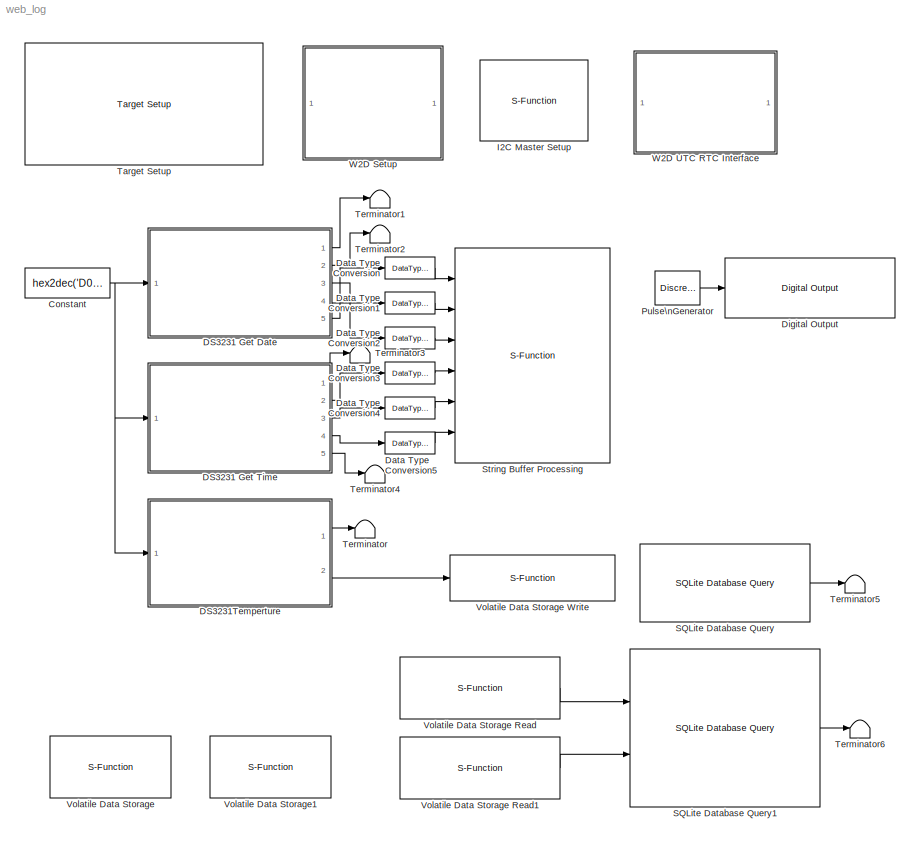
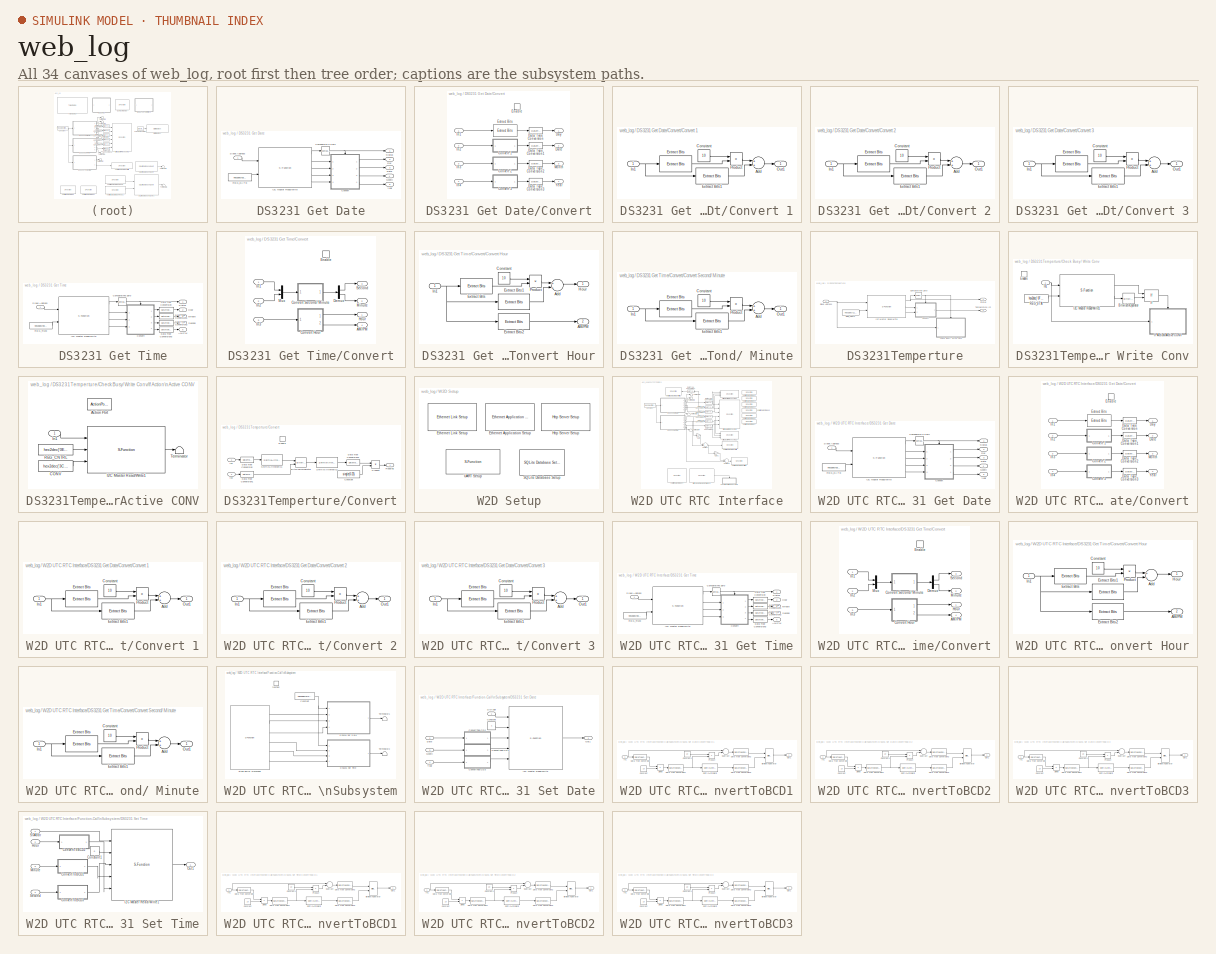
[diagram: thumbnail index - all 34 canvases of the model, root first then tree order]
MODEL web_log
KIND model
CONFIG PreLoadFcn = waijung.modelPreload; % Required for working with Waijung Blockset. Do not remove.
BLOCK [Constant] Constant
  OutDataType = fixdt(1, 16)
  OutDataTypeMode = uint8
  OutDataTypeStr = uint8
  OutScaling = 2^0
  Value = hex2dec('D0')
BLOCK [SubSystem] DS3231 Get Date
  FunctionWithSeparateData = off
  MaskCallbackString = |amg_high_precision_rtc_callback('module');
  MaskDisplay = text(0.5, 0.5, 'Port: I2C1','ver','middle','hor','center');port_label('input', 1,'SlvAddr');port_label('output', 1,'Status');port_label('output', 2,'Day(1-7)');port_label('output', 3,'Date(1-31)');port_label('output', 4,'Month(1-12)');port_label('output', 5,'Year(0-99)');
  MaskEnableString = on,on
  MaskHelp = web(fullfile(waijungdocroot,'DS3231_Get_Date.htm'), '-browser')
  MaskHideContents = off
  MaskIconFrame = on
  MaskIconOpaque = on
  MaskIconRotate = none
  MaskIconUnits = normalized
  MaskInitialization = amg_high_precision_rtc_callback('init');\n
  MaskPortRotate = default
  MaskPromptString = Function|I2C module
  MaskSelfModifiable = on
  MaskStyleString = popup(temp|time|date),popup(1|2|3)
  MaskTabNameString = ,
  MaskToolTipString = on,on
  MaskTunableValueString = on,on
  MaskValueString = date|1
  MaskVarAliasString = ,
  MaskVariables = blockfunction=@1;module=@2;
  MaskVisibilityString = off,on
  MinAlgLoopOccurrences = off
  Opaque = off
  Ports = [1, 5]
  PropExecContextOutsideSubsystem = off
  RTWSystemCode = Auto
  RequestExecContextInheritance = off
  ShowPortLabels = FromPortBlockName
BLOCK [Reference] DS3231 Get Date/Compare\nTo Zero  REF=simulink/Logic and Bit\nOperations/Compare\nTo Zero
  FunctionWithSeparateData = off
  LogicOutDataTypeMode = uint8
  Ports = [1, 1]
  RTWMemSecDataConstants = Inherit from model
  RTWMemSecDataInternal = Inherit from model
  RTWMemSecDataParameters = Inherit from model
  RTWMemSecFuncExecute = Inherit from model
  RTWMemSecFuncInitTerm = Inherit from model
  ShowPortLabels = FromPortIcon
  SourceBlock = simulink/Logic and Bit\nOperations/Compare\nTo Zero
  SourceType = Compare To Zero
  SystemSampleTime = -1
  ZeroCross = off
  relop = ==
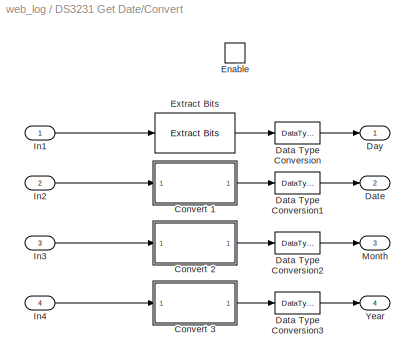
BLOCK [SubSystem] DS3231 Get Date/Convert
  FunctionWithSeparateData = off
  MaskHideContents = off
  MinAlgLoopOccurrences = off
  Opaque = off
  Ports = [4, 4, 1]
  PropExecContextOutsideSubsystem = off
  RTWSystemCode = Auto
  RequestExecContextInheritance = off
  TreatAsAtomicUnit = on
BLOCK [SubSystem] DS3231 Get Date/Convert/Convert 1
  FunctionWithSeparateData = off
  MaskHideContents = off
  MinAlgLoopOccurrences = off
  Opaque = off
  Ports = [1, 1]
  PropExecContextOutsideSubsystem = off
  RTWSystemCode = Auto
  RequestExecContextInheritance = off
BLOCK [Sum] DS3231 Get Date/Convert/Convert 1/Add
  InputSameDT = off
  OutDataType = fixdt(1, 16)
  OutDataTypeMode = Inherit via internal rule
  OutDataTypeStr = Inherit: Inherit via internal rule
  OutScaling = 2^-10
  Ports = [2, 1]
  SaturateOnIntegerOverflow = off
BLOCK [Constant] DS3231 Get Date/Convert/Convert 1/Constant
  OutDataType = fixdt(1, 16)
  OutDataTypeMode = uint8
  OutDataTypeStr = uint8
  OutScaling = 2^0
  Value = 10
BLOCK [Reference] DS3231 Get Date/Convert/Convert 1/Extract Bits  REF=simulink/Logic and Bit\nOperations/Extract Bits
  FunctionWithSeparateData = off
  Ports = [1, 1]
  RTWMemSecDataConstants = Inherit from model
  RTWMemSecDataInternal = Inherit from model
  RTWMemSecDataParameters = Inherit from model
  RTWMemSecFuncExecute = Inherit from model
  RTWMemSecFuncInitTerm = Inherit from model
  ShowPortLabels = FromPortIcon
  SourceBlock = simulink/Logic and Bit\nOperations/Extract Bits
  SourceType = Extract Bits
  SystemSampleTime = -1
  bitIdxRange = [4 5]
  bitsToExtract = Range of bits
  numBits = 8
  outScalingMode = Treat bit field as an integer
BLOCK [Reference] DS3231 Get Date/Convert/Convert 1/Extract Bits1  REF=simulink/Logic and Bit\nOperations/Extract Bits
  FunctionWithSeparateData = off
  Ports = [1, 1]
  RTWMemSecDataConstants = Inherit from model
  RTWMemSecDataInternal = Inherit from model
  RTWMemSecDataParameters = Inherit from model
  RTWMemSecFuncExecute = Inherit from model
  RTWMemSecFuncInitTerm = Inherit from model
  ShowPortLabels = FromPortIcon
  SourceBlock = simulink/Logic and Bit\nOperations/Extract Bits
  SourceType = Extract Bits
  SystemSampleTime = -1
  bitIdxRange = [0 3]
  bitsToExtract = Range of bits
  numBits = 8
  outScalingMode = Treat bit field as an integer
BLOCK [Inport] DS3231 Get Date/Convert/Convert 1/In1
  IconDisplay = Port number
BLOCK [Outport] DS3231 Get Date/Convert/Convert 1/Out1
  IconDisplay = Port number
BLOCK [Product] DS3231 Get Date/Convert/Convert 1/Product
  InputSameDT = off
  OutDataType = fixdt(1, 16)
  OutDataTypeMode = Inherit via internal rule
  OutDataTypeStr = Inherit: Inherit via internal rule
  OutScaling = 2^0
  Ports = [2, 1]
  SaturateOnIntegerOverflow = off
BLOCK [SubSystem] DS3231 Get Date/Convert/Convert 2
  FunctionWithSeparateData = off
  MaskHideContents = off
  MinAlgLoopOccurrences = off
  Opaque = off
  Ports = [1, 1]
  PropExecContextOutsideSubsystem = off
  RTWSystemCode = Auto
  RequestExecContextInheritance = off
BLOCK [Sum] DS3231 Get Date/Convert/Convert 2/Add
  InputSameDT = off
  OutDataType = fixdt(1, 16)
  OutDataTypeMode = Inherit via internal rule
  OutDataTypeStr = Inherit: Inherit via internal rule
  OutScaling = 2^-10
  Ports = [2, 1]
  SaturateOnIntegerOverflow = off
BLOCK [Constant] DS3231 Get Date/Convert/Convert 2/Constant
  OutDataType = fixdt(1, 16)
  OutDataTypeMode = uint8
  OutDataTypeStr = uint8
  OutScaling = 2^0
  Value = 10
BLOCK [Reference] DS3231 Get Date/Convert/Convert 2/Extract Bits  REF=simulink/Logic and Bit\nOperations/Extract Bits
  FunctionWithSeparateData = off
  Ports = [1, 1]
  RTWMemSecDataConstants = Inherit from model
  RTWMemSecDataInternal = Inherit from model
  RTWMemSecDataParameters = Inherit from model
  RTWMemSecFuncExecute = Inherit from model
  RTWMemSecFuncInitTerm = Inherit from model
  ShowPortLabels = FromPortIcon
  SourceBlock = simulink/Logic and Bit\nOperations/Extract Bits
  SourceType = Extract Bits
  SystemSampleTime = -1
  bitIdxRange = [4 4]
  bitsToExtract = Range of bits
  numBits = 8
  outScalingMode = Treat bit field as an integer
BLOCK [Reference] DS3231 Get Date/Convert/Convert 2/Extract Bits1  REF=simulink/Logic and Bit\nOperations/Extract Bits
  FunctionWithSeparateData = off
  Ports = [1, 1]
  RTWMemSecDataConstants = Inherit from model
  RTWMemSecDataInternal = Inherit from model
  RTWMemSecDataParameters = Inherit from model
  RTWMemSecFuncExecute = Inherit from model
  RTWMemSecFuncInitTerm = Inherit from model
  ShowPortLabels = FromPortIcon
  SourceBlock = simulink/Logic and Bit\nOperations/Extract Bits
  SourceType = Extract Bits
  SystemSampleTime = -1
  bitIdxRange = [0 3]
  bitsToExtract = Range of bits
  numBits = 8
  outScalingMode = Treat bit field as an integer
BLOCK [Inport] DS3231 Get Date/Convert/Convert 2/In1
  IconDisplay = Port number
BLOCK [Outport] DS3231 Get Date/Convert/Convert 2/Out1
  IconDisplay = Port number
BLOCK [Product] DS3231 Get Date/Convert/Convert 2/Product
  InputSameDT = off
  OutDataType = fixdt(1, 16)
  OutDataTypeMode = Inherit via internal rule
  OutDataTypeStr = Inherit: Inherit via internal rule
  OutScaling = 2^0
  Ports = [2, 1]
  SaturateOnIntegerOverflow = off
BLOCK [SubSystem] DS3231 Get Date/Convert/Convert 3
  FunctionWithSeparateData = off
  MaskHideContents = off
  MinAlgLoopOccurrences = off
  Opaque = off
  Ports = [1, 1]
  PropExecContextOutsideSubsystem = off
  RTWSystemCode = Auto
  RequestExecContextInheritance = off
BLOCK [Sum] DS3231 Get Date/Convert/Convert 3/Add
  InputSameDT = off
  OutDataType = fixdt(1, 16)
  OutDataTypeMode = Inherit via internal rule
  OutDataTypeStr = Inherit: Inherit via internal rule
  OutScaling = 2^-10
  Ports = [2, 1]
  SaturateOnIntegerOverflow = off
BLOCK [Constant] DS3231 Get Date/Convert/Convert 3/Constant
  OutDataType = fixdt(1, 16)
  OutDataTypeMode = uint8
  OutDataTypeStr = uint8
  OutScaling = 2^0
  Value = 10
BLOCK [Reference] DS3231 Get Date/Convert/Convert 3/Extract Bits  REF=simulink/Logic and Bit\nOperations/Extract Bits
  FunctionWithSeparateData = off
  Ports = [1, 1]
  RTWMemSecDataConstants = Inherit from model
  RTWMemSecDataInternal = Inherit from model
  RTWMemSecDataParameters = Inherit from model
  RTWMemSecFuncExecute = Inherit from model
  RTWMemSecFuncInitTerm = Inherit from model
  ShowPortLabels = FromPortIcon
  SourceBlock = simulink/Logic and Bit\nOperations/Extract Bits
  SourceType = Extract Bits
  SystemSampleTime = -1
  bitIdxRange = [4 7]
  bitsToExtract = Range of bits
  numBits = 8
  outScalingMode = Treat bit field as an integer
BLOCK [Reference] DS3231 Get Date/Convert/Convert 3/Extract Bits1  REF=simulink/Logic and Bit\nOperations/Extract Bits
  FunctionWithSeparateData = off
  Ports = [1, 1]
  RTWMemSecDataConstants = Inherit from model
  RTWMemSecDataInternal = Inherit from model
  RTWMemSecDataParameters = Inherit from model
  RTWMemSecFuncExecute = Inherit from model
  RTWMemSecFuncInitTerm = Inherit from model
  ShowPortLabels = FromPortIcon
  SourceBlock = simulink/Logic and Bit\nOperations/Extract Bits
  SourceType = Extract Bits
  SystemSampleTime = -1
  bitIdxRange = [0 3]
  bitsToExtract = Range of bits
  numBits = 8
  outScalingMode = Treat bit field as an integer
BLOCK [Inport] DS3231 Get Date/Convert/Convert 3/In1
  IconDisplay = Port number
BLOCK [Outport] DS3231 Get Date/Convert/Convert 3/Out1
  IconDisplay = Port number
BLOCK [Product] DS3231 Get Date/Convert/Convert 3/Product
  InputSameDT = off
  OutDataType = fixdt(1, 16)
  OutDataTypeMode = Inherit via internal rule
  OutDataTypeStr = Inherit: Inherit via internal rule
  OutScaling = 2^0
  Ports = [2, 1]
  SaturateOnIntegerOverflow = off
BLOCK [DataTypeConversion] DS3231 Get Date/Convert/Data Type Conversion
  OutDataType = fixdt(1, 16)
  OutDataTypeMode = uint8
  OutDataTypeStr = uint8
  OutScaling = 2^0
  RndMeth = Floor
  SaturateOnIntegerOverflow = off
BLOCK [DataTypeConversion] DS3231 Get Date/Convert/Data Type Conversion1
  OutDataType = fixdt(1, 16)
  OutDataTypeMode = uint8
  OutDataTypeStr = uint8
  OutScaling = 2^0
  RndMeth = Floor
  SaturateOnIntegerOverflow = off
BLOCK [DataTypeConversion] DS3231 Get Date/Convert/Data Type Conversion2
  OutDataType = fixdt(1, 16)
  OutDataTypeMode = uint8
  OutDataTypeStr = uint8
  OutScaling = 2^0
  RndMeth = Floor
  SaturateOnIntegerOverflow = off
BLOCK [DataTypeConversion] DS3231 Get Date/Convert/Data Type Conversion3
  OutDataType = fixdt(1, 16)
  OutDataTypeMode = uint8
  OutDataTypeStr = uint8
  OutScaling = 2^0
  RndMeth = Floor
  SaturateOnIntegerOverflow = off
BLOCK [Outport] DS3231 Get Date/Convert/Date
  IconDisplay = Port number
  OutDataType = fixdt(1, 16)
  OutScaling = 2^0
  Port = 2
BLOCK [Outport] DS3231 Get Date/Convert/Day
  IconDisplay = Port number
  OutDataType = fixdt(1, 16)
  OutScaling = 2^0
BLOCK [EnablePort] DS3231 Get Date/Convert/Enable
  Ports = []
BLOCK [Reference] DS3231 Get Date/Convert/Extract Bits  REF=simulink/Logic and Bit\nOperations/Extract Bits
  FunctionWithSeparateData = off
  Ports = [1, 1]
  RTWMemSecDataConstants = Inherit from model
  RTWMemSecDataInternal = Inherit from model
  RTWMemSecDataParameters = Inherit from model
  RTWMemSecFuncExecute = Inherit from model
  RTWMemSecFuncInitTerm = Inherit from model
  ShowPortLabels = FromPortIcon
  SourceBlock = simulink/Logic and Bit\nOperations/Extract Bits
  SourceType = Extract Bits
  SystemSampleTime = -1
  bitIdxRange = [0 3]
  bitsToExtract = Range of bits
  numBits = 8
  outScalingMode = Treat bit field as an integer
BLOCK [Inport] DS3231 Get Date/Convert/In1
  IconDisplay = Port number
  OutDataType = fixdt(1, 16)
  OutScaling = 2^0
BLOCK [Inport] DS3231 Get Date/Convert/In2
  IconDisplay = Port number
  OutDataType = fixdt(1, 16)
  OutScaling = 2^0
  Port = 2
BLOCK [Inport] DS3231 Get Date/Convert/In3
  IconDisplay = Port number
  OutDataType = fixdt(1, 16)
  OutScaling = 2^0
  Port = 3
BLOCK [Inport] DS3231 Get Date/Convert/In4
  IconDisplay = Port number
  OutDataType = fixdt(1, 16)
  OutScaling = 2^0
  Port = 4
BLOCK [Outport] DS3231 Get Date/Convert/Month
  IconDisplay = Port number
  OutDataType = fixdt(1, 16)
  OutScaling = 2^0
  Port = 3
BLOCK [Outport] DS3231 Get Date/Convert/Year
  IconDisplay = Port number
  OutDataType = fixdt(1, 16)
  OutScaling = 2^0
  Port = 4
BLOCK [Outport] DS3231 Get Date/Date
  IconDisplay = Port number
  Port = 3
BLOCK [Outport] DS3231 Get Date/Day
  IconDisplay = Port number
  Port = 2
BLOCK [S-Function] DS3231 Get Date/I2C Master Read//Write
  EnableBusSupport = off
  FunctionName = stm32f4_i2c
  MaskCallbackString = stm32f4_i2c_callback('configuration');|stm32f4_i2c_callback('module');|||stm32f4_i2c_callback('dutycycle');|||stm32f4_i2c_callback('writecount');|stm32f4_i2c_callback('readcount');|stm32f4_i2c_callback('sdapin');|stm32f4_i2c_callback('sclpin');||||stm32f4_i2c_callback('confstr');|stm32f4_i2c_callback('sampletime');|stm32f4_i2c_callback('sampletimestr');|stm32f4_i2c_callback('blockid');  <repeated x10 — deduplicated; at blocks: I2C Master Read/Write, I2C Master Read/Write1, I2C Master Setup>
  MaskDisplay = text(0.5, 0.5, 'Module: I2C1\\nTransfer: Blocking\\nWrite: 1 bytes\\nRead: 4 bytes\\nTs (sec): 1','ver','middle','hor','center');port_label('input', 1,'SlvAddr');port_label('input', 2,'Wr0 (uint8)');port_label('output', 1,'Status');port_label('output', 2,'Rd0 (uint8)');port_label('output', 3,'Rd1 (uint8)');port_label('output', 4,'Rd2 (uint8)');port_label('output', 5,'Rd3 (uint8)');
  MaskEnableString = off,on,off,off,on,on,on,on,on,on,on,on,off,off,off,on,on,on
  MaskHelp = web(fullfile(waijungdocroot,'stm32f4_i2c_readwrite.htm'), '-browser')
  MaskIconFrame = on
  MaskIconOpaque = on
  MaskIconRotate = none
  MaskIconUnits = normalized
  MaskInitialization = stm32f4_i2c_callback('init');
  MaskPortRotate = default
  MaskPromptString = Configuration|I2C Module|Last module|Transfer mode|Duty cycle in fast mode|Clock speed (kHz)|Timeout (ms)|Bytes write count|Bytes read count|SDA pin|SCL pin|Wait write time (ms), default is 0|Input type array|Output type array|Configuration string|Sample time (sec)|Compiled sample time (sec) in string|BlockID  <repeated x10 — deduplicated; at blocks: I2C Master Read/Write, I2C Master Read/Write1, I2C Master Setup>
  MaskSelfModifiable = on
  MaskStyleString = popup(Setup|Transaction),popup(1|2|3),edit,popup(Blocking|Non-blocking),popup(TLow/THigh = 16/9|TLow/THigh = 2),edit,edit,edit,edit,popup(-|C9),popup(-|A8),edit,edit,edit,edit,edit,edit,edit  <repeated x9 — deduplicated; at blocks: I2C Master Read/Write, I2C Master Read/Write1>
  MaskTabNameString = ,,,,,,,,,,,,,,,,,
  MaskToolTipString = on,on,on,on,on,on,on,on,on,on,on,on,on,on,on,on,on,on
  MaskTunableValueString = off,off,off,off,off,off,off,off,off,off,off,off,off,off,off,off,off,off
  MaskType = stm32f4_i2c
  MaskValueString = Transaction|1|3|Blocking|TLow/THigh = 2|400|25|1|4|C9|A8|0|[2 3 3]|[5 3 3 3 3 3]|[\"C\",\"9\",\"A\",\"8\",\"1\",\"1\",\"6\",\"0\",\"I2C_DutyCycle_2\",\"0\",\"off\"]|-1|1|DS3231GetDateI2CMasterReadWrite
  MaskVarAliasString = ,,,,,,,,,,,,,,,,,
  MaskVariables = configuration=&1;module=&2;lastmodule=&3;transfer=&4;dutycycle=&5;clkspeed=@6;timeout=@7;writecount=@8;readcount=@9;sdapin=&10;sclpin=&11;waitwritetime=@12;inputtypearray=@13;outputtypearray=@14;confstr=&15;sampletime=@16;sampletimestr=&17;blockid=&18;  <repeated x10 — deduplicated; at blocks: I2C Master Read/Write, I2C Master Read/Write1, I2C Master Setup>
  MaskVisibilityString = off,on,off,off,off,off,off,on,on,off,off,on,off,off,off,on,off,off
  Parameters = configuration,module,transfer,clkspeed,timeout,sdapin,sclpin,writecount,readcount,inputtypearray,outputtypearray,confstr,sampletime,sampletimestr,blockid
  Ports = [2, 5]
BLOCK [Outport] DS3231 Get Date/Month
  IconDisplay = Port number
  Port = 4
BLOCK [Constant] DS3231 Get Date/REG_DATE
  OutDataType = fixdt(1, 16)
  OutDataTypeMode = uint8
  OutDataTypeStr = uint8
  OutScaling = 2^0
  Value = hex2dec('03')
BLOCK [Inport] DS3231 Get Date/Slave Address
  IconDisplay = Port number
  OutDataType = fixdt(1, 16)
  OutScaling = 2^0
BLOCK [Outport] DS3231 Get Date/Status
  IconDisplay = Port number
BLOCK [Outport] DS3231 Get Date/Year
  IconDisplay = Port number
  Port = 5
BLOCK [SubSystem] DS3231 Get Time
  FunctionWithSeparateData = off
  MaskCallbackString = |amg_high_precision_rtc_callback('module');
  MaskDisplay = text(0.5, 0.5, 'Port: I2C1','ver','middle','hor','center');port_label('input', 1,'SlvAddr');port_label('output', 1,'Status');port_label('output', 2,'Hour(0-11/23)');port_label('output', 3,'Minute(0-59)');port_label('output', 4,'Second(0-59)');port_label('output', 5,'AM(0)/PM(1)');
  MaskEnableString = on,on
  MaskHelp = web(fullfile(waijungdocroot,'DS3231_Get_Time.htm'), '-browser')
  MaskHideContents = off
  MaskIconFrame = on
  MaskIconOpaque = on
  MaskIconRotate = none
  MaskIconUnits = normalized
  MaskInitialization = amg_high_precision_rtc_callback('init');\n
  MaskPortRotate = default
  MaskPromptString = Function|I2C module
  MaskSelfModifiable = on
  MaskStyleString = popup(temp|time|date),popup(1|2|3)
  MaskTabNameString = ,
  MaskToolTipString = on,on
  MaskTunableValueString = on,on
  MaskValueString = time|1
  MaskVarAliasString = ,
  MaskVariables = blockfunction=@1;module=@2;
  MaskVisibilityString = off,on
  MinAlgLoopOccurrences = off
  Opaque = off
  Ports = [1, 5]
  PropExecContextOutsideSubsystem = off
  RTWSystemCode = Auto
  RequestExecContextInheritance = off
  ShowPortLabels = FromPortBlockName
BLOCK [Outport] DS3231 Get Time/AM//PM
  IconDisplay = Port number
  Port = 5
BLOCK [Reference] DS3231 Get Time/Compare\nTo Zero  REF=simulink/Logic and Bit\nOperations/Compare\nTo Zero
  FunctionWithSeparateData = off
  LogicOutDataTypeMode = uint8
  Ports = [1, 1]
  RTWMemSecDataConstants = Inherit from model
  RTWMemSecDataInternal = Inherit from model
  RTWMemSecDataParameters = Inherit from model
  RTWMemSecFuncExecute = Inherit from model
  RTWMemSecFuncInitTerm = Inherit from model
  ShowPortLabels = FromPortIcon
  SourceBlock = simulink/Logic and Bit\nOperations/Compare\nTo Zero
  SourceType = Compare To Zero
  SystemSampleTime = -1
  ZeroCross = off
  relop = ==
BLOCK [SubSystem] DS3231 Get Time/Convert
  FunctionWithSeparateData = off
  MaskHideContents = off
  MinAlgLoopOccurrences = off
  Opaque = off
  Ports = [3, 4, 1]
  PropExecContextOutsideSubsystem = off
  RTWSystemCode = Auto
  RequestExecContextInheritance = off
  TreatAsAtomicUnit = on
BLOCK [Outport] DS3231 Get Time/Convert/AM//PM
  IconDisplay = Port number
  OutDataType = fixdt(1, 16)
  OutScaling = 2^0
  Port = 4
BLOCK [SubSystem] DS3231 Get Time/Convert/Convert Hour
  FunctionWithSeparateData = off
  MaskHideContents = off
  MinAlgLoopOccurrences = off
  Opaque = off
  Ports = [1, 2]
  PropExecContextOutsideSubsystem = off
  RTWSystemCode = Auto
  RequestExecContextInheritance = off
BLOCK [Outport] DS3231 Get Time/Convert/Convert Hour/AM//PM
  IconDisplay = Port number
  Port = 2
BLOCK [Sum] DS3231 Get Time/Convert/Convert Hour/Add
  InputSameDT = off
  OutDataType = fixdt(1, 16)
  OutDataTypeMode = Inherit via internal rule
  OutDataTypeStr = Inherit: Inherit via internal rule
  OutScaling = 2^-10
  Ports = [2, 1]
  SaturateOnIntegerOverflow = off
BLOCK [Constant] DS3231 Get Time/Convert/Convert Hour/Constant
  OutDataType = fixdt(1, 16)
  OutDataTypeMode = uint8
  OutDataTypeStr = uint8
  OutScaling = 2^0
  Value = 10
BLOCK [Reference] DS3231 Get Time/Convert/Convert Hour/Extract Bits  REF=simulink/Logic and Bit\nOperations/Extract Bits
  FunctionWithSeparateData = off
  Ports = [1, 1]
  RTWMemSecDataConstants = Inherit from model
  RTWMemSecDataInternal = Inherit from model
  RTWMemSecDataParameters = Inherit from model
  RTWMemSecFuncExecute = Inherit from model
  RTWMemSecFuncInitTerm = Inherit from model
  ShowPortLabels = FromPortIcon
  SourceBlock = simulink/Logic and Bit\nOperations/Extract Bits
  SourceType = Extract Bits
  SystemSampleTime = -1
  bitIdxRange = [4 5]
  bitsToExtract = Range of bits
  numBits = 8
  outScalingMode = Treat bit field as an integer
BLOCK [Reference] DS3231 Get Time/Convert/Convert Hour/Extract Bits1  REF=simulink/Logic and Bit\nOperations/Extract Bits
  FunctionWithSeparateData = off
  Ports = [1, 1]
  RTWMemSecDataConstants = Inherit from model
  RTWMemSecDataInternal = Inherit from model
  RTWMemSecDataParameters = Inherit from model
  RTWMemSecFuncExecute = Inherit from model
  RTWMemSecFuncInitTerm = Inherit from model
  ShowPortLabels = FromPortIcon
  SourceBlock = simulink/Logic and Bit\nOperations/Extract Bits
  SourceType = Extract Bits
  SystemSampleTime = -1
  bitIdxRange = [0 3]
  bitsToExtract = Range of bits
  numBits = 8
  outScalingMode = Treat bit field as an integer
BLOCK [Reference] DS3231 Get Time/Convert/Convert Hour/Extract Bits2  REF=simulink/Logic and Bit\nOperations/Extract Bits
  FunctionWithSeparateData = off
  Ports = [1, 1]
  RTWMemSecDataConstants = Inherit from model
  RTWMemSecDataInternal = Inherit from model
  RTWMemSecDataParameters = Inherit from model
  RTWMemSecFuncExecute = Inherit from model
  RTWMemSecFuncInitTerm = Inherit from model
  ShowPortLabels = FromPortIcon
  SourceBlock = simulink/Logic and Bit\nOperations/Extract Bits
  SourceType = Extract Bits
  SystemSampleTime = -1
  bitIdxRange = [5 5]
  bitsToExtract = Range of bits
  numBits = 8
  outScalingMode = Treat bit field as an integer
BLOCK [Outport] DS3231 Get Time/Convert/Convert Hour/Hour
  IconDisplay = Port number
BLOCK [Inport] DS3231 Get Time/Convert/Convert Hour/In1
  IconDisplay = Port number
BLOCK [Product] DS3231 Get Time/Convert/Convert Hour/Product
  InputSameDT = off
  OutDataType = fixdt(1, 16)
  OutDataTypeMode = Inherit via internal rule
  OutDataTypeStr = Inherit: Inherit via internal rule
  OutScaling = 2^0
  Ports = [2, 1]
  SaturateOnIntegerOverflow = off
BLOCK [SubSystem] DS3231 Get Time/Convert/Convert Second// Minute
  FunctionWithSeparateData = off
  MaskHideContents = off
  MinAlgLoopOccurrences = off
  Opaque = off
  Ports = [1, 1]
  PropExecContextOutsideSubsystem = off
  RTWSystemCode = Auto
  RequestExecContextInheritance = off
BLOCK [Sum] DS3231 Get Time/Convert/Convert Second// Minute/Add
  InputSameDT = off
  OutDataType = fixdt(1, 16)
  OutDataTypeMode = Inherit via internal rule
  OutDataTypeStr = Inherit: Inherit via internal rule
  OutScaling = 2^-10
  Ports = [2, 1]
  SaturateOnIntegerOverflow = off
BLOCK [Constant] DS3231 Get Time/Convert/Convert Second// Minute/Constant
  OutDataType = fixdt(1, 16)
  OutDataTypeMode = uint8
  OutDataTypeStr = uint8
  OutScaling = 2^0
  Value = 10
BLOCK [Reference] DS3231 Get Time/Convert/Convert Second// Minute/Extract Bits  REF=simulink/Logic and Bit\nOperations/Extract Bits
  FunctionWithSeparateData = off
  Ports = [1, 1]
  RTWMemSecDataConstants = Inherit from model
  RTWMemSecDataInternal = Inherit from model
  RTWMemSecDataParameters = Inherit from model
  RTWMemSecFuncExecute = Inherit from model
  RTWMemSecFuncInitTerm = Inherit from model
  ShowPortLabels = FromPortIcon
  SourceBlock = simulink/Logic and Bit\nOperations/Extract Bits
  SourceType = Extract Bits
  SystemSampleTime = -1
  bitIdxRange = [4 6]
  bitsToExtract = Range of bits
  numBits = 8
  outScalingMode = Treat bit field as an integer
BLOCK [Reference] DS3231 Get Time/Convert/Convert Second// Minute/Extract Bits1  REF=simulink/Logic and Bit\nOperations/Extract Bits
  FunctionWithSeparateData = off
  Ports = [1, 1]
  RTWMemSecDataConstants = Inherit from model
  RTWMemSecDataInternal = Inherit from model
  RTWMemSecDataParameters = Inherit from model
  RTWMemSecFuncExecute = Inherit from model
  RTWMemSecFuncInitTerm = Inherit from model
  ShowPortLabels = FromPortIcon
  SourceBlock = simulink/Logic and Bit\nOperations/Extract Bits
  SourceType = Extract Bits
  SystemSampleTime = -1
  bitIdxRange = [0 3]
  bitsToExtract = Range of bits
  numBits = 8
  outScalingMode = Treat bit field as an integer
BLOCK [Inport] DS3231 Get Time/Convert/Convert Second// Minute/In1
  IconDisplay = Port number
BLOCK [Outport] DS3231 Get Time/Convert/Convert Second// Minute/Out1
  IconDisplay = Port number
BLOCK [Product] DS3231 Get Time/Convert/Convert Second// Minute/Product
  InputSameDT = off
  OutDataType = fixdt(1, 16)
  OutDataTypeMode = Inherit via internal rule
  OutDataTypeStr = Inherit: Inherit via internal rule
  OutScaling = 2^0
  Ports = [2, 1]
  SaturateOnIntegerOverflow = off
BLOCK [Demux] DS3231 Get Time/Convert/Demux
  DisplayOption = bar
  Outputs = 2
  Ports = [1, 2]
BLOCK [EnablePort] DS3231 Get Time/Convert/Enable
  Ports = []
BLOCK [Outport] DS3231 Get Time/Convert/Hour
  IconDisplay = Port number
  OutDataType = fixdt(1, 16)
  OutScaling = 2^0
BLOCK [Inport] DS3231 Get Time/Convert/In1
  IconDisplay = Port number
  OutDataType = fixdt(1, 16)
  OutScaling = 2^0
BLOCK [Inport] DS3231 Get Time/Convert/In2
  IconDisplay = Port number
  OutDataType = fixdt(1, 16)
  OutScaling = 2^0
  Port = 2
BLOCK [Inport] DS3231 Get Time/Convert/In3
  IconDisplay = Port number
  OutDataType = fixdt(1, 16)
  OutScaling = 2^0
  Port = 3
BLOCK [Outport] DS3231 Get Time/Convert/Minute
  IconDisplay = Port number
  OutDataType = fixdt(1, 16)
  OutScaling = 2^0
  Port = 2
BLOCK [Mux] DS3231 Get Time/Convert/Mux
  DisplayOption = bar
  Inputs = 2
  Ports = [2, 1]
BLOCK [Outport] DS3231 Get Time/Convert/Second
  IconDisplay = Port number
  OutDataType = fixdt(1, 16)
  OutScaling = 2^0
  Port = 3
BLOCK [DataTypeConversion] DS3231 Get Time/Data Type Conversion
  OutDataType = fixdt(1, 16)
  OutDataTypeMode = uint8
  OutDataTypeStr = uint8
  OutScaling = 2^0
  RndMeth = Floor
  SaturateOnIntegerOverflow = off
BLOCK [DataTypeConversion] DS3231 Get Time/Data Type Conversion1
  OutDataType = fixdt(1, 16)
  OutDataTypeMode = uint8
  OutDataTypeStr = uint8
  OutScaling = 2^0
  RndMeth = Floor
  SaturateOnIntegerOverflow = off
BLOCK [DataTypeConversion] DS3231 Get Time/Data Type Conversion2
  OutDataType = fixdt(1, 16)
  OutDataTypeMode = uint8
  OutDataTypeStr = uint8
  OutScaling = 2^0
  RndMeth = Floor
  SaturateOnIntegerOverflow = off
BLOCK [DataTypeConversion] DS3231 Get Time/Data Type Conversion3
  OutDataType = fixdt(1, 16)
  OutDataTypeMode = uint8
  OutDataTypeStr = uint8
  OutScaling = 2^0
  RndMeth = Floor
  SaturateOnIntegerOverflow = off
BLOCK [Outport] DS3231 Get Time/Hour
  IconDisplay = Port number
  Port = 2
BLOCK [S-Function] DS3231 Get Time/I2C Master Read//Write
  EnableBusSupport = off
  FunctionName = stm32f4_i2c
  MaskDisplay = text(0.5, 0.5, 'Module: I2C1\\nTransfer: Blocking\\nWrite: 1 bytes\\nRead: 3 bytes\\nTs (sec): 1','ver','middle','hor','center');port_label('input', 1,'SlvAddr');port_label('input', 2,'Wr0 (uint8)');port_label('output', 1,'Status');port_label('output', 2,'Rd0 (uint8)');port_label('output', 3,'Rd1 (uint8)');port_label('output', 4,'Rd2 (uint8)');
  MaskEnableString = off,on,off,off,on,on,on,on,on,on,on,on,off,off,off,on,on,on
  MaskHelp = web(fullfile(waijungdocroot,'stm32f4_i2c_readwrite.htm'), '-browser')
  MaskIconFrame = on
  MaskIconOpaque = on
  MaskIconRotate = none
  MaskIconUnits = normalized
  MaskInitialization = stm32f4_i2c_callback('init');
  MaskPortRotate = default
  MaskSelfModifiable = on
  MaskTabNameString = ,,,,,,,,,,,,,,,,,
  MaskToolTipString = on,on,on,on,on,on,on,on,on,on,on,on,on,on,on,on,on,on
  MaskTunableValueString = off,off,off,off,off,off,off,off,off,off,off,off,off,off,off,off,off,off
  MaskType = stm32f4_i2c
  MaskValueString = Transaction|1|3|Blocking|TLow/THigh = 2|400|25|1|3|C9|A8|0|[2 3 3]|[4 3 3 3 3]|[\"C\",\"9\",\"A\",\"8\",\"1\",\"1\",\"6\",\"0\",\"I2C_DutyCycle_2\",\"0\",\"off\"]|-1|1|DS3231GetTimeI2CMasterReadWrite
  MaskVarAliasString = ,,,,,,,,,,,,,,,,,
  MaskVisibilityString = off,on,off,off,off,off,off,on,on,off,off,on,off,off,off,on,off,off
  Parameters = configuration,module,transfer,clkspeed,timeout,sdapin,sclpin,writecount,readcount,inputtypearray,outputtypearray,confstr,sampletime,sampletimestr,blockid
  Ports = [2, 4]
BLOCK [Outport] DS3231 Get Time/Minute
  IconDisplay = Port number
  Port = 3
BLOCK [Constant] DS3231 Get Time/REG_TIME
  OutDataType = fixdt(1, 16)
  OutDataTypeMode = uint8
  OutDataTypeStr = uint8
  OutScaling = 2^0
  Value = hex2dec('00')
BLOCK [Outport] DS3231 Get Time/Second
  IconDisplay = Port number
  Port = 4
BLOCK [Inport] DS3231 Get Time/Slave Address
  IconDisplay = Port number
  OutDataType = fixdt(1, 16)
  OutScaling = 2^0
BLOCK [Outport] DS3231 Get Time/Status
  IconDisplay = Port number
BLOCK [SubSystem] DS3231Temperture
  FunctionWithSeparateData = off
  MaskCallbackString = |amg_high_precision_rtc_callback('module');
  MaskDescription = The block implement temperature reading from DS3231 (Extremely Accurate RTC).\nIts override the CONV bit, to force the temperature update, so the recommend sample time for this block is more than 0.5 seconds.\nTo get reading value from DS3231 device, this block generate 3 transaction of I2C as below:\n1. Read 2 bytes data from register 0x11 and 0x12 (Sequential read).\n2. Read 1 byte data from reg...<+119ch>
  MaskDisplay = text(0.5, 0.5, 'Port: I2C1','ver','middle','hor','center');port_label('input', 1,'SlvAddr');port_label('output', 1,'Status');port_label('output', 2,'Temp (C)');
  MaskEnableString = off,on
  MaskHelp = web(fullfile(waijungdocroot,'DS3231Temperture.htm'), '-browser')
  MaskHideContents = off
  MaskIconFrame = on
  MaskIconOpaque = on
  MaskIconRotate = none
  MaskIconUnits = normalized
  MaskInitialization = amg_high_precision_rtc_callback('init');\n
  MaskPortRotate = default
  MaskPromptString = Function|I2C module
  MaskSelfModifiable = on
  MaskStyleString = popup(temp|time|date),popup(1|2|3)
  MaskTabNameString = ,
  MaskToolTipString = on,on
  MaskTunableValueString = on,on
  MaskValueString = temp|1
  MaskVarAliasString = ,
  MaskVariables = blockfunction=@1;module=@2;
  MaskVisibilityString = off,on
  MinAlgLoopOccurrences = off
  Opaque = off
  Ports = [1, 2]
  PropExecContextOutsideSubsystem = off
  RTWSystemCode = Auto
  RequestExecContextInheritance = off
  ShowPortLabels = FromPortBlockName
BLOCK [SubSystem] DS3231Temperture/Check Busy// Write Conv
  FunctionWithSeparateData = off
  MaskHideContents = off
  MinAlgLoopOccurrences = off
  Opaque = off
  Ports = [1, 0, 1]
  PropExecContextOutsideSubsystem = off
  RTWSystemCode = Auto
  RequestExecContextInheritance = off
BLOCK [Reference] DS3231Temperture/Check Busy// Write Conv/Bitwise\nOperator  REF=simulink/Logic and Bit\nOperations/Bitwise\nOperator
  BitMask = hex2dec('04')
  BitMaskRealWorld = Stored Integer
  NumInputPorts = 1
  Ports = [1, 1]
  SourceBlock = simulink/Logic and Bit\nOperations/Bitwise\nOperator
  SourceType = Bitwise Operator
  UseBitMask = on
  logicop = AND
BLOCK [EnablePort] DS3231Temperture/Check Busy// Write Conv/Enable
  Ports = []
BLOCK [S-Function] DS3231Temperture/Check Busy// Write Conv/I2C Master Read//Write1
  EnableBusSupport = off
  FunctionName = stm32f4_i2c
  MaskDisplay = text(0.5, 0.5, 'Module: I2C1\\nTransfer: Blocking\\nWrite: 1 bytes\\nRead: 1 bytes\\nTs (sec): 1','ver','middle','hor','center');port_label('input', 1,'SlvAddr');port_label('input', 2,'Wr0 (uint8)');port_label('output', 1,'Status');port_label('output', 2,'Rd0 (uint8)');
  MaskEnableString = off,on,off,off,on,on,on,on,on,on,on,on,off,off,off,on,on,on
  MaskHelp = web(fullfile(waijungdocroot,'stm32f4_i2c_readwrite.htm'), '-browser')
  MaskIconFrame = on
  MaskIconOpaque = on
  MaskIconRotate = none
  MaskIconUnits = normalized
  MaskInitialization = stm32f4_i2c_callback('init');
  MaskPortRotate = default
  MaskSelfModifiable = on
  MaskTabNameString = ,,,,,,,,,,,,,,,,,
  MaskToolTipString = on,on,on,on,on,on,on,on,on,on,on,on,on,on,on,on,on,on
  MaskTunableValueString = off,off,off,off,off,off,off,off,off,off,off,off,off,off,off,off,off,off
  MaskType = stm32f4_i2c
  MaskValueString = Transaction|1|3|Blocking|TLow/THigh = 2|400|25|1|1|C9|A8|0|[2 3 3]|[2 3 3]|[\"C\",\"9\",\"A\",\"8\",\"1\",\"1\",\"6\",\"0\",\"I2C_DutyCycle_2\",\"0\",\"off\"]|-1|1|DS3231TempertureCheckBusyWriteConvI2CMasterReadWrite1
  MaskVarAliasString = ,,,,,,,,,,,,,,,,,
  MaskVisibilityString = off,on,off,off,off,off,off,on,on,off,off,on,off,off,off,on,off,off
  Parameters = configuration,module,transfer,clkspeed,timeout,sdapin,sclpin,writecount,readcount,inputtypearray,outputtypearray,confstr,sampletime,sampletimestr,blockid
  Ports = [2, 2]
BLOCK [If] DS3231Temperture/Check Busy// Write Conv/If
  IfExpression = (u1 == 0) & (u2 == 0)
  NumInputs = 2
  Ports = [2, 1]
  ShowElse = off
BLOCK [SubSystem] DS3231Temperture/Check Busy// Write Conv/If Action\nActive CONV
  FunctionWithSeparateData = off
  MaskHideContents = off
  MinAlgLoopOccurrences = off
  Opaque = off
  Ports = [1, 0, 0, 0, 0, 0, 0, 1]
  PropExecContextOutsideSubsystem = off
  RTWSystemCode = Auto
  RequestExecContextInheritance = off
  TreatAsAtomicUnit = on
BLOCK [ActionPort] DS3231Temperture/Check Busy// Write Conv/If Action\nActive CONV/Action Port
  ActionType = then
BLOCK [Constant] DS3231Temperture/Check Busy// Write Conv/If Action\nActive CONV/CONV
  OutDataType = fixdt(1, 16)
  OutDataTypeMode = uint8
  OutDataTypeStr = uint8
  OutScaling = 2^0
  Value = hex2dec('3C')
BLOCK [S-Function] DS3231Temperture/Check Busy// Write Conv/If Action\nActive CONV/I2C Master Read//Write1
  EnableBusSupport = off
  FunctionName = stm32f4_i2c
  MaskDisplay = text(0.5, 0.5, 'Module: I2C1\\nTransfer: Blocking\\nWrite: 2 bytes\\nRead: 0 bytes\\nTs (sec): 1','ver','middle','hor','center');port_label('input', 1,'SlvAddr');port_label('input', 2,'Wr0 (uint8)');port_label('input', 3,'Wr1 (uint8)');port_label('output', 1,'Status');
  MaskEnableString = off,on,off,off,on,on,on,on,on,on,on,on,off,off,off,on,on,on
  MaskHelp = web(fullfile(waijungdocroot,'stm32f4_i2c_readwrite.htm'), '-browser')
  MaskIconFrame = on
  MaskIconOpaque = on
  MaskIconRotate = none
  MaskIconUnits = normalized
  MaskInitialization = stm32f4_i2c_callback('init');
  MaskPortRotate = default
  MaskSelfModifiable = on
  MaskTabNameString = ,,,,,,,,,,,,,,,,,
  MaskToolTipString = on,on,on,on,on,on,on,on,on,on,on,on,on,on,on,on,on,on
  MaskTunableValueString = off,off,off,off,off,off,off,off,off,off,off,off,off,off,off,off,off,off
  MaskType = stm32f4_i2c
  MaskValueString = Transaction|1|3|Blocking|TLow/THigh = 2|400|25|2|0|C9|A8|0|[3 3 3 3]|[1 3]|[\"C\",\"9\",\"A\",\"8\",\"1\",\"1\",\"6\",\"0\",\"I2C_DutyCycle_2\",\"0\",\"off\"]|-1|1|DS3231TempertureCheckBusyWriteConvIfActionActiveCONVI2CMasterReadWrite1
  MaskVarAliasString = ,,,,,,,,,,,,,,,,,
  MaskVisibilityString = off,on,off,off,off,off,off,on,on,off,off,on,off,off,off,on,off,off
  Parameters = configuration,module,transfer,clkspeed,timeout,sdapin,sclpin,writecount,readcount,inputtypearray,outputtypearray,confstr,sampletime,sampletimestr,blockid
  Ports = [3, 1]
BLOCK [Inport] DS3231Temperture/Check Busy// Write Conv/If Action\nActive CONV/In1
  IconDisplay = Port number
  OutDataType = fixdt(1, 16)
  OutScaling = 2^0
BLOCK [Constant] DS3231Temperture/Check Busy// Write Conv/If Action\nActive CONV/REG_CNTRL
  OutDataType = fixdt(1, 16)
  OutDataTypeMode = uint8
  OutDataTypeStr = uint8
  OutScaling = 2^0
  Value = hex2dec('0E')
BLOCK [Terminator] DS3231Temperture/Check Busy// Write Conv/If Action\nActive CONV/Terminator
BLOCK [Inport] DS3231Temperture/Check Busy// Write Conv/In1
  IconDisplay = Port number
BLOCK [Constant] DS3231Temperture/Check Busy// Write Conv/REG_STA
  OutDataType = fixdt(1, 16)
  OutDataTypeMode = uint8
  OutDataTypeStr = uint8
  OutScaling = 2^0
  Value = hex2dec('0F')
BLOCK [Reference] DS3231Temperture/Compare\nTo Zero  REF=simulink/Logic and Bit\nOperations/Compare\nTo Zero
  FunctionWithSeparateData = off
  LogicOutDataTypeMode = uint8
  Ports = [1, 1]
  RTWMemSecDataConstants = Inherit from model
  RTWMemSecDataInternal = Inherit from model
  RTWMemSecDataParameters = Inherit from model
  RTWMemSecFuncExecute = Inherit from model
  RTWMemSecFuncInitTerm = Inherit from model
  ShowPortLabels = FromPortIcon
  SourceBlock = simulink/Logic and Bit\nOperations/Compare\nTo Zero
  SourceType = Compare To Zero
  SystemSampleTime = -1
  ZeroCross = off
  relop = ==
BLOCK [SubSystem] DS3231Temperture/Convert
  FunctionWithSeparateData = off
  MaskHideContents = off
  MinAlgLoopOccurrences = off
  Opaque = off
  Ports = [2, 1, 1]
  PropExecContextOutsideSubsystem = off
  RTWSystemCode = Auto
  RequestExecContextInheritance = off
  TreatAsAtomicUnit = on
BLOCK [Reference] DS3231Temperture/Convert/Bitwise\nOperator  REF=simulink/Logic and Bit\nOperations/Bitwise\nOperator
  BitMask = bin2dec('11011001')
  BitMaskRealWorld = Stored Integer
  NumInputPorts = 2
  Ports = [2, 1]
  SourceBlock = simulink/Logic and Bit\nOperations/Bitwise\nOperator
  SourceType = Bitwise Operator
  UseBitMask = off
  logicop = OR
BLOCK [Constant] DS3231Temperture/Convert/Constant
  OutDataType = fixdt(1, 16)
  OutScaling = 2^0
  Value = single(0.25)
BLOCK [DataTypeConversion] DS3231Temperture/Convert/Data Type Conversion
  OutDataType = fixdt(1, 16)
  OutDataTypeMode = uint16
  OutDataTypeStr = uint16
  OutScaling = 2^0
  RndMeth = Floor
  SaturateOnIntegerOverflow = off
BLOCK [DataTypeConversion] DS3231Temperture/Convert/Data Type Conversion1
  OutDataType = fixdt(1, 16)
  OutDataTypeMode = uint16
  OutDataTypeStr = uint16
  OutScaling = 2^0
  RndMeth = Floor
  SaturateOnIntegerOverflow = off
BLOCK [DataTypeConversion] DS3231Temperture/Convert/Data Type Conversion2
  OutDataType = fixdt(1, 16)
  OutDataTypeMode = int16
  OutDataTypeStr = int16
  OutScaling = 2^0
  RndMeth = Floor
  SaturateOnIntegerOverflow = off
BLOCK [EnablePort] DS3231Temperture/Convert/Enable
  Ports = []
BLOCK [Inport] DS3231Temperture/Convert/In1
  IconDisplay = Port number
  OutDataType = fixdt(1, 16)
  OutScaling = 2^0
BLOCK [Inport] DS3231Temperture/Convert/In2
  IconDisplay = Port number
  OutDataType = fixdt(1, 16)
  OutScaling = 2^0
  Port = 2
BLOCK [Product] DS3231Temperture/Convert/Product
  InputSameDT = off
  OutDataType = fixdt(1, 16)
  OutDataTypeMode = single
  OutDataTypeStr = single
  OutScaling = 2^0
  Ports = [2, 1]
  SaturateOnIntegerOverflow = off
BLOCK [Outport] DS3231Temperture/Convert/Reading
  IconDisplay = Port number
  OutDataType = fixdt(1, 16)
  OutScaling = 2^0
BLOCK [Reference] DS3231Temperture/Convert/Shift\nArithmetic1  REF=simulink/Logic and Bit\nOperations/Shift\nArithmetic
  FunctionWithSeparateData = off
  Ports = [1, 1]
  RTWMemSecDataConstants = Inherit from model
  RTWMemSecDataInternal = Inherit from model
  RTWMemSecDataParameters = Inherit from model
  RTWMemSecFuncExecute = Inherit from model
  RTWMemSecFuncInitTerm = Inherit from model
  ShowPortLabels = FromPortIcon
  SourceBlock = simulink/Logic and Bit\nOperations/Shift\nArithmetic
  SourceType = Shift Arithmetic
  SystemSampleTime = -1
  nBinPtShiftRight = 0
  nBitShiftRight = -8
BLOCK [Reference] DS3231Temperture/Convert/Shift\nArithmetic2  REF=simulink/Logic and Bit\nOperations/Shift\nArithmetic
  FunctionWithSeparateData = off
  Ports = [1, 1]
  RTWMemSecDataConstants = Inherit from model
  RTWMemSecDataInternal = Inherit from model
  RTWMemSecDataParameters = Inherit from model
  RTWMemSecFuncExecute = Inherit from model
  RTWMemSecFuncInitTerm = Inherit from model
  ShowPortLabels = FromPortIcon
  SourceBlock = simulink/Logic and Bit\nOperations/Shift\nArithmetic
  SourceType = Shift Arithmetic
  SystemSampleTime = -1
  nBinPtShiftRight = 0
  nBitShiftRight = 6
BLOCK [S-Function] DS3231Temperture/I2C Master Read//Write
  EnableBusSupport = off
  FunctionName = stm32f4_i2c
  MaskDisplay = text(0.5, 0.5, 'Module: I2C1\\nTransfer: Blocking\\nWrite: 1 bytes\\nRead: 2 bytes\\nTs (sec): 1','ver','middle','hor','center');port_label('input', 1,'SlvAddr');port_label('input', 2,'Wr0 (uint8)');port_label('output', 1,'Status');port_label('output', 2,'Rd0 (uint8)');port_label('output', 3,'Rd1 (uint8)');
  MaskEnableString = off,on,off,off,on,on,on,on,on,on,on,on,off,off,off,on,on,on
  MaskHelp = web(fullfile(waijungdocroot,'stm32f4_i2c_readwrite.htm'), '-browser')
  MaskIconFrame = on
  MaskIconOpaque = on
  MaskIconRotate = none
  MaskIconUnits = normalized
  MaskInitialization = stm32f4_i2c_callback('init');
  MaskPortRotate = default
  MaskSelfModifiable = on
  MaskTabNameString = ,,,,,,,,,,,,,,,,,
  MaskToolTipString = on,on,on,on,on,on,on,on,on,on,on,on,on,on,on,on,on,on
  MaskTunableValueString = off,off,off,off,off,off,off,off,off,off,off,off,off,off,off,off,off,off
  MaskType = stm32f4_i2c
  MaskValueString = Transaction|1|3|Blocking|TLow/THigh = 2|400|25|1|2|C9|A8|0|[2 3 3]|[3 3 3 3]|[\"C\",\"9\",\"A\",\"8\",\"1\",\"1\",\"6\",\"0\",\"I2C_DutyCycle_2\",\"0\",\"off\"]|-1|1|DS3231TempertureI2CMasterReadWrite
  MaskVarAliasString = ,,,,,,,,,,,,,,,,,
  MaskVisibilityString = off,on,off,off,off,off,off,on,on,off,off,on,off,off,off,on,off,off
  Parameters = configuration,module,transfer,clkspeed,timeout,sdapin,sclpin,writecount,readcount,inputtypearray,outputtypearray,confstr,sampletime,sampletimestr,blockid
  Ports = [2, 3]
BLOCK [Constant] DS3231Temperture/REG_TEMP
  OutDataType = fixdt(1, 16)
  OutDataTypeMode = uint8
  OutDataTypeStr = uint8
  OutScaling = 2^0
  Value = hex2dec('11')
BLOCK [Inport] DS3231Temperture/Slave Address
  IconDisplay = Port number
  OutDataType = fixdt(1, 16)
  OutScaling = 2^0
BLOCK [Outport] DS3231Temperture/Status
  IconDisplay = Port number
BLOCK [Outport] DS3231Temperture/Temperature (C)
  IconDisplay = Port number
  Port = 2
BLOCK [DataTypeConversion] Data Type Conversion
  OutDataType = fixdt(1, 16)
  OutScaling = 2^0
  RndMeth = Floor
  SaturateOnIntegerOverflow = off
BLOCK [DataTypeConversion] Data Type Conversion1
  OutDataType = fixdt(1, 16)
  OutScaling = 2^0
  RndMeth = Floor
  SaturateOnIntegerOverflow = off
BLOCK [DataTypeConversion] Data Type Conversion2
  OutDataType = fixdt(1, 16)
  OutScaling = 2^0
  RndMeth = Floor
  SaturateOnIntegerOverflow = off
BLOCK [DataTypeConversion] Data Type Conversion3
  OutDataType = fixdt(1, 16)
  OutScaling = 2^0
  RndMeth = Floor
  SaturateOnIntegerOverflow = off
BLOCK [DataTypeConversion] Data Type Conversion4
  OutDataType = fixdt(1, 16)
  OutScaling = 2^0
  RndMeth = Floor
  SaturateOnIntegerOverflow = off
BLOCK [DataTypeConversion] Data Type Conversion5
  OutDataType = fixdt(1, 16)
  OutScaling = 2^0
  RndMeth = Floor
  SaturateOnIntegerOverflow = off
BLOCK [Reference] Digital Output  REF=stm32f4_io_lib/Digital Output
  Ports = [1]
  SourceBlock = stm32f4_io_lib/Digital Output
  SourceType = stm32f4_digital_output
  bitbandingstr = \n#define DigitalOutput_D12 Peripheral_BB(GPIOD->ODR, 12)  /* Output pin */
  blockid = DigitalOutput
  cinputportlabel = In1, In2
  coutputportlabel = 0
  enablecustomportlabel = off
  globalinit = off
  pinstr = GPIO_Pin_12
  port = D
  porttype = Push Pull
  porttypestr = PP
  sampletime = -1
  sampletimestr = 0.25
  speed = 100
  use_bitband = on
  use_pin0 = off
  use_pin1 = off
  use_pin10 = off
  use_pin11 = off
  use_pin12 = on
  use_pin13 = off
  use_pin14 = off
  use_pin15 = off
  use_pin2 = off
  use_pin3 = off
  use_pin4 = off
  use_pin5 = off
  use_pin6 = off
  use_pin7 = off
  use_pin8 = off
  use_pin9 = off
  usedpinarray = [0  0  0  0  0  0  0  0  0  0  0  0  1  0  0  0]
BLOCK [S-Function] I2C Master Setup
  EnableBusSupport = off
  FunctionName = stm32f4_i2c
  MaskDisplay = text(0.5, 0.5, 'Module: I2C1\\nClock: 400kHz\\nSDA/SCL Pin: B7/B6','ver','middle','hor','center');
  MaskEnableString = off,on,off,off,on,on,on,on,on,on,on,on,off,off,off,on,on,on
  MaskHelp = web(fullfile(waijungdocroot,'stm32f4_i2c_setup.htm'), '-browser')
  MaskIconFrame = on
  MaskIconOpaque = on
  MaskIconRotate = none
  MaskIconUnits = normalized
  MaskInitialization = stm32f4_i2c_callback('init');
  MaskPortRotate = default
  MaskSelfModifiable = on
  MaskStyleString = popup(Setup|Transaction),popup(1|2|3),edit,popup(Blocking|Non-blocking),popup(TLow/THigh = 16/9|TLow/THigh = 2),edit,edit,edit,edit,popup(Not used|B7|B9),popup(Not used|B6|B8),edit,edit,edit,edit,edit,edit,edit
  MaskTabNameString = ,,,,,,,,,,,,,,,,,
  MaskToolTipString = on,on,on,on,on,on,on,on,on,on,on,on,on,on,on,on,on,on
  MaskTunableValueString = off,off,off,off,off,off,off,off,off,off,off,off,off,off,off,off,off,off
  MaskType = stm32f4_i2c
  MaskValueString = Setup|1|1|Blocking|TLow/THigh = 2|400|25|0|0|B7|B6|0|[0]|[0]|[\"B\",\"7\",\"B\",\"6\",\"1\",\"1\",\"6\",\"0\",\"I2C_DutyCycle_2\",\"0\",\"off\"]|-1|0.001|I2CMasterSetup
  MaskVarAliasString = ,,,,,,,,,,,,,,,,,
  MaskVisibilityString = off,on,off,on,on,on,on,off,off,on,on,off,off,off,off,off,off,off
  Parameters = configuration,module,transfer,clkspeed,timeout,sdapin,sclpin,writecount,readcount,inputtypearray,outputtypearray,confstr,sampletime,sampletimestr,blockid
  Ports = []
BLOCK [DiscretePulseGenerator] Pulse\nGenerator
  Amplitude = 1
  Period = 0.5
  PhaseDelay = 0
  Ports = [0, 1]
  PulseType = Time based
  PulseWidth = 50
  SampleTime = 1
BLOCK [Reference] SQLite Database Query  REF=amg_sqlite_dataserver/SQLite Database Query
  Ports = [0, 1]
  Priority = 1
  SourceBlock = amg_sqlite_dataserver/SQLite Database Query
  SourceType = waijung_sqlite
  blockid = SQLiteDatabaseQuery
  columncount = 2
  columnnamesarray = [\"time\",\"temp\"]
  columns = 'time text,temp real'
  columntypesarray = [\"string\",\"single\"]
  condition = 'where rowid==1'
  enablestatus = on
  filename = 'database.db'
  filenameoption = Specific
  inputtypearray = []
  outputtypearray = [7]
  preview = CREATE TABLE IF NOT EXISTS %s(time text,temp real);
  sampletime = inf
  sampletimestr = 0.001
  statement = CREATE
  tablename = 'logging'
  tablenameoption = Specific
  transfer = Non-Blocking
BLOCK [Reference] SQLite Database Query1  REF=amg_sqlite_dataserver/SQLite Database Query
  Ports = [2, 1]
  Priority = 5
  SourceBlock = amg_sqlite_dataserver/SQLite Database Query
  SourceType = waijung_sqlite
  blockid = SQLiteDatabaseQuery1
  columncount = 2
  columnnamesarray = [\"time\",\"temp\"]
  columns = 'time text,temp real'
  columntypesarray = [\"string\",\"single\"]
  condition = 'where rowid==1'
  enablestatus = on
  filename = 'database.db'
  filenameoption = Specific
  inputtypearray = [7 1]
  outputtypearray = [7]
  preview = INSERT INTO %s (time,temp)VALUES('%s',%f);
  sampletime = 30
  sampletimestr = 30
  statement = INSERT
  tablename = 'logging'
  tablenameoption = Specific
  transfer = Non-Blocking
BLOCK [S-Function] String Buffer Processing
  EnableBusSupport = off
  FunctionName = waijung_stringbuffer_processing
  MaskCallbackString = waijung_stringbuffer_processing_callback('configuration');||waijung_stringbuffer_processing_callback('sformat');|waijung_stringbuffer_processing_callback('enableoutput');||||||waijung_stringbuffer_processing_callback('sampletime');|waijung_stringbuffer_processing_callback('sampletimestr');|waijung_stringbuffer_processing_callback('blockid');  <repeated x5 — deduplicated; at blocks: String Buffer Processing, String Buffer Processing1, String Buffer Processing2>
  MaskDescription = This block implements string processing, sprintf/ sscanf command.\nSupported format:\n%u, %i, %o, %x: uint32\n%d: int32\n%e, %g, %f: single\n%c: int8\n\nStatus:\n 0: Failed.\n Non-zero: Success.  <repeated x5 — deduplicated; at blocks: String Buffer Processing, String Buffer Processing1, String Buffer Processing2>
  MaskDisplay = text(0.5, 0.5, '[ sprintf ]\\nBuffer: timestring\\nTs (sec): 1','ver','middle','hor','center');port_label('input', 1,'%d');port_label('input', 2,'%d');port_label('input', 3,'%d');port_label('input', 4,'%d');port_label('input', 5,'%d');port_label('input', 6,'%d');
  MaskEnableString = on,on,on,on,off,on,on,on,on,on,off,off
  MaskHelp = web(fullfile(waijungdocroot,'String_Buffer_Processing.htm'))
  MaskIconFrame = on
  MaskIconOpaque = on
  MaskIconRotate = none
  MaskIconUnits = normalized
  MaskInitialization = waijung_stringbuffer_processing_callback('init');
  MaskPortRotate = default
  MaskPromptString = Function|String buffer|Printf format|Enable output status|Variable name|Input type array|Output type array|Port type list|Port type count|Sample time (sec)|Compiled sample time (sec) in string|BlockID  <repeated x5 — deduplicated; at blocks: String Buffer Processing, String Buffer Processing1, String Buffer Processing2>
  MaskSelfModifiable = on
  MaskStyleString = popup(sprintf|sscanf),popup(timestring|date|time|mcutime|browsertime|<output>),edit,checkbox,edit,edit,edit,edit,edit,edit,edit,edit
  MaskTabNameString = ,,,,,,,,,,,
  MaskToolTipString = on,on,on,on,on,on,on,on,on,on,on,on
  MaskTunableValueString = on,off,off,off,off,off,off,off,off,off,off,off
  MaskType = waijung_stringbuffer_processing
  MaskValueString = sprintf|timestring|'%02d%02d%02d%02d%02d%02d'|off|VolatileDataStorage_timestring|[6 -1 -1 -1 -1 -1 -1]|[0]|[\"int32_t\",\"int32_t\",\"int32_t\",\"int32_t\",\"int32_t\",\"int32_t\"]|6|1|1|StringBufferProcessing
  MaskVarAliasString = ,,,,,,,,,,,
  MaskVariables = configuration=&1;storagename=&2;sformat=@3;enableoutput=&4;varname=&5;inputtypearray=@6;outputtypearray=@7;porttypes=&8;portcount=@9;sampletime=@10;sampletimestr=&11;blockid=&12;
  MaskVisibilityString = on,on,on,on,off,off,off,off,off,on,off,off
  Parameters = configuration,varname,sformat,porttypes,portcount,inputtypearray,outputtypearray,sampletime,sampletimestr,blockid
  Ports = [6]
  Priority = 1
BLOCK [Reference] Target Setup  REF=stm32f4_device_config_lib/Target Setup
  Ports = []
  Priority = 100
  SourceBlock = stm32f4_device_config_lib/Target Setup
  SourceType = stm32f4_target_setup
  assemblercontrolstr = $(patsubst %, -I%, .) -mcpu=cortex-m4 -mthumb -mthumb-interwork -mfloat-abi=hard -mfpu=fpv4-sp-d16 -ffast-math -Wall -Wextra -Ofast -Wa,-amhls=$(<:.s=.lst) -D__STACK_SIZE=$(STACK_SIZE) -D__HEAP_SIZE=$(HEAP_SIZE)
  blockid = TargetSetup
  clockconfig = HSEOSC-8MHz
  compiler = GNU ARM
  compilercontrolstr = $(patsubst %, -I%, .) -mcpu=cortex-m4 -mthumb -mthumb-interwork -mfloat-abi=hard -mfpu=fpv4-sp-d16 -ffast-math -Wall -Wextra -Ofast
  editctrlstr = on
  enableautocompiledownload = on
  execprofile = None
  flashlength = 1024k
  flashorigin = 0x8000000
  fullchiperase = off
  hclk = 168000000
  heapsize = 0x4000
  hseval = 8000000
  lastprofileruart = 3
  linkercontrolstr = -T$(LD_SCRIPT) -g -Wl,-Map=$(MAP),--cref,--no-warn-mismatch -mcpu=cortex-m4 -mthumb -mthumb-interwork -mfloat-abi=hard -mfpu=fpv4-sp-d16 -specs=nosys.specs
  manualsetsampletime = off
  mcu = STM32F417IG (LQFP176)
  mcustr = STM32F417IG
  previous_compiler = GNU ARM
  profilerbaud = 500000
  profilerinitstr = 0.001,168000000,168000,500000,0
  profilertxpin = D8
  profileruart = 3
  programmerinterface = ST-Link
  ramlength = 128k
  ramorigin = 0x20000000
  runafterdownload = on
  sampletime = 0.001
  showmemoryconfiguration = on
  stacksize = 0x2000
  system_stm32f4xx_c_path = <path>
  systickreloadvalue = 168000
  useextram = off
BLOCK [Terminator] Terminator
BLOCK [Terminator] Terminator1
BLOCK [Terminator] Terminator2
BLOCK [Terminator] Terminator3
BLOCK [Terminator] Terminator4
BLOCK [Terminator] Terminator5
BLOCK [Terminator] Terminator6
BLOCK [S-Function] Volatile Data Storage
  EnableBusSupport = off
  FunctionName = waijung_vdata_storage
  MaskCallbackString = waijung_vdata_storage_callback('storagetype');|waijung_vdata_storage_callback('storagename');|waijung_vdata_storage_callback('initval');|waijung_vdata_storage_callback('varname');||waijung_vdata_storage_callback('initvalstring');|waijung_vdata_storage_callback('webintegration');|waijung_vdata_storage_callback('weboutputformat');|||waijung_vdata_storage_callback('sampletime');|waijung_vdata_storage...<+71ch>
  MaskDescription = This block implements a volatile Data Storage.\n\nWeb CGI varset/varget integratiopn:\nEnable - In webserver application, allow remote access via http.\nDisable - Variable is use in local only.
  MaskDisplay = text(0.5, 0.5, 'Name: timestring\\nType: string','ver','middle','hor','center')
  MaskEnableString = on,on,on,off,on,on,on,on,off,on,on,off,off,on
  MaskHelp = web(fullfile(waijungdocroot,'Volatile_Data_Storage.htm'))
  MaskIconFrame = on
  MaskIconOpaque = on
  MaskIconRotate = none
  MaskIconUnits = normalized
  MaskInitialization = waijung_vdata_storage_callback('init');
  MaskPortRotate = default
  MaskPromptString = Storage Type|Storage Name (must be a valid variable name)|Initial value (Apply at Power on Reset only)|Variable name|Size (bytes)|Initial value (Apply at Power on Reset only)|Web CGI varget/varset integration|Web CGI varget output format|Web CGI varset callback|Last selected Storage Type|Sample time (sec)|Compiled sample time (sec) in string|BlockID|Type string
  MaskSelfModifiable = on
  MaskStyleString = popup(double|single|uint32|int32|uint16|int16|uint8|int8|string),edit,edit,edit,edit,edit,popup(Disable|ReadOnly|Write/ Read|ReadOnly with KeyValuePair|Write/ Read with KeyValuePair),edit,edit,popup(double|single|uint32|int32|uint16|int16|uint8|int8|string),edit,edit,edit,edit
  MaskTabNameString = ,,,,,,,,,,,,,
  MaskToolTipString = on,on,on,on,on,on,on,on,on,on,on,on,on,on
  MaskTunableValueString = off,off,off,off,off,off,off,off,off,off,off,off,off,off
  MaskType = waijung_vdata_storage
  MaskValueString = string|timestring|0|VolatileDataStorage_timestring|64|'Initial string'|ReadOnly with KeyValuePair|'%s'|(void*)0|string|-1|0.001|VolatileDataStorage|char
  MaskVarAliasString = ,,,,,,,,,,,,,
  MaskVariables = storagetype=&1;storagename=&2;initval=@3;varname=&4;buffersize=@5;initvalstring=@6;webintegration=&7;weboutputformat=&8;webcgicallback=&9;laststoragetype=&10;sampletime=@11;sampletimestr=&12;blockid=&13;storagetypestr=&14;
  MaskVisibilityString = on,on,off,off,on,on,on,on,off,off,on,off,off,off
  Parameters = storagetype,storagename,initval,varname,buffersize,initvalstring,sampletime,sampletimestr,blockid,storagetypestr
  Ports = []
BLOCK [S-Function] Volatile Data Storage Read
  EnableBusSupport = off
  FunctionName = waijung_vdata_read
  MaskCallbackString = waijung_vdata_read_callback('storagename');|waijung_vdata_read_callback('varname');|waijung_vdata_read_callback('sampletime');|waijung_vdata_read_callback('sampletimestr');|waijung_vdata_read_callback('blockid');|waijung_vdata_read_callback('storagetype');|
  MaskDescription = This block implements read data from a buffer.
  MaskDisplay = text(0.05, 0.5, 'Buffer: timestring','ver','middle','hor','left');port_label('output',1,'D1(string)')
  MaskEnableString = on,off,on,off,off,on,on
  MaskHelp = web(fullfile(waijungdocroot,'Volatile_Data_Storage_Read.htm'))
  MaskIconFrame = on
  MaskIconOpaque = on
  MaskIconRotate = none
  MaskIconUnits = normalized
  MaskInitialization = waijung_vdata_read_callback('init');
  MaskPortRotate = default
  MaskPromptString = Storage Name|Variable name|Sample time (sec)|Compiled sample time (sec) in string|BlockID|Data type|Data type string
  MaskSelfModifiable = on
  MaskStyleString = popup(timestring|temperature|date|time|mcutime|browsertime|minth|hourth|secth),edit,edit,edit,edit,edit,edit
  MaskTabNameString = ,,,,,,
  MaskToolTipString = on,on,on,on,on,on,on
  MaskTunableValueString = off,off,off,off,off,off,off
  MaskType = waijung_vdata_read
  MaskValueString = timestring|VolatileDataStorage_timestring|inf|30|VolatileDataStorageRead|string|uint32_t
  MaskVarAliasString = ,,,,,,
  MaskVariables = storagename=&1;varname=&2;sampletime=@3;sampletimestr=&4;blockid=&5;storagetype=&6;storagetypestr=&7;
  MaskVisibilityString = on,off,on,off,off,off,off
  Parameters = storagename,varname,sampletime,sampletimestr,blockid,storagetype,storagetypestr
  Ports = [0, 1]
BLOCK [S-Function] Volatile Data Storage Read1
  EnableBusSupport = off
  FunctionName = waijung_vdata_read
  MaskCallbackString = waijung_vdata_read_callback('storagename');|waijung_vdata_read_callback('varname');|waijung_vdata_read_callback('sampletime');|waijung_vdata_read_callback('sampletimestr');|waijung_vdata_read_callback('blockid');|waijung_vdata_read_callback('storagetype');|
  MaskDescription = This block implements read data from a buffer.
  MaskDisplay = text(0.05, 0.5, 'Buffer: temperature','ver','middle','hor','left');port_label('output',1,'D1(single)')
  MaskEnableString = on,off,on,off,off,on,on
  MaskHelp = web(fullfile(waijungdocroot,'Volatile_Data_Storage_Read.htm'))
  MaskIconFrame = on
  MaskIconOpaque = on
  MaskIconRotate = none
  MaskIconUnits = normalized
  MaskInitialization = waijung_vdata_read_callback('init');
  MaskPortRotate = default
  MaskPromptString = Storage Name|Variable name|Sample time (sec)|Compiled sample time (sec) in string|BlockID|Data type|Data type string
  MaskSelfModifiable = on
  MaskStyleString = popup(timestring|temperature|date|time|mcutime|browsertime|minth|hourth|secth),edit,edit,edit,edit,edit,edit
  MaskTabNameString = ,,,,,,
  MaskToolTipString = on,on,on,on,on,on,on
  MaskTunableValueString = off,off,off,off,off,off,off
  MaskType = waijung_vdata_read
  MaskValueString = temperature|VolatileDataStorage1_temperature|inf|30|VolatileDataStorageRead1|single|float
  MaskVarAliasString = ,,,,,,
  MaskVariables = storagename=&1;varname=&2;sampletime=@3;sampletimestr=&4;blockid=&5;storagetype=&6;storagetypestr=&7;
  MaskVisibilityString = on,off,on,off,off,off,off
  Parameters = storagename,varname,sampletime,sampletimestr,blockid,storagetype,storagetypestr
  Ports = [0, 1]
BLOCK [S-Function] Volatile Data Storage Write
  EnableBusSupport = off
  FunctionName = waijung_vdata_write
  MaskCallbackString = waijung_vdata_write_callback('storagename');|waijung_vdata_write_callback('varname');|waijung_vdata_write_callback('sampletime');|waijung_vdata_write_callback('sampletimestr');|waijung_vdata_write_callback('blockid');|waijung_vdata_write_callback('storagetype');|  <repeated x4 — deduplicated; at blocks: Volatile Data Storage Write, Volatile Data Storage Write1, Volatile Data Storage Write2>
  MaskDescription = This block implements write data to a buffer.
  MaskDisplay = text(0.95, 0.5, 'Buffer: temperature','ver','middle','hor','right');port_label('input',1,'D1(single)')
  MaskEnableString = on,off,off,off,off,on,on
  MaskHelp = web(fullfile(waijungdocroot,'Volatile_Data_Storage_Write.htm'))
  MaskIconFrame = on
  MaskIconOpaque = on
  MaskIconRotate = none
  MaskIconUnits = normalized
  MaskInitialization = waijung_vdata_write_callback('init');
  MaskPortRotate = default
  MaskPromptString = Storage Name|Variable name|Sample time (sec)|Compiled sample time (sec) in string|BlockID|Data type|Data type string
  MaskSelfModifiable = on
  MaskStyleString = popup(timestring|temperature|date|time|mcutime|browsertime|minth|hourth|secth),edit,edit,edit,edit,edit,edit
  MaskTabNameString = ,,,,,,
  MaskToolTipString = on,on,on,on,on,on,on
  MaskTunableValueString = off,off,off,off,off,off,off
  MaskType = waijung_vdata_write
  MaskValueString = temperature|VolatileDataStorage1_temperature|-1|1|VolatileDataStorageWrite|single|float
  MaskVarAliasString = ,,,,,,
  MaskVariables = storagename=&1;varname=&2;sampletime=@3;sampletimestr=&4;blockid=&5;storagetype=&6;storagetypestr=&7;
  MaskVisibilityString = on,off,on,off,off,off,off
  Parameters = storagename,varname,sampletime,sampletimestr,blockid,storagetype,storagetypestr
  Ports = [1]
BLOCK [S-Function] Volatile Data Storage1
  EnableBusSupport = off
  FunctionName = waijung_vdata_storage
  MaskCallbackString = waijung_vdata_storage_callback('storagetype');|waijung_vdata_storage_callback('storagename');|waijung_vdata_storage_callback('initval');|waijung_vdata_storage_callback('varname');||waijung_vdata_storage_callback('initvalstring');|waijung_vdata_storage_callback('webintegration');|waijung_vdata_storage_callback('weboutputformat');|||waijung_vdata_storage_callback('sampletime');|waijung_vdata_storage...<+71ch>
  MaskDescription = This block implements a volatile Data Storage.\n\nWeb CGI varset/varget integratiopn:\nEnable - In webserver application, allow remote access via http.\nDisable - Variable is use in local only.
  MaskDisplay = text(0.5, 0.5, 'Name: temperature\\nType: single','ver','middle','hor','center')
  MaskEnableString = on,on,on,off,on,on,on,on,off,on,on,off,off,on
  MaskHelp = web(fullfile(waijungdocroot,'Volatile_Data_Storage.htm'))
  MaskIconFrame = on
  MaskIconOpaque = on
  MaskIconRotate = none
  MaskIconUnits = normalized
  MaskInitialization = waijung_vdata_storage_callback('init');
  MaskPortRotate = default
  MaskPromptString = Storage Type|Storage Name (must be a valid variable name)|Initial value (Apply at Power on Reset only)|Variable name|Size (bytes)|Initial value (Apply at Power on Reset only)|Web CGI varget/varset integration|Web CGI varget output format|Web CGI varset callback|Last selected Storage Type|Sample time (sec)|Compiled sample time (sec) in string|BlockID|Type string
  MaskSelfModifiable = on
  MaskStyleString = popup(double|single|uint32|int32|uint16|int16|uint8|int8|string),edit,edit,edit,edit,edit,popup(Disable|ReadOnly|Write/ Read|ReadOnly with KeyValuePair|Write/ Read with KeyValuePair),edit,edit,popup(double|single|uint32|int32|uint16|int16|uint8|int8|string),edit,edit,edit,edit
  MaskTabNameString = ,,,,,,,,,,,,,
  MaskToolTipString = on,on,on,on,on,on,on,on,on,on,on,on,on,on
  MaskTunableValueString = off,off,off,off,off,off,off,off,off,off,off,off,off,off
  MaskType = waijung_vdata_storage
  MaskValueString = single|temperature|0|VolatileDataStorage1_temperature|64|'Initial string'|ReadOnly with KeyValuePair|'%f'|(void*)0|single|-1|0.001|VolatileDataStorage1|float
  MaskVarAliasString = ,,,,,,,,,,,,,
  MaskVariables = storagetype=&1;storagename=&2;initval=@3;varname=&4;buffersize=@5;initvalstring=@6;webintegration=&7;weboutputformat=&8;webcgicallback=&9;laststoragetype=&10;sampletime=@11;sampletimestr=&12;blockid=&13;storagetypestr=&14;
  MaskVisibilityString = on,on,on,off,off,off,on,on,off,off,on,off,off,off
  Parameters = storagetype,storagename,initval,varname,buffersize,initvalstring,sampletime,sampletimestr,blockid,storagetypestr
  Ports = []
BLOCK [SubSystem] W2D Setup
  FunctionWithSeparateData = off
  MaskHideContents = off
  MinAlgLoopOccurrences = off
  Opaque = off
  Ports = []
  PropExecContextOutsideSubsystem = off
  RTWSystemCode = Auto
  RequestExecContextInheritance = off
BLOCK [Reference] W2D Setup/Ethernet Application Setup  REF=waijung_webserver/Ethernet Application Setup
  Ports = []
  SourceBlock = waijung_webserver/Ethernet Application Setup
  SourceType = waijung_ethernet_app
  blockid = W2DSetupEthernetApplicationSetup
  compat = 0
  conf = Setup
  dhcp = off
  gateway = 192.168.1.1
  inputportlabel = {}
  inputporttype = []
  inputportwidth = []
  ipaddress = 192.168.1.30
  macaddress = 02-00-00-00-00-00
  netmask = 255.255.255.0
  optionstring = [\"Dummy\",\"192\",\"168\",\"1\",\"30\",\"255\",\"255\",\"255\",\"0\",\"192\",\"168\",\"1\",\"1\",\"02\",\"00\",\"00\",\"00\",\"00\",\"00\",\"off\",\"10\"]
  outputportlabel = {}
  outputporttype = []
  outputportwidth = []
  portpinstr = 0
  sampletime = 0.001
  timerscaler = 10
BLOCK [Reference] W2D Setup/Ethernet Link Setup  REF=waijung_webserver/Ethernet Link Setup
  Ports = []
  SourceBlock = waijung_webserver/Ethernet Link Setup
  SourceType = waijung_ethernet_inf
  blockid = W2DSetupEthernetLinkSetup
  compat = 0
  conf = Setup
  inputportlabel = {}
  inputporttype = []
  inputportwidth = []
  interfacepin = Profile #1
  optionstring = [\"xxx\",\"on\",\"on\",\"on\",\"off\",\"on\",\"off\",\"off\",\"off\",\"off\",\"on\",\"on\",\"on\",\"on\",\"on\",\"on\",\"on\",\"off\",\"on\",\"on\",\"on\",\"on\",\"on\",\"on\",\"on\",\"on\",\"on\",\"on\",\"A\",\"0\",\"A\",\"1\",\"A\",\"2\",\"A\",\"3\",\"A\",\"7\",\"B\",\"0\",\"B\",\"1\",\"N\",\"ot used\",\"E\",\"2\",\"B\",\"10\",\"B\",\"11\",\"B\",\"12\",\"B\",\"13\",\"C\",\"1\",\"C\",\"2\",\"C\",...<+38ch>
  outputportlabel = {}
  outputporttype = []
  outputportwidth = []
  pin_col = A3
  pin_crs = A0
  pin_dv = A7
  pin_mdc = C1
  pin_mdio = A2
  pin_pps = Not used
  pin_rxclk = A1
  pin_rxd0 = C4
  pin_rxd1 = C5
  pin_rxd2 = B0
  pin_rxd3 = B1
  pin_rxer = B10
  pin_txclk = C3
  pin_txd0 = B12
  pin_txd1 = B13
  pin_txd2 = C2
  pin_txd3 = E2
  pin_txen = B11
  portpinstr = A0,A1,A2,A3,A7,B0,B1,E2,B10,B11,B12,B13,C1,C2,C3,C4,C5
  sampletime = inf
  wj_interfacetype = MII
BLOCK [Reference] W2D Setup/Http Server Setup  REF=waijung_webserver/Http Server Setup
  Ports = []
  SourceBlock = waijung_webserver/Http Server Setup
  SourceType = waijung_httpserver_setup
  blockid = W2DSetupHttpServerSetup
  compat = 0
  conf = Setup
  debugport = Disable
  iap = Disable
  inputportlabel = {}
  inputporttype = []
  inputportwidth = []
  mempool = 8
  optionstring = [\"80\",\"0\",\"0\",\"Enable\",\"Disable\",\"8\",\"17.02a\",\"\",\"\",\"\",\"timestring\",\"string\",\"VolatileDataStorage_timestring\",\"64\",\"0\",\"1\",\"(void*)0\",\"%s\",\"\",\"\",\"temperature\",\"single\",\"VolatileDataStorage1_temperature\",\"1\",\"0\",\"1\",\"(void*)0\",\"%f\",\"\",\"\",\"date\",\"string\",\"W2DUTCRTCInterfaceVolatileDataStorage1_date\",\"64\",\"0\",\"1\",\"(void*)0\",\"%...<+786ch>
  outputportlabel = {}
  outputporttype = []
  outputportwidth = []
  port = 80
  portpinstr = 0
  sampletime = inf
  sqlite = Enable
  ssl = Disable
BLOCK [Reference] W2D Setup/SQLite Database Setup  REF=amg_sqlite_dataserver/SQLite Database Setup
  Ports = []
  Priority = 1
  SourceBlock = amg_sqlite_dataserver/SQLite Database Setup
  SourceType = waijung_sqlite_setup
  blockid = W2DSetupSQLiteDatabaseSetup
  buffersize = 8192
  inputtypearray = [0]
  outputtypearray = [0]
  port = UART6
  reset = Software
  resetpin = 0
  resetport = A
  sampletime = inf
  sampletimestr = 0.001
  timeout = 5
BLOCK [S-Function] W2D Setup/UART Setup
  EnableBusSupport = off
  FunctionName = stm32f4_usart
  MaskCallbackString = stm32f4_usart_callback('configuration');|stm32f4_usart_callback('uartmodule');|stm32f4_usart_callback('baudrate');||||||stm32f4_usart_callback('flowcontrol');|||stm32f4_usart_callback('advanceoptions');|||stm32f4_usart_callback('transfer');|stm32f4_usart_callback('packetmode');|stm32f4_usart_callback('binheader');|stm32f4_usart_callback('binterminator');|stm32f4_usart_callback('porttype');|stm32f4...<+572ch>
  MaskDisplay = text(0.5, 0.5, 'Module: USART6_Setup\\nBaud (Bps): 1e6\\nDMA Buffer: 1024/2048\\nTx/Rx Pin: C6/C7','ver','middle','hor','center');
  MaskEnableString = on,on,on,on,on,on,on,on,on,off,off,on,on,on,on,on,on,on,on,on,on,on,on,on,on,on,on,on,on,on,on,on,on,on,on,on,on,on,on,off,off,on,on
  MaskHelp = web(fullfile(waijungdocroot,'stm32f4_usart_setup.htm'), '-browser')
  MaskIconFrame = on
  MaskIconOpaque = on
  MaskIconRotate = none
  MaskIconUnits = normalized
  MaskInitialization = stm32f4_usart_callback('init');
  MaskPortRotate = default
  MaskPromptString = Configuration|UART Module|Baud rate (bps)|Data bits|Parity|Stop bit|Tx Pin|Rx Pin|Hardware flow control|HW Flow control, CTS Pin|HW Flow control, RTS Pin|Advance options|Rx buffer size (bytes)|Tx buffer size (bytes)|Transfer|Packet mode|Binary header (example: '7E 7E')|Binary terminator (example: '03 03')|Number of data port, type DOUBLE|Number of data port, type SINGLE|Number of data port, type I...<+457ch>
  MaskSelfModifiable = on
  MaskStyleString = popup(Setup|Tx|Rx),popup(1|2|3|4|5|6),edit,popup(8),popup(No|Odd|Even),popup(0.5|1|1.5|2),popup(Not used|C6|G14),popup(Not used|C7|G9),popup(None|RTS|CTS|RTS/CTS),popup(Not used|G13|G15),popup(Not used|G8|G12),checkbox,popup(16|32|64|128|256|512|1024|2048),popup(16|32|64|128|256|512|1024|2048),popup(Blocking|Non-Blocking),popup(Ascii|Binary|String Buffer),edit,edit,edit,edit,edit,edit,edit,edit,ed...<+251ch>
  MaskTabNameString = ,,,,,,,,,,,,,,,,,,,,,,,,,,,,,,,,,,,,,,,,,,
  MaskToolTipString = on,on,on,on,on,on,on,on,on,on,on,on,on,on,on,on,on,on,on,on,on,on,on,on,on,on,on,on,on,on,on,on,on,on,on,on,on,on,on,on,on,on,on
  MaskTunableValueString = off,off,off,off,off,off,off,off,off,off,off,off,off,off,off,off,off,off,off,off,off,off,off,off,off,off,off,off,off,off,off,off,off,off,off,off,off,off,off,off,off,off,off
  MaskType = stm32f4_usart
  MaskValueString = Setup|6|1e6|8|No|1|C6|C7|None|Not used|Not used|on|2048|1024|Blocking|Ascii|'7E 7E'|'03 03'|1|0|1|0|0|0|0|0|'%d,%f'|CRLF (0x0D 0x0A - \"<path>")|CR (0x0D - \"\\r\")|<empty>||[0]|[0]|[0]|[0]|0|''|[0]|-1|0.001|W2DSetupUARTSetup|[ \"dummy\", \"1\", \"C\", \"6\", \"1\", \"C\", \"7\", \"0\", \"*\", \"*\", \"0\", \"*\", \"*\", \"2\", \"5\", \"6\", \"2\", \"5\", \"1\", \"1024\", \"2048\", \"2\", \"6\", ...<+54ch>
  MaskVarAliasString = ,,,,,,,,,,,,,,,,,,,,,,,,,,,,,,,,,,,,,,,,,,
  MaskVariables = configuration=&1;uartmodule=&2;baudrate=@3;databits=@4;parity=&5;stopbit=&6;remaptxpin=&7;remaprxpin=&8;flowcontrol=&9;remapctspin=&10;remaprtspin=&11;advanceoptions=@12;rxbuffersize=@13;txbuffersize=@14;transfer=&15;packetmode=&16;binheader=&17;binterminator=&18;porttype_double=@19;porttype_single=@20;porttype_int8=@21;porttype_uint8=@22;porttype_int16=@23;porttype_uint16=@24;porttype_int32=@25;p...<+306ch>
  MaskVisibilityString = off,on,on,on,on,on,on,on,on,on,on,on,on,on,off,off,off,off,off,off,off,off,off,off,off,off,off,off,off,off,off,off,off,off,off,off,off,off,off,off,off,off,off
  Parameters = configuration,uartmodule,transfer,baudrate,inputtype,outputtype,confstr,binheaderarray,binterminatorarray,asciiheader,asciiterminator,bindatalength,packetmode,varname,sampletime,sampletimestr,blockid
  Ports = []
  Priority = 1
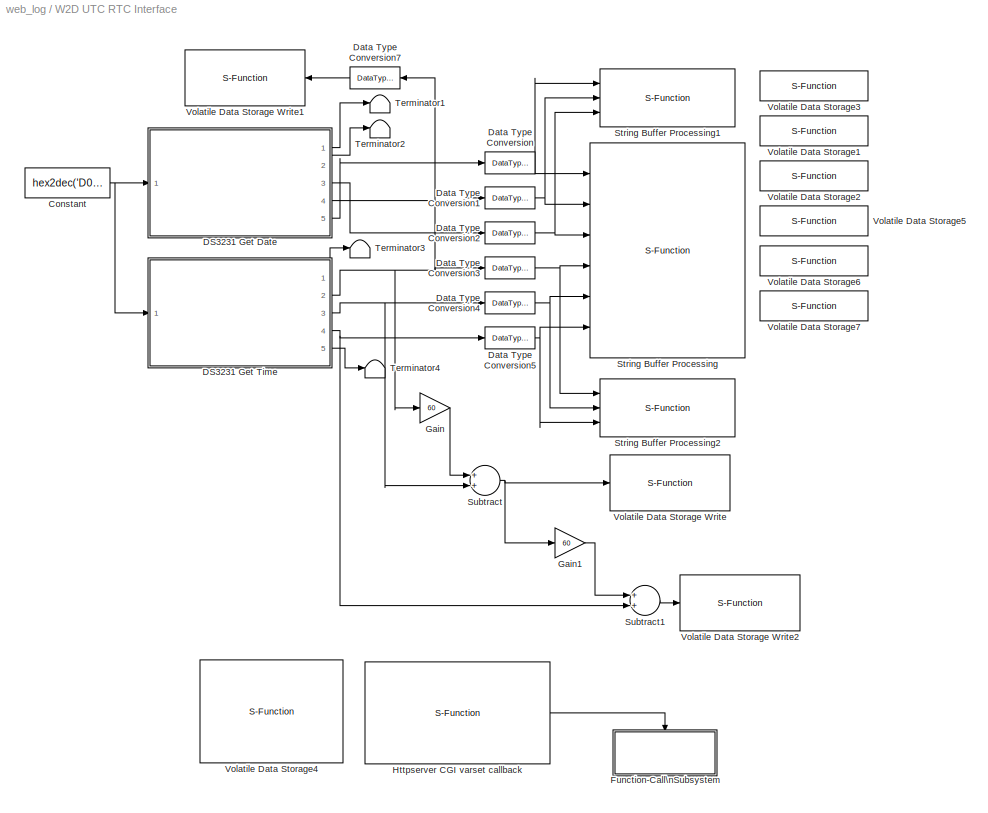
BLOCK [SubSystem] W2D UTC RTC Interface
  FunctionWithSeparateData = off
  MaskHideContents = off
  MinAlgLoopOccurrences = off
  Opaque = off
  Ports = []
  Priority = 1
  PropExecContextOutsideSubsystem = off
  RTWSystemCode = Auto
  RequestExecContextInheritance = off
BLOCK [Constant] W2D UTC RTC Interface/Constant
  OutDataType = fixdt(1, 16)
  OutDataTypeMode = uint8
  OutDataTypeStr = uint8
  OutScaling = 2^0
  Value = hex2dec('D0')
BLOCK [SubSystem] W2D UTC RTC Interface/DS3231 Get Date
  FunctionWithSeparateData = off
  MaskCallbackString = |amg_high_precision_rtc_callback('module');
  MaskDisplay = text(0.5, 0.5, 'Port: I2C1','ver','middle','hor','center');port_label('input', 1,'SlvAddr');port_label('output', 1,'Status');port_label('output', 2,'Day(1-7)');port_label('output', 3,'Date(1-31)');port_label('output', 4,'Month(1-12)');port_label('output', 5,'Year(0-99)');
  MaskEnableString = on,on
  MaskHelp = web(fullfile(waijungdocroot,'DS3231_Get_Date.htm'), '-browser')
  MaskHideContents = off
  MaskIconFrame = on
  MaskIconOpaque = on
  MaskIconRotate = none
  MaskIconUnits = normalized
  MaskInitialization = amg_high_precision_rtc_callback('init');\n
  MaskPortRotate = default
  MaskPromptString = Function|I2C module
  MaskSelfModifiable = on
  MaskStyleString = popup(temp|time|date),popup(1|2|3)
  MaskTabNameString = ,
  MaskToolTipString = on,on
  MaskTunableValueString = on,on
  MaskValueString = date|1
  MaskVarAliasString = ,
  MaskVariables = blockfunction=@1;module=@2;
  MaskVisibilityString = off,on
  MinAlgLoopOccurrences = off
  Opaque = off
  Ports = [1, 5]
  PropExecContextOutsideSubsystem = off
  RTWSystemCode = Auto
  RequestExecContextInheritance = off
  ShowPortLabels = FromPortBlockName
BLOCK [Reference] W2D UTC RTC Interface/DS3231 Get Date/Compare\nTo Zero  REF=simulink/Logic and Bit\nOperations/Compare\nTo Zero
  FunctionWithSeparateData = off
  LogicOutDataTypeMode = uint8
  Ports = [1, 1]
  RTWMemSecDataConstants = Inherit from model
  RTWMemSecDataInternal = Inherit from model
  RTWMemSecDataParameters = Inherit from model
  RTWMemSecFuncExecute = Inherit from model
  RTWMemSecFuncInitTerm = Inherit from model
  ShowPortLabels = FromPortIcon
  SourceBlock = simulink/Logic and Bit\nOperations/Compare\nTo Zero
  SourceType = Compare To Zero
  SystemSampleTime = -1
  ZeroCross = off
  relop = ==
BLOCK [SubSystem] W2D UTC RTC Interface/DS3231 Get Date/Convert
  FunctionWithSeparateData = off
  MaskHideContents = off
  MinAlgLoopOccurrences = off
  Opaque = off
  Ports = [4, 4, 1]
  PropExecContextOutsideSubsystem = off
  RTWSystemCode = Auto
  RequestExecContextInheritance = off
  TreatAsAtomicUnit = on
BLOCK [SubSystem] W2D UTC RTC Interface/DS3231 Get Date/Convert/Convert 1
  FunctionWithSeparateData = off
  MaskHideContents = off
  MinAlgLoopOccurrences = off
  Opaque = off
  Ports = [1, 1]
  PropExecContextOutsideSubsystem = off
  RTWSystemCode = Auto
  RequestExecContextInheritance = off
BLOCK [Sum] W2D UTC RTC Interface/DS3231 Get Date/Convert/Convert 1/Add
  InputSameDT = off
  OutDataType = fixdt(1, 16)
  OutDataTypeMode = Inherit via internal rule
  OutDataTypeStr = Inherit: Inherit via internal rule
  OutScaling = 2^-10
  Ports = [2, 1]
  SaturateOnIntegerOverflow = off
BLOCK [Constant] W2D UTC RTC Interface/DS3231 Get Date/Convert/Convert 1/Constant
  OutDataType = fixdt(1, 16)
  OutDataTypeMode = uint8
  OutDataTypeStr = uint8
  OutScaling = 2^0
  Value = 10
BLOCK [Reference] W2D UTC RTC Interface/DS3231 Get Date/Convert/Convert 1/Extract Bits  REF=simulink/Logic and Bit\nOperations/Extract Bits
  FunctionWithSeparateData = off
  Ports = [1, 1]
  RTWMemSecDataConstants = Inherit from model
  RTWMemSecDataInternal = Inherit from model
  RTWMemSecDataParameters = Inherit from model
  RTWMemSecFuncExecute = Inherit from model
  RTWMemSecFuncInitTerm = Inherit from model
  ShowPortLabels = FromPortIcon
  SourceBlock = simulink/Logic and Bit\nOperations/Extract Bits
  SourceType = Extract Bits
  SystemSampleTime = -1
  bitIdxRange = [4 5]
  bitsToExtract = Range of bits
  numBits = 8
  outScalingMode = Treat bit field as an integer
BLOCK [Reference] W2D UTC RTC Interface/DS3231 Get Date/Convert/Convert 1/Extract Bits1  REF=simulink/Logic and Bit\nOperations/Extract Bits
  FunctionWithSeparateData = off
  Ports = [1, 1]
  RTWMemSecDataConstants = Inherit from model
  RTWMemSecDataInternal = Inherit from model
  RTWMemSecDataParameters = Inherit from model
  RTWMemSecFuncExecute = Inherit from model
  RTWMemSecFuncInitTerm = Inherit from model
  ShowPortLabels = FromPortIcon
  SourceBlock = simulink/Logic and Bit\nOperations/Extract Bits
  SourceType = Extract Bits
  SystemSampleTime = -1
  bitIdxRange = [0 3]
  bitsToExtract = Range of bits
  numBits = 8
  outScalingMode = Treat bit field as an integer
BLOCK [Inport] W2D UTC RTC Interface/DS3231 Get Date/Convert/Convert 1/In1
  IconDisplay = Port number
BLOCK [Outport] W2D UTC RTC Interface/DS3231 Get Date/Convert/Convert 1/Out1
  IconDisplay = Port number
BLOCK [Product] W2D UTC RTC Interface/DS3231 Get Date/Convert/Convert 1/Product
  InputSameDT = off
  OutDataType = fixdt(1, 16)
  OutDataTypeMode = Inherit via internal rule
  OutDataTypeStr = Inherit: Inherit via internal rule
  OutScaling = 2^0
  Ports = [2, 1]
  SaturateOnIntegerOverflow = off
BLOCK [SubSystem] W2D UTC RTC Interface/DS3231 Get Date/Convert/Convert 2
  FunctionWithSeparateData = off
  MaskHideContents = off
  MinAlgLoopOccurrences = off
  Opaque = off
  Ports = [1, 1]
  PropExecContextOutsideSubsystem = off
  RTWSystemCode = Auto
  RequestExecContextInheritance = off
BLOCK [Sum] W2D UTC RTC Interface/DS3231 Get Date/Convert/Convert 2/Add
  InputSameDT = off
  OutDataType = fixdt(1, 16)
  OutDataTypeMode = Inherit via internal rule
  OutDataTypeStr = Inherit: Inherit via internal rule
  OutScaling = 2^-10
  Ports = [2, 1]
  SaturateOnIntegerOverflow = off
BLOCK [Constant] W2D UTC RTC Interface/DS3231 Get Date/Convert/Convert 2/Constant
  OutDataType = fixdt(1, 16)
  OutDataTypeMode = uint8
  OutDataTypeStr = uint8
  OutScaling = 2^0
  Value = 10
BLOCK [Reference] W2D UTC RTC Interface/DS3231 Get Date/Convert/Convert 2/Extract Bits  REF=simulink/Logic and Bit\nOperations/Extract Bits
  FunctionWithSeparateData = off
  Ports = [1, 1]
  RTWMemSecDataConstants = Inherit from model
  RTWMemSecDataInternal = Inherit from model
  RTWMemSecDataParameters = Inherit from model
  RTWMemSecFuncExecute = Inherit from model
  RTWMemSecFuncInitTerm = Inherit from model
  ShowPortLabels = FromPortIcon
  SourceBlock = simulink/Logic and Bit\nOperations/Extract Bits
  SourceType = Extract Bits
  SystemSampleTime = -1
  bitIdxRange = [4 4]
  bitsToExtract = Range of bits
  numBits = 8
  outScalingMode = Treat bit field as an integer
BLOCK [Reference] W2D UTC RTC Interface/DS3231 Get Date/Convert/Convert 2/Extract Bits1  REF=simulink/Logic and Bit\nOperations/Extract Bits
  FunctionWithSeparateData = off
  Ports = [1, 1]
  RTWMemSecDataConstants = Inherit from model
  RTWMemSecDataInternal = Inherit from model
  RTWMemSecDataParameters = Inherit from model
  RTWMemSecFuncExecute = Inherit from model
  RTWMemSecFuncInitTerm = Inherit from model
  ShowPortLabels = FromPortIcon
  SourceBlock = simulink/Logic and Bit\nOperations/Extract Bits
  SourceType = Extract Bits
  SystemSampleTime = -1
  bitIdxRange = [0 3]
  bitsToExtract = Range of bits
  numBits = 8
  outScalingMode = Treat bit field as an integer
BLOCK [Inport] W2D UTC RTC Interface/DS3231 Get Date/Convert/Convert 2/In1
  IconDisplay = Port number
BLOCK [Outport] W2D UTC RTC Interface/DS3231 Get Date/Convert/Convert 2/Out1
  IconDisplay = Port number
BLOCK [Product] W2D UTC RTC Interface/DS3231 Get Date/Convert/Convert 2/Product
  InputSameDT = off
  OutDataType = fixdt(1, 16)
  OutDataTypeMode = Inherit via internal rule
  OutDataTypeStr = Inherit: Inherit via internal rule
  OutScaling = 2^0
  Ports = [2, 1]
  SaturateOnIntegerOverflow = off
BLOCK [SubSystem] W2D UTC RTC Interface/DS3231 Get Date/Convert/Convert 3
  FunctionWithSeparateData = off
  MaskHideContents = off
  MinAlgLoopOccurrences = off
  Opaque = off
  Ports = [1, 1]
  PropExecContextOutsideSubsystem = off
  RTWSystemCode = Auto
  RequestExecContextInheritance = off
BLOCK [Sum] W2D UTC RTC Interface/DS3231 Get Date/Convert/Convert 3/Add
  InputSameDT = off
  OutDataType = fixdt(1, 16)
  OutDataTypeMode = Inherit via internal rule
  OutDataTypeStr = Inherit: Inherit via internal rule
  OutScaling = 2^-10
  Ports = [2, 1]
  SaturateOnIntegerOverflow = off
BLOCK [Constant] W2D UTC RTC Interface/DS3231 Get Date/Convert/Convert 3/Constant
  OutDataType = fixdt(1, 16)
  OutDataTypeMode = uint8
  OutDataTypeStr = uint8
  OutScaling = 2^0
  Value = 10
BLOCK [Reference] W2D UTC RTC Interface/DS3231 Get Date/Convert/Convert 3/Extract Bits  REF=simulink/Logic and Bit\nOperations/Extract Bits
  FunctionWithSeparateData = off
  Ports = [1, 1]
  RTWMemSecDataConstants = Inherit from model
  RTWMemSecDataInternal = Inherit from model
  RTWMemSecDataParameters = Inherit from model
  RTWMemSecFuncExecute = Inherit from model
  RTWMemSecFuncInitTerm = Inherit from model
  ShowPortLabels = FromPortIcon
  SourceBlock = simulink/Logic and Bit\nOperations/Extract Bits
  SourceType = Extract Bits
  SystemSampleTime = -1
  bitIdxRange = [4 7]
  bitsToExtract = Range of bits
  numBits = 8
  outScalingMode = Treat bit field as an integer
BLOCK [Reference] W2D UTC RTC Interface/DS3231 Get Date/Convert/Convert 3/Extract Bits1  REF=simulink/Logic and Bit\nOperations/Extract Bits
  FunctionWithSeparateData = off
  Ports = [1, 1]
  RTWMemSecDataConstants = Inherit from model
  RTWMemSecDataInternal = Inherit from model
  RTWMemSecDataParameters = Inherit from model
  RTWMemSecFuncExecute = Inherit from model
  RTWMemSecFuncInitTerm = Inherit from model
  ShowPortLabels = FromPortIcon
  SourceBlock = simulink/Logic and Bit\nOperations/Extract Bits
  SourceType = Extract Bits
  SystemSampleTime = -1
  bitIdxRange = [0 3]
  bitsToExtract = Range of bits
  numBits = 8
  outScalingMode = Treat bit field as an integer
BLOCK [Inport] W2D UTC RTC Interface/DS3231 Get Date/Convert/Convert 3/In1
  IconDisplay = Port number
BLOCK [Outport] W2D UTC RTC Interface/DS3231 Get Date/Convert/Convert 3/Out1
  IconDisplay = Port number
BLOCK [Product] W2D UTC RTC Interface/DS3231 Get Date/Convert/Convert 3/Product
  InputSameDT = off
  OutDataType = fixdt(1, 16)
  OutDataTypeMode = Inherit via internal rule
  OutDataTypeStr = Inherit: Inherit via internal rule
  OutScaling = 2^0
  Ports = [2, 1]
  SaturateOnIntegerOverflow = off
BLOCK [DataTypeConversion] W2D UTC RTC Interface/DS3231 Get Date/Convert/Data Type Conversion
  OutDataType = fixdt(1, 16)
  OutDataTypeMode = uint8
  OutDataTypeStr = uint8
  OutScaling = 2^0
  RndMeth = Floor
  SaturateOnIntegerOverflow = off
BLOCK [DataTypeConversion] W2D UTC RTC Interface/DS3231 Get Date/Convert/Data Type Conversion1
  OutDataType = fixdt(1, 16)
  OutDataTypeMode = uint8
  OutDataTypeStr = uint8
  OutScaling = 2^0
  RndMeth = Floor
  SaturateOnIntegerOverflow = off
BLOCK [DataTypeConversion] W2D UTC RTC Interface/DS3231 Get Date/Convert/Data Type Conversion2
  OutDataType = fixdt(1, 16)
  OutDataTypeMode = uint8
  OutDataTypeStr = uint8
  OutScaling = 2^0
  RndMeth = Floor
  SaturateOnIntegerOverflow = off
BLOCK [DataTypeConversion] W2D UTC RTC Interface/DS3231 Get Date/Convert/Data Type Conversion3
  OutDataType = fixdt(1, 16)
  OutDataTypeMode = uint8
  OutDataTypeStr = uint8
  OutScaling = 2^0
  RndMeth = Floor
  SaturateOnIntegerOverflow = off
BLOCK [Outport] W2D UTC RTC Interface/DS3231 Get Date/Convert/Date
  IconDisplay = Port number
  OutDataType = fixdt(1, 16)
  OutScaling = 2^0
  Port = 2
BLOCK [Outport] W2D UTC RTC Interface/DS3231 Get Date/Convert/Day
  IconDisplay = Port number
  OutDataType = fixdt(1, 16)
  OutScaling = 2^0
BLOCK [EnablePort] W2D UTC RTC Interface/DS3231 Get Date/Convert/Enable
  Ports = []
BLOCK [Reference] W2D UTC RTC Interface/DS3231 Get Date/Convert/Extract Bits  REF=simulink/Logic and Bit\nOperations/Extract Bits
  FunctionWithSeparateData = off
  Ports = [1, 1]
  RTWMemSecDataConstants = Inherit from model
  RTWMemSecDataInternal = Inherit from model
  RTWMemSecDataParameters = Inherit from model
  RTWMemSecFuncExecute = Inherit from model
  RTWMemSecFuncInitTerm = Inherit from model
  ShowPortLabels = FromPortIcon
  SourceBlock = simulink/Logic and Bit\nOperations/Extract Bits
  SourceType = Extract Bits
  SystemSampleTime = -1
  bitIdxRange = [0 3]
  bitsToExtract = Range of bits
  numBits = 8
  outScalingMode = Treat bit field as an integer
BLOCK [Inport] W2D UTC RTC Interface/DS3231 Get Date/Convert/In1
  IconDisplay = Port number
  OutDataType = fixdt(1, 16)
  OutScaling = 2^0
BLOCK [Inport] W2D UTC RTC Interface/DS3231 Get Date/Convert/In2
  IconDisplay = Port number
  OutDataType = fixdt(1, 16)
  OutScaling = 2^0
  Port = 2
BLOCK [Inport] W2D UTC RTC Interface/DS3231 Get Date/Convert/In3
  IconDisplay = Port number
  OutDataType = fixdt(1, 16)
  OutScaling = 2^0
  Port = 3
BLOCK [Inport] W2D UTC RTC Interface/DS3231 Get Date/Convert/In4
  IconDisplay = Port number
  OutDataType = fixdt(1, 16)
  OutScaling = 2^0
  Port = 4
BLOCK [Outport] W2D UTC RTC Interface/DS3231 Get Date/Convert/Month
  IconDisplay = Port number
  OutDataType = fixdt(1, 16)
  OutScaling = 2^0
  Port = 3
BLOCK [Outport] W2D UTC RTC Interface/DS3231 Get Date/Convert/Year
  IconDisplay = Port number
  OutDataType = fixdt(1, 16)
  OutScaling = 2^0
  Port = 4
BLOCK [Outport] W2D UTC RTC Interface/DS3231 Get Date/Date
  IconDisplay = Port number
  Port = 3
BLOCK [Outport] W2D UTC RTC Interface/DS3231 Get Date/Day
  IconDisplay = Port number
  Port = 2
BLOCK [S-Function] W2D UTC RTC Interface/DS3231 Get Date/I2C Master Read//Write
  EnableBusSupport = off
  FunctionName = stm32f4_i2c
  MaskDisplay = text(0.5, 0.5, 'Module: I2C1\\nTransfer: Blocking\\nWrite: 1 bytes\\nRead: 4 bytes\\nTs (sec): 0.2','ver','middle','hor','center');port_label('input', 1,'SlvAddr');port_label('input', 2,'Wr0 (uint8)');port_label('output', 1,'Status');port_label('output', 2,'Rd0 (uint8)');port_label('output', 3,'Rd1 (uint8)');port_label('output', 4,'Rd2 (uint8)');port_label('output', 5,'Rd3 (uint8)');
  MaskEnableString = off,on,off,off,on,on,on,on,on,on,on,on,off,off,off,on,on,on
  MaskHelp = web(fullfile(waijungdocroot,'stm32f4_i2c_readwrite.htm'), '-browser')
  MaskIconFrame = on
  MaskIconOpaque = on
  MaskIconRotate = none
  MaskIconUnits = normalized
  MaskInitialization = stm32f4_i2c_callback('init');
  MaskPortRotate = default
  MaskSelfModifiable = on
  MaskTabNameString = ,,,,,,,,,,,,,,,,,
  MaskToolTipString = on,on,on,on,on,on,on,on,on,on,on,on,on,on,on,on,on,on
  MaskTunableValueString = off,off,off,off,off,off,off,off,off,off,off,off,off,off,off,off,off,off
  MaskType = stm32f4_i2c
  MaskValueString = Transaction|1|3|Blocking|TLow/THigh = 2|400|25|1|4|C9|A8|0|[2 3 3]|[5 3 3 3 3 3]|[\"C\",\"9\",\"A\",\"8\",\"1\",\"1\",\"6\",\"0\",\"I2C_DutyCycle_2\",\"0\",\"off\"]|-1|0.2|W2DUTCRTCInterfaceDS3231GetDateI2CMasterReadWrite
  MaskVarAliasString = ,,,,,,,,,,,,,,,,,
  MaskVisibilityString = off,on,off,off,off,off,off,on,on,off,off,on,off,off,off,on,off,off
  Parameters = configuration,module,transfer,clkspeed,timeout,sdapin,sclpin,writecount,readcount,inputtypearray,outputtypearray,confstr,sampletime,sampletimestr,blockid
  Ports = [2, 5]
BLOCK [Outport] W2D UTC RTC Interface/DS3231 Get Date/Month
  IconDisplay = Port number
  Port = 4
BLOCK [Constant] W2D UTC RTC Interface/DS3231 Get Date/REG_DATE
  OutDataType = fixdt(1, 16)
  OutDataTypeMode = uint8
  OutDataTypeStr = uint8
  OutScaling = 2^0
  Value = hex2dec('03')
BLOCK [Inport] W2D UTC RTC Interface/DS3231 Get Date/Slave Address
  IconDisplay = Port number
  OutDataType = fixdt(1, 16)
  OutScaling = 2^0
BLOCK [Outport] W2D UTC RTC Interface/DS3231 Get Date/Status
  IconDisplay = Port number
BLOCK [Outport] W2D UTC RTC Interface/DS3231 Get Date/Year
  IconDisplay = Port number
  Port = 5
BLOCK [SubSystem] W2D UTC RTC Interface/DS3231 Get Time
  FunctionWithSeparateData = off
  MaskCallbackString = |amg_high_precision_rtc_callback('module');
  MaskDisplay = text(0.5, 0.5, 'Port: I2C1','ver','middle','hor','center');port_label('input', 1,'SlvAddr');port_label('output', 1,'Status');port_label('output', 2,'Hour(0-11/23)');port_label('output', 3,'Minute(0-59)');port_label('output', 4,'Second(0-59)');port_label('output', 5,'AM(0)/PM(1)');
  MaskEnableString = on,on
  MaskHelp = web(fullfile(waijungdocroot,'DS3231_Get_Time.htm'), '-browser')
  MaskHideContents = off
  MaskIconFrame = on
  MaskIconOpaque = on
  MaskIconRotate = none
  MaskIconUnits = normalized
  MaskInitialization = amg_high_precision_rtc_callback('init');\n
  MaskPortRotate = default
  MaskPromptString = Function|I2C module
  MaskSelfModifiable = on
  MaskStyleString = popup(temp|time|date),popup(1|2|3)
  MaskTabNameString = ,
  MaskToolTipString = on,on
  MaskTunableValueString = on,on
  MaskValueString = time|1
  MaskVarAliasString = ,
  MaskVariables = blockfunction=@1;module=@2;
  MaskVisibilityString = off,on
  MinAlgLoopOccurrences = off
  Opaque = off
  Ports = [1, 5]
  PropExecContextOutsideSubsystem = off
  RTWSystemCode = Auto
  RequestExecContextInheritance = off
  ShowPortLabels = FromPortBlockName
BLOCK [Outport] W2D UTC RTC Interface/DS3231 Get Time/AM//PM
  IconDisplay = Port number
  Port = 5
BLOCK [Reference] W2D UTC RTC Interface/DS3231 Get Time/Compare\nTo Zero  REF=simulink/Logic and Bit\nOperations/Compare\nTo Zero
  FunctionWithSeparateData = off
  LogicOutDataTypeMode = uint8
  Ports = [1, 1]
  RTWMemSecDataConstants = Inherit from model
  RTWMemSecDataInternal = Inherit from model
  RTWMemSecDataParameters = Inherit from model
  RTWMemSecFuncExecute = Inherit from model
  RTWMemSecFuncInitTerm = Inherit from model
  ShowPortLabels = FromPortIcon
  SourceBlock = simulink/Logic and Bit\nOperations/Compare\nTo Zero
  SourceType = Compare To Zero
  SystemSampleTime = -1
  ZeroCross = off
  relop = ==
BLOCK [SubSystem] W2D UTC RTC Interface/DS3231 Get Time/Convert
  FunctionWithSeparateData = off
  MaskHideContents = off
  MinAlgLoopOccurrences = off
  Opaque = off
  Ports = [3, 4, 1]
  PropExecContextOutsideSubsystem = off
  RTWSystemCode = Auto
  RequestExecContextInheritance = off
  TreatAsAtomicUnit = on
BLOCK [Outport] W2D UTC RTC Interface/DS3231 Get Time/Convert/AM//PM
  IconDisplay = Port number
  OutDataType = fixdt(1, 16)
  OutScaling = 2^0
  Port = 4
BLOCK [SubSystem] W2D UTC RTC Interface/DS3231 Get Time/Convert/Convert Hour
  FunctionWithSeparateData = off
  MaskHideContents = off
  MinAlgLoopOccurrences = off
  Opaque = off
  Ports = [1, 2]
  PropExecContextOutsideSubsystem = off
  RTWSystemCode = Auto
  RequestExecContextInheritance = off
BLOCK [Outport] W2D UTC RTC Interface/DS3231 Get Time/Convert/Convert Hour/AM//PM
  IconDisplay = Port number
  Port = 2
BLOCK [Sum] W2D UTC RTC Interface/DS3231 Get Time/Convert/Convert Hour/Add
  InputSameDT = off
  OutDataType = fixdt(1, 16)
  OutDataTypeMode = Inherit via internal rule
  OutDataTypeStr = Inherit: Inherit via internal rule
  OutScaling = 2^-10
  Ports = [2, 1]
  SaturateOnIntegerOverflow = off
BLOCK [Constant] W2D UTC RTC Interface/DS3231 Get Time/Convert/Convert Hour/Constant
  OutDataType = fixdt(1, 16)
  OutDataTypeMode = uint8
  OutDataTypeStr = uint8
  OutScaling = 2^0
  Value = 10
BLOCK [Reference] W2D UTC RTC Interface/DS3231 Get Time/Convert/Convert Hour/Extract Bits  REF=simulink/Logic and Bit\nOperations/Extract Bits
  FunctionWithSeparateData = off
  Ports = [1, 1]
  RTWMemSecDataConstants = Inherit from model
  RTWMemSecDataInternal = Inherit from model
  RTWMemSecDataParameters = Inherit from model
  RTWMemSecFuncExecute = Inherit from model
  RTWMemSecFuncInitTerm = Inherit from model
  ShowPortLabels = FromPortIcon
  SourceBlock = simulink/Logic and Bit\nOperations/Extract Bits
  SourceType = Extract Bits
  SystemSampleTime = -1
  bitIdxRange = [4 5]
  bitsToExtract = Range of bits
  numBits = 8
  outScalingMode = Treat bit field as an integer
BLOCK [Reference] W2D UTC RTC Interface/DS3231 Get Time/Convert/Convert Hour/Extract Bits1  REF=simulink/Logic and Bit\nOperations/Extract Bits
  FunctionWithSeparateData = off
  Ports = [1, 1]
  RTWMemSecDataConstants = Inherit from model
  RTWMemSecDataInternal = Inherit from model
  RTWMemSecDataParameters = Inherit from model
  RTWMemSecFuncExecute = Inherit from model
  RTWMemSecFuncInitTerm = Inherit from model
  ShowPortLabels = FromPortIcon
  SourceBlock = simulink/Logic and Bit\nOperations/Extract Bits
  SourceType = Extract Bits
  SystemSampleTime = -1
  bitIdxRange = [0 3]
  bitsToExtract = Range of bits
  numBits = 8
  outScalingMode = Treat bit field as an integer
BLOCK [Reference] W2D UTC RTC Interface/DS3231 Get Time/Convert/Convert Hour/Extract Bits2  REF=simulink/Logic and Bit\nOperations/Extract Bits
  FunctionWithSeparateData = off
  Ports = [1, 1]
  RTWMemSecDataConstants = Inherit from model
  RTWMemSecDataInternal = Inherit from model
  RTWMemSecDataParameters = Inherit from model
  RTWMemSecFuncExecute = Inherit from model
  RTWMemSecFuncInitTerm = Inherit from model
  ShowPortLabels = FromPortIcon
  SourceBlock = simulink/Logic and Bit\nOperations/Extract Bits
  SourceType = Extract Bits
  SystemSampleTime = -1
  bitIdxRange = [5 5]
  bitsToExtract = Range of bits
  numBits = 8
  outScalingMode = Treat bit field as an integer
BLOCK [Outport] W2D UTC RTC Interface/DS3231 Get Time/Convert/Convert Hour/Hour
  IconDisplay = Port number
BLOCK [Inport] W2D UTC RTC Interface/DS3231 Get Time/Convert/Convert Hour/In1
  IconDisplay = Port number
BLOCK [Product] W2D UTC RTC Interface/DS3231 Get Time/Convert/Convert Hour/Product
  InputSameDT = off
  OutDataType = fixdt(1, 16)
  OutDataTypeMode = Inherit via internal rule
  OutDataTypeStr = Inherit: Inherit via internal rule
  OutScaling = 2^0
  Ports = [2, 1]
  SaturateOnIntegerOverflow = off
BLOCK [SubSystem] W2D UTC RTC Interface/DS3231 Get Time/Convert/Convert Second// Minute
  FunctionWithSeparateData = off
  MaskHideContents = off
  MinAlgLoopOccurrences = off
  Opaque = off
  Ports = [1, 1]
  PropExecContextOutsideSubsystem = off
  RTWSystemCode = Auto
  RequestExecContextInheritance = off
BLOCK [Sum] W2D UTC RTC Interface/DS3231 Get Time/Convert/Convert Second// Minute/Add
  InputSameDT = off
  OutDataType = fixdt(1, 16)
  OutDataTypeMode = Inherit via internal rule
  OutDataTypeStr = Inherit: Inherit via internal rule
  OutScaling = 2^-10
  Ports = [2, 1]
  SaturateOnIntegerOverflow = off
BLOCK [Constant] W2D UTC RTC Interface/DS3231 Get Time/Convert/Convert Second// Minute/Constant
  OutDataType = fixdt(1, 16)
  OutDataTypeMode = uint8
  OutDataTypeStr = uint8
  OutScaling = 2^0
  Value = 10
BLOCK [Reference] W2D UTC RTC Interface/DS3231 Get Time/Convert/Convert Second// Minute/Extract Bits  REF=simulink/Logic and Bit\nOperations/Extract Bits
  FunctionWithSeparateData = off
  Ports = [1, 1]
  RTWMemSecDataConstants = Inherit from model
  RTWMemSecDataInternal = Inherit from model
  RTWMemSecDataParameters = Inherit from model
  RTWMemSecFuncExecute = Inherit from model
  RTWMemSecFuncInitTerm = Inherit from model
  ShowPortLabels = FromPortIcon
  SourceBlock = simulink/Logic and Bit\nOperations/Extract Bits
  SourceType = Extract Bits
  SystemSampleTime = -1
  bitIdxRange = [4 6]
  bitsToExtract = Range of bits
  numBits = 8
  outScalingMode = Treat bit field as an integer
BLOCK [Reference] W2D UTC RTC Interface/DS3231 Get Time/Convert/Convert Second// Minute/Extract Bits1  REF=simulink/Logic and Bit\nOperations/Extract Bits
  FunctionWithSeparateData = off
  Ports = [1, 1]
  RTWMemSecDataConstants = Inherit from model
  RTWMemSecDataInternal = Inherit from model
  RTWMemSecDataParameters = Inherit from model
  RTWMemSecFuncExecute = Inherit from model
  RTWMemSecFuncInitTerm = Inherit from model
  ShowPortLabels = FromPortIcon
  SourceBlock = simulink/Logic and Bit\nOperations/Extract Bits
  SourceType = Extract Bits
  SystemSampleTime = -1
  bitIdxRange = [0 3]
  bitsToExtract = Range of bits
  numBits = 8
  outScalingMode = Treat bit field as an integer
BLOCK [Inport] W2D UTC RTC Interface/DS3231 Get Time/Convert/Convert Second// Minute/In1
  IconDisplay = Port number
BLOCK [Outport] W2D UTC RTC Interface/DS3231 Get Time/Convert/Convert Second// Minute/Out1
  IconDisplay = Port number
BLOCK [Product] W2D UTC RTC Interface/DS3231 Get Time/Convert/Convert Second// Minute/Product
  InputSameDT = off
  OutDataType = fixdt(1, 16)
  OutDataTypeMode = Inherit via internal rule
  OutDataTypeStr = Inherit: Inherit via internal rule
  OutScaling = 2^0
  Ports = [2, 1]
  SaturateOnIntegerOverflow = off
BLOCK [Demux] W2D UTC RTC Interface/DS3231 Get Time/Convert/Demux
  DisplayOption = bar
  Outputs = 2
  Ports = [1, 2]
BLOCK [EnablePort] W2D UTC RTC Interface/DS3231 Get Time/Convert/Enable
  Ports = []
BLOCK [Outport] W2D UTC RTC Interface/DS3231 Get Time/Convert/Hour
  IconDisplay = Port number
  OutDataType = fixdt(1, 16)
  OutScaling = 2^0
BLOCK [Inport] W2D UTC RTC Interface/DS3231 Get Time/Convert/In1
  IconDisplay = Port number
  OutDataType = fixdt(1, 16)
  OutScaling = 2^0
BLOCK [Inport] W2D UTC RTC Interface/DS3231 Get Time/Convert/In2
  IconDisplay = Port number
  OutDataType = fixdt(1, 16)
  OutScaling = 2^0
  Port = 2
BLOCK [Inport] W2D UTC RTC Interface/DS3231 Get Time/Convert/In3
  IconDisplay = Port number
  OutDataType = fixdt(1, 16)
  OutScaling = 2^0
  Port = 3
BLOCK [Outport] W2D UTC RTC Interface/DS3231 Get Time/Convert/Minute
  IconDisplay = Port number
  OutDataType = fixdt(1, 16)
  OutScaling = 2^0
  Port = 2
BLOCK [Mux] W2D UTC RTC Interface/DS3231 Get Time/Convert/Mux
  DisplayOption = bar
  Inputs = 2
  Ports = [2, 1]
BLOCK [Outport] W2D UTC RTC Interface/DS3231 Get Time/Convert/Second
  IconDisplay = Port number
  OutDataType = fixdt(1, 16)
  OutScaling = 2^0
  Port = 3
BLOCK [DataTypeConversion] W2D UTC RTC Interface/DS3231 Get Time/Data Type Conversion
  OutDataType = fixdt(1, 16)
  OutDataTypeMode = uint8
  OutDataTypeStr = uint8
  OutScaling = 2^0
  RndMeth = Floor
  SaturateOnIntegerOverflow = off
BLOCK [DataTypeConversion] W2D UTC RTC Interface/DS3231 Get Time/Data Type Conversion1
  OutDataType = fixdt(1, 16)
  OutDataTypeMode = uint8
  OutDataTypeStr = uint8
  OutScaling = 2^0
  RndMeth = Floor
  SaturateOnIntegerOverflow = off
BLOCK [DataTypeConversion] W2D UTC RTC Interface/DS3231 Get Time/Data Type Conversion2
  OutDataType = fixdt(1, 16)
  OutDataTypeMode = uint8
  OutDataTypeStr = uint8
  OutScaling = 2^0
  RndMeth = Floor
  SaturateOnIntegerOverflow = off
BLOCK [DataTypeConversion] W2D UTC RTC Interface/DS3231 Get Time/Data Type Conversion3
  OutDataType = fixdt(1, 16)
  OutDataTypeMode = uint8
  OutDataTypeStr = uint8
  OutScaling = 2^0
  RndMeth = Floor
  SaturateOnIntegerOverflow = off
BLOCK [Outport] W2D UTC RTC Interface/DS3231 Get Time/Hour
  IconDisplay = Port number
  Port = 2
BLOCK [S-Function] W2D UTC RTC Interface/DS3231 Get Time/I2C Master Read//Write
  EnableBusSupport = off
  FunctionName = stm32f4_i2c
  MaskDisplay = text(0.5, 0.5, 'Module: I2C1\\nTransfer: Blocking\\nWrite: 1 bytes\\nRead: 3 bytes\\nTs (sec): 0.2','ver','middle','hor','center');port_label('input', 1,'SlvAddr');port_label('input', 2,'Wr0 (uint8)');port_label('output', 1,'Status');port_label('output', 2,'Rd0 (uint8)');port_label('output', 3,'Rd1 (uint8)');port_label('output', 4,'Rd2 (uint8)');
  MaskEnableString = off,on,off,off,on,on,on,on,on,on,on,on,off,off,off,on,on,on
  MaskHelp = web(fullfile(waijungdocroot,'stm32f4_i2c_readwrite.htm'), '-browser')
  MaskIconFrame = on
  MaskIconOpaque = on
  MaskIconRotate = none
  MaskIconUnits = normalized
  MaskInitialization = stm32f4_i2c_callback('init');
  MaskPortRotate = default
  MaskSelfModifiable = on
  MaskTabNameString = ,,,,,,,,,,,,,,,,,
  MaskToolTipString = on,on,on,on,on,on,on,on,on,on,on,on,on,on,on,on,on,on
  MaskTunableValueString = off,off,off,off,off,off,off,off,off,off,off,off,off,off,off,off,off,off
  MaskType = stm32f4_i2c
  MaskValueString = Transaction|1|3|Blocking|TLow/THigh = 2|400|25|1|3|C9|A8|0|[2 3 3]|[4 3 3 3 3]|[\"C\",\"9\",\"A\",\"8\",\"1\",\"1\",\"6\",\"0\",\"I2C_DutyCycle_2\",\"0\",\"off\"]|-1|0.2|W2DUTCRTCInterfaceDS3231GetTimeI2CMasterReadWrite
  MaskVarAliasString = ,,,,,,,,,,,,,,,,,
  MaskVisibilityString = off,on,off,off,off,off,off,on,on,off,off,on,off,off,off,on,off,off
  Parameters = configuration,module,transfer,clkspeed,timeout,sdapin,sclpin,writecount,readcount,inputtypearray,outputtypearray,confstr,sampletime,sampletimestr,blockid
  Ports = [2, 4]
BLOCK [Outport] W2D UTC RTC Interface/DS3231 Get Time/Minute
  IconDisplay = Port number
  Port = 3
BLOCK [Constant] W2D UTC RTC Interface/DS3231 Get Time/REG_TIME
  OutDataType = fixdt(1, 16)
  OutDataTypeMode = uint8
  OutDataTypeStr = uint8
  OutScaling = 2^0
  Value = hex2dec('00')
BLOCK [Outport] W2D UTC RTC Interface/DS3231 Get Time/Second
  IconDisplay = Port number
  Port = 4
BLOCK [Inport] W2D UTC RTC Interface/DS3231 Get Time/Slave Address
  IconDisplay = Port number
  OutDataType = fixdt(1, 16)
  OutScaling = 2^0
BLOCK [Outport] W2D UTC RTC Interface/DS3231 Get Time/Status
  IconDisplay = Port number
BLOCK [DataTypeConversion] W2D UTC RTC Interface/Data Type Conversion
  OutDataType = fixdt(1, 16)
  OutScaling = 2^0
  RndMeth = Floor
  SaturateOnIntegerOverflow = off
BLOCK [DataTypeConversion] W2D UTC RTC Interface/Data Type Conversion1
  OutDataType = fixdt(1, 16)
  OutScaling = 2^0
  RndMeth = Floor
  SaturateOnIntegerOverflow = off
BLOCK [DataTypeConversion] W2D UTC RTC Interface/Data Type Conversion2
  OutDataType = fixdt(1, 16)
  OutScaling = 2^0
  RndMeth = Floor
  SaturateOnIntegerOverflow = off
BLOCK [DataTypeConversion] W2D UTC RTC Interface/Data Type Conversion3
  OutDataType = fixdt(1, 16)
  OutScaling = 2^0
  RndMeth = Floor
  SaturateOnIntegerOverflow = off
BLOCK [DataTypeConversion] W2D UTC RTC Interface/Data Type Conversion4
  OutDataType = fixdt(1, 16)
  OutScaling = 2^0
  RndMeth = Floor
  SaturateOnIntegerOverflow = off
BLOCK [DataTypeConversion] W2D UTC RTC Interface/Data Type Conversion5
  OutDataType = fixdt(1, 16)
  OutScaling = 2^0
  RndMeth = Floor
  SaturateOnIntegerOverflow = off
BLOCK [DataTypeConversion] W2D UTC RTC Interface/Data Type Conversion7
  OutDataType = fixdt(1, 16)
  OutScaling = 2^0
  RndMeth = Floor
  SaturateOnIntegerOverflow = off
BLOCK [SubSystem] W2D UTC RTC Interface/Function-Call\nSubsystem
  FunctionWithSeparateData = off
  MaskHideContents = off
  MinAlgLoopOccurrences = off
  Opaque = off
  Ports = [0, 0, 0, 1]
  PropExecContextOutsideSubsystem = off
  RTWSystemCode = Auto
  RequestExecContextInheritance = off
  TreatAsAtomicUnit = on
BLOCK [Constant] W2D UTC RTC Interface/Function-Call\nSubsystem/Constant
  OutDataType = fixdt(1, 16)
  OutDataTypeMode = uint8
  OutDataTypeStr = uint8
  OutScaling = 2^0
  Value = hex2dec('D0')
BLOCK [SubSystem] W2D UTC RTC Interface/Function-Call\nSubsystem/DS3231 Set Date
  FunctionWithSeparateData = off
  MaskCallbackString = |amg_high_precision_rtc_callback('module');
  MaskDisplay = text(0.5, 0.5, 'Port: I2C1','ver','middle','hor','center');port_label('input', 1,'SlvAddr');port_label('input', 2,'Date(1-31)');port_label('input', 3,'Month(1-12)');port_label('input', 4,'Year(0-99)');port_label('output', 1,'Status');
  MaskEnableString = on,on
  MaskHelp = web(fullfile(waijungdocroot,'DS3231_Get_Time.htm'), '-browser')
  MaskHideContents = off
  MaskIconFrame = on
  MaskIconOpaque = on
  MaskIconRotate = none
  MaskIconUnits = normalized
  MaskInitialization = amg_high_precision_rtc_callback('init');\n
  MaskPortRotate = default
  MaskPromptString = Function|I2C module
  MaskSelfModifiable = on
  MaskStyleString = popup(setdate),popup(1|2|3)
  MaskTabNameString = ,
  MaskToolTipString = on,on
  MaskTunableValueString = on,on
  MaskValueString = setdate|1
  MaskVarAliasString = ,
  MaskVariables = blockfunction=@1;module=@2;
  MaskVisibilityString = off,on
  MinAlgLoopOccurrences = off
  Opaque = off
  Ports = [4, 1]
  PropExecContextOutsideSubsystem = off
  RTWSystemCode = Auto
  RequestExecContextInheritance = off
  ShowPortLabels = FromPortBlockName
BLOCK [Constant] W2D UTC RTC Interface/Function-Call\nSubsystem/DS3231 Set Date/Constant
  OutDataType = fixdt(1, 16)
  OutDataTypeMode = uint8
  OutDataTypeStr = uint8
  OutScaling = 2^0
  Value = 4
BLOCK [SubSystem] W2D UTC RTC Interface/Function-Call\nSubsystem/DS3231 Set Date/ConvertToBCD1
  FunctionWithSeparateData = off
  MaskDisplay = disp('Dec-to-BCD');
  MaskHideContents = off
  MaskIconFrame = on
  MaskIconOpaque = on
  MaskIconRotate = none
  MaskIconUnits = autoscale
  MaskPortRotate = default
  MinAlgLoopOccurrences = off
  Opaque = off
  Ports = [1, 1]
  PropExecContextOutsideSubsystem = off
  RTWFcnNameOpts = Use subsystem name
  RTWFileNameOpts = Use function name
  RTWSystemCode = Reusable function
  RequestExecContextInheritance = off
  TreatAsAtomicUnit = on
BLOCK [Reference] W2D UTC RTC Interface/Function-Call\nSubsystem/DS3231 Set Date/ConvertToBCD1/Bitwise\nOperator  REF=simulink/Logic and Bit\nOperations/Bitwise\nOperator
  BitMask = bin2dec('11011001')
  BitMaskRealWorld = Stored Integer
  NumInputPorts = 2
  Ports = [2, 1]
  SourceBlock = simulink/Logic and Bit\nOperations/Bitwise\nOperator
  SourceType = Bitwise Operator
  UseBitMask = off
  logicop = OR
BLOCK [Constant] W2D UTC RTC Interface/Function-Call\nSubsystem/DS3231 Set Date/ConvertToBCD1/Constant
  OutDataType = fixdt(1, 16)
  OutDataTypeMode = single
  OutDataTypeStr = single
  OutScaling = 2^0
  Value = 10
BLOCK [Constant] W2D UTC RTC Interface/Function-Call\nSubsystem/DS3231 Set Date/ConvertToBCD1/Constant1
  OutDataType = fixdt(1, 16)
  OutDataTypeMode = single
  OutDataTypeStr = single
  OutScaling = 2^0
  Value = 10
BLOCK [DataTypeConversion] W2D UTC RTC Interface/Function-Call\nSubsystem/DS3231 Set Date/ConvertToBCD1/Data Type Conversion
  OutDataType = fixdt(1, 16)
  OutDataTypeMode = single
  OutDataTypeStr = single
  OutScaling = 2^0
  RndMeth = Floor
  SaturateOnIntegerOverflow = off
BLOCK [DataTypeConversion] W2D UTC RTC Interface/Function-Call\nSubsystem/DS3231 Set Date/ConvertToBCD1/Data Type Conversion1
  OutDataType = fixdt(1, 16)
  OutDataTypeMode = uint8
  OutDataTypeStr = uint8
  OutScaling = 2^0
  RndMeth = Floor
  SaturateOnIntegerOverflow = off
BLOCK [DataTypeConversion] W2D UTC RTC Interface/Function-Call\nSubsystem/DS3231 Set Date/ConvertToBCD1/Data Type Conversion2
  OutDataType = fixdt(1, 16)
  OutDataTypeMode = uint8
  OutDataTypeStr = uint8
  OutScaling = 2^0
  RndMeth = Floor
  SaturateOnIntegerOverflow = off
BLOCK [DataTypeConversion] W2D UTC RTC Interface/Function-Call\nSubsystem/DS3231 Set Date/ConvertToBCD1/Data Type Conversion3
  OutDataType = fixdt(1, 16)
  OutDataTypeMode = uint8
  OutDataTypeStr = uint8
  OutScaling = 2^0
  RndMeth = Floor
  SaturateOnIntegerOverflow = off
BLOCK [Product] W2D UTC RTC Interface/Function-Call\nSubsystem/DS3231 Set Date/ConvertToBCD1/Divide
  InputSameDT = off
  Inputs = */
  OutDataType = fixdt(1, 16)
  OutDataTypeMode = Inherit via internal rule
  OutDataTypeStr = Inherit: Inherit via internal rule
  OutScaling = 2^-10
  Ports = [2, 1]
  RndMeth = Floor
  SaturateOnIntegerOverflow = off
BLOCK [Inport] W2D UTC RTC Interface/Function-Call\nSubsystem/DS3231 Set Date/ConvertToBCD1/In1
  IconDisplay = Port number
  OutDataType = fixdt(1, 16)
  OutScaling = 2^0
BLOCK [Outport] W2D UTC RTC Interface/Function-Call\nSubsystem/DS3231 Set Date/ConvertToBCD1/Out1
  IconDisplay = Port number
  OutDataType = fixdt(1, 16)
  OutScaling = 2^0
BLOCK [Product] W2D UTC RTC Interface/Function-Call\nSubsystem/DS3231 Set Date/ConvertToBCD1/Product
  InputSameDT = off
  OutDataType = fixdt(1, 16)
  OutDataTypeMode = Inherit via internal rule
  OutDataTypeStr = Inherit: Inherit via internal rule
  OutScaling = 2^0
  Ports = [2, 1]
  SaturateOnIntegerOverflow = off
BLOCK [Reference] W2D UTC RTC Interface/Function-Call\nSubsystem/DS3231 Set Date/ConvertToBCD1/Shift\nArithmetic  REF=simulink/Logic and Bit\nOperations/Shift\nArithmetic
  FunctionWithSeparateData = off
  Ports = [1, 1]
  RTWMemSecDataConstants = Inherit from model
  RTWMemSecDataInternal = Inherit from model
  RTWMemSecDataParameters = Inherit from model
  RTWMemSecFuncExecute = Inherit from model
  RTWMemSecFuncInitTerm = Inherit from model
  ShowPortLabels = FromPortIcon
  SourceBlock = simulink/Logic and Bit\nOperations/Shift\nArithmetic
  SourceType = Shift Arithmetic
  SystemSampleTime = -1
  nBinPtShiftRight = 0
  nBitShiftRight = -4
BLOCK [Sum] W2D UTC RTC Interface/Function-Call\nSubsystem/DS3231 Set Date/ConvertToBCD1/Subtract
  InputSameDT = off
  Inputs = +-
  OutDataType = fixdt(1, 16)
  OutDataTypeMode = Inherit via internal rule
  OutDataTypeStr = Inherit: Inherit via internal rule
  OutScaling = 2^-10
  Ports = [2, 1]
  SaturateOnIntegerOverflow = off
BLOCK [SubSystem] W2D UTC RTC Interface/Function-Call\nSubsystem/DS3231 Set Date/ConvertToBCD2
  FunctionWithSeparateData = off
  MaskDisplay = disp('Dec-to-BCD');
  MaskHideContents = off
  MaskIconFrame = on
  MaskIconOpaque = on
  MaskIconRotate = none
  MaskIconUnits = autoscale
  MaskPortRotate = default
  MinAlgLoopOccurrences = off
  Opaque = off
  Ports = [1, 1]
  PropExecContextOutsideSubsystem = off
  RTWFcnNameOpts = Use subsystem name
  RTWFileNameOpts = Use function name
  RTWSystemCode = Reusable function
  RequestExecContextInheritance = off
  TreatAsAtomicUnit = on
BLOCK [Reference] W2D UTC RTC Interface/Function-Call\nSubsystem/DS3231 Set Date/ConvertToBCD2/Bitwise\nOperator  REF=simulink/Logic and Bit\nOperations/Bitwise\nOperator
  BitMask = bin2dec('11011001')
  BitMaskRealWorld = Stored Integer
  NumInputPorts = 2
  Ports = [2, 1]
  SourceBlock = simulink/Logic and Bit\nOperations/Bitwise\nOperator
  SourceType = Bitwise Operator
  UseBitMask = off
  logicop = OR
BLOCK [Constant] W2D UTC RTC Interface/Function-Call\nSubsystem/DS3231 Set Date/ConvertToBCD2/Constant
  OutDataType = fixdt(1, 16)
  OutDataTypeMode = single
  OutDataTypeStr = single
  OutScaling = 2^0
  Value = 10
BLOCK [Constant] W2D UTC RTC Interface/Function-Call\nSubsystem/DS3231 Set Date/ConvertToBCD2/Constant1
  OutDataType = fixdt(1, 16)
  OutDataTypeMode = single
  OutDataTypeStr = single
  OutScaling = 2^0
  Value = 10
BLOCK [DataTypeConversion] W2D UTC RTC Interface/Function-Call\nSubsystem/DS3231 Set Date/ConvertToBCD2/Data Type Conversion
  OutDataType = fixdt(1, 16)
  OutDataTypeMode = single
  OutDataTypeStr = single
  OutScaling = 2^0
  RndMeth = Floor
  SaturateOnIntegerOverflow = off
BLOCK [DataTypeConversion] W2D UTC RTC Interface/Function-Call\nSubsystem/DS3231 Set Date/ConvertToBCD2/Data Type Conversion1
  OutDataType = fixdt(1, 16)
  OutDataTypeMode = uint8
  OutDataTypeStr = uint8
  OutScaling = 2^0
  RndMeth = Floor
  SaturateOnIntegerOverflow = off
BLOCK [DataTypeConversion] W2D UTC RTC Interface/Function-Call\nSubsystem/DS3231 Set Date/ConvertToBCD2/Data Type Conversion2
  OutDataType = fixdt(1, 16)
  OutDataTypeMode = uint8
  OutDataTypeStr = uint8
  OutScaling = 2^0
  RndMeth = Floor
  SaturateOnIntegerOverflow = off
BLOCK [DataTypeConversion] W2D UTC RTC Interface/Function-Call\nSubsystem/DS3231 Set Date/ConvertToBCD2/Data Type Conversion3
  OutDataType = fixdt(1, 16)
  OutDataTypeMode = uint8
  OutDataTypeStr = uint8
  OutScaling = 2^0
  RndMeth = Floor
  SaturateOnIntegerOverflow = off
BLOCK [Product] W2D UTC RTC Interface/Function-Call\nSubsystem/DS3231 Set Date/ConvertToBCD2/Divide
  InputSameDT = off
  Inputs = */
  OutDataType = fixdt(1, 16)
  OutDataTypeMode = Inherit via internal rule
  OutDataTypeStr = Inherit: Inherit via internal rule
  OutScaling = 2^-10
  Ports = [2, 1]
  RndMeth = Floor
  SaturateOnIntegerOverflow = off
BLOCK [Inport] W2D UTC RTC Interface/Function-Call\nSubsystem/DS3231 Set Date/ConvertToBCD2/In1
  IconDisplay = Port number
  OutDataType = fixdt(1, 16)
  OutScaling = 2^0
BLOCK [Outport] W2D UTC RTC Interface/Function-Call\nSubsystem/DS3231 Set Date/ConvertToBCD2/Out1
  IconDisplay = Port number
  OutDataType = fixdt(1, 16)
  OutScaling = 2^0
BLOCK [Product] W2D UTC RTC Interface/Function-Call\nSubsystem/DS3231 Set Date/ConvertToBCD2/Product
  InputSameDT = off
  OutDataType = fixdt(1, 16)
  OutDataTypeMode = Inherit via internal rule
  OutDataTypeStr = Inherit: Inherit via internal rule
  OutScaling = 2^0
  Ports = [2, 1]
  SaturateOnIntegerOverflow = off
BLOCK [Reference] W2D UTC RTC Interface/Function-Call\nSubsystem/DS3231 Set Date/ConvertToBCD2/Shift\nArithmetic  REF=simulink/Logic and Bit\nOperations/Shift\nArithmetic
  FunctionWithSeparateData = off
  Ports = [1, 1]
  RTWMemSecDataConstants = Inherit from model
  RTWMemSecDataInternal = Inherit from model
  RTWMemSecDataParameters = Inherit from model
  RTWMemSecFuncExecute = Inherit from model
  RTWMemSecFuncInitTerm = Inherit from model
  ShowPortLabels = FromPortIcon
  SourceBlock = simulink/Logic and Bit\nOperations/Shift\nArithmetic
  SourceType = Shift Arithmetic
  SystemSampleTime = -1
  nBinPtShiftRight = 0
  nBitShiftRight = -4
BLOCK [Sum] W2D UTC RTC Interface/Function-Call\nSubsystem/DS3231 Set Date/ConvertToBCD2/Subtract
  InputSameDT = off
  Inputs = +-
  OutDataType = fixdt(1, 16)
  OutDataTypeMode = Inherit via internal rule
  OutDataTypeStr = Inherit: Inherit via internal rule
  OutScaling = 2^-10
  Ports = [2, 1]
  SaturateOnIntegerOverflow = off
BLOCK [SubSystem] W2D UTC RTC Interface/Function-Call\nSubsystem/DS3231 Set Date/ConvertToBCD3
  FunctionWithSeparateData = off
  MaskDisplay = disp('Dec-to-BCD');
  MaskHideContents = off
  MaskIconFrame = on
  MaskIconOpaque = on
  MaskIconRotate = none
  MaskIconUnits = autoscale
  MaskPortRotate = default
  MinAlgLoopOccurrences = off
  Opaque = off
  Ports = [1, 1]
  PropExecContextOutsideSubsystem = off
  RTWFcnNameOpts = Use subsystem name
  RTWFileNameOpts = Use function name
  RTWSystemCode = Reusable function
  RequestExecContextInheritance = off
  TreatAsAtomicUnit = on
BLOCK [Reference] W2D UTC RTC Interface/Function-Call\nSubsystem/DS3231 Set Date/ConvertToBCD3/Bitwise\nOperator  REF=simulink/Logic and Bit\nOperations/Bitwise\nOperator
  BitMask = bin2dec('11011001')
  BitMaskRealWorld = Stored Integer
  NumInputPorts = 2
  Ports = [2, 1]
  SourceBlock = simulink/Logic and Bit\nOperations/Bitwise\nOperator
  SourceType = Bitwise Operator
  UseBitMask = off
  logicop = OR
BLOCK [Constant] W2D UTC RTC Interface/Function-Call\nSubsystem/DS3231 Set Date/ConvertToBCD3/Constant
  OutDataType = fixdt(1, 16)
  OutDataTypeMode = single
  OutDataTypeStr = single
  OutScaling = 2^0
  Value = 10
BLOCK [Constant] W2D UTC RTC Interface/Function-Call\nSubsystem/DS3231 Set Date/ConvertToBCD3/Constant1
  OutDataType = fixdt(1, 16)
  OutDataTypeMode = single
  OutDataTypeStr = single
  OutScaling = 2^0
  Value = 10
BLOCK [DataTypeConversion] W2D UTC RTC Interface/Function-Call\nSubsystem/DS3231 Set Date/ConvertToBCD3/Data Type Conversion
  OutDataType = fixdt(1, 16)
  OutDataTypeMode = single
  OutDataTypeStr = single
  OutScaling = 2^0
  RndMeth = Floor
  SaturateOnIntegerOverflow = off
BLOCK [DataTypeConversion] W2D UTC RTC Interface/Function-Call\nSubsystem/DS3231 Set Date/ConvertToBCD3/Data Type Conversion1
  OutDataType = fixdt(1, 16)
  OutDataTypeMode = uint8
  OutDataTypeStr = uint8
  OutScaling = 2^0
  RndMeth = Floor
  SaturateOnIntegerOverflow = off
BLOCK [DataTypeConversion] W2D UTC RTC Interface/Function-Call\nSubsystem/DS3231 Set Date/ConvertToBCD3/Data Type Conversion2
  OutDataType = fixdt(1, 16)
  OutDataTypeMode = uint8
  OutDataTypeStr = uint8
  OutScaling = 2^0
  RndMeth = Floor
  SaturateOnIntegerOverflow = off
BLOCK [DataTypeConversion] W2D UTC RTC Interface/Function-Call\nSubsystem/DS3231 Set Date/ConvertToBCD3/Data Type Conversion3
  OutDataType = fixdt(1, 16)
  OutDataTypeMode = uint8
  OutDataTypeStr = uint8
  OutScaling = 2^0
  RndMeth = Floor
  SaturateOnIntegerOverflow = off
BLOCK [Product] W2D UTC RTC Interface/Function-Call\nSubsystem/DS3231 Set Date/ConvertToBCD3/Divide
  InputSameDT = off
  Inputs = */
  OutDataType = fixdt(1, 16)
  OutDataTypeMode = Inherit via internal rule
  OutDataTypeStr = Inherit: Inherit via internal rule
  OutScaling = 2^-10
  Ports = [2, 1]
  RndMeth = Floor
  SaturateOnIntegerOverflow = off
BLOCK [Inport] W2D UTC RTC Interface/Function-Call\nSubsystem/DS3231 Set Date/ConvertToBCD3/In1
  IconDisplay = Port number
  OutDataType = fixdt(1, 16)
  OutScaling = 2^0
BLOCK [Outport] W2D UTC RTC Interface/Function-Call\nSubsystem/DS3231 Set Date/ConvertToBCD3/Out1
  IconDisplay = Port number
  OutDataType = fixdt(1, 16)
  OutScaling = 2^0
BLOCK [Product] W2D UTC RTC Interface/Function-Call\nSubsystem/DS3231 Set Date/ConvertToBCD3/Product
  InputSameDT = off
  OutDataType = fixdt(1, 16)
  OutDataTypeMode = Inherit via internal rule
  OutDataTypeStr = Inherit: Inherit via internal rule
  OutScaling = 2^0
  Ports = [2, 1]
  SaturateOnIntegerOverflow = off
BLOCK [Reference] W2D UTC RTC Interface/Function-Call\nSubsystem/DS3231 Set Date/ConvertToBCD3/Shift\nArithmetic  REF=simulink/Logic and Bit\nOperations/Shift\nArithmetic
  FunctionWithSeparateData = off
  Ports = [1, 1]
  RTWMemSecDataConstants = Inherit from model
  RTWMemSecDataInternal = Inherit from model
  RTWMemSecDataParameters = Inherit from model
  RTWMemSecFuncExecute = Inherit from model
  RTWMemSecFuncInitTerm = Inherit from model
  ShowPortLabels = FromPortIcon
  SourceBlock = simulink/Logic and Bit\nOperations/Shift\nArithmetic
  SourceType = Shift Arithmetic
  SystemSampleTime = -1
  nBinPtShiftRight = 0
  nBitShiftRight = -4
BLOCK [Sum] W2D UTC RTC Interface/Function-Call\nSubsystem/DS3231 Set Date/ConvertToBCD3/Subtract
  InputSameDT = off
  Inputs = +-
  OutDataType = fixdt(1, 16)
  OutDataTypeMode = Inherit via internal rule
  OutDataTypeStr = Inherit: Inherit via internal rule
  OutScaling = 2^-10
  Ports = [2, 1]
  SaturateOnIntegerOverflow = off
BLOCK [Inport] W2D UTC RTC Interface/Function-Call\nSubsystem/DS3231 Set Date/Date
  IconDisplay = Port number
  OutDataType = fixdt(1, 16)
  OutScaling = 2^0
  Port = 2
BLOCK [S-Function] W2D UTC RTC Interface/Function-Call\nSubsystem/DS3231 Set Date/I2C Master Read//Write
  EnableBusSupport = off
  FunctionName = stm32f4_i2c
  MaskDisplay = text(0.5, 0.5, 'Module: I2C1\\nTransfer: Blocking\\nWrite: 4 bytes\\nRead: 0 bytes\\nTs (sec): -1','ver','middle','hor','center');port_label('input', 1,'SlvAddr');port_label('input', 2,'Wr0 (uint8)');port_label('input', 3,'Wr1 (uint8)');port_label('input', 4,'Wr2 (uint8)');port_label('input', 5,'Wr3 (uint8)');port_label('output', 1,'Status');
  MaskEnableString = off,on,off,off,on,on,on,on,on,on,on,on,off,off,off,on,on,on
  MaskHelp = web(fullfile(waijungdocroot,'stm32f4_i2c_readwrite.htm'), '-browser')
  MaskIconFrame = on
  MaskIconOpaque = on
  MaskIconRotate = none
  MaskIconUnits = normalized
  MaskInitialization = stm32f4_i2c_callback('init');
  MaskPortRotate = default
  MaskSelfModifiable = on
  MaskTabNameString = ,,,,,,,,,,,,,,,,,
  MaskToolTipString = on,on,on,on,on,on,on,on,on,on,on,on,on,on,on,on,on,on
  MaskTunableValueString = off,off,off,off,off,off,off,off,off,off,off,off,off,off,off,off,off,off
  MaskType = stm32f4_i2c
  MaskValueString = Transaction|1|3|Blocking|TLow/THigh = 2|400|25|4|0|C9|A8|0|[5 3 3 3 3 3]|[1 3]|[\"C\",\"9\",\"A\",\"8\",\"1\",\"1\",\"6\",\"0\",\"I2C_DutyCycle_2\",\"0\",\"off\"]|-1|-1|W2DUTCRTCInterfaceFunctionCallSubsystemDS3231SetDateI2CMasterReadWrite
  MaskVarAliasString = ,,,,,,,,,,,,,,,,,
  MaskVisibilityString = off,on,off,off,off,off,off,on,on,off,off,on,off,off,off,on,off,off
  Parameters = configuration,module,transfer,clkspeed,timeout,sdapin,sclpin,writecount,readcount,inputtypearray,outputtypearray,confstr,sampletime,sampletimestr,blockid
  Ports = [5, 1]
BLOCK [Inport] W2D UTC RTC Interface/Function-Call\nSubsystem/DS3231 Set Date/Month
  IconDisplay = Port number
  OutDataType = fixdt(1, 16)
  OutScaling = 2^0
  Port = 3
BLOCK [Outport] W2D UTC RTC Interface/Function-Call\nSubsystem/DS3231 Set Date/Out1
  IconDisplay = Port number
  OutDataType = fixdt(1, 16)
  OutScaling = 2^0
BLOCK [Inport] W2D UTC RTC Interface/Function-Call\nSubsystem/DS3231 Set Date/SlvAddr
  IconDisplay = Port number
  OutDataType = fixdt(1, 16)
  OutScaling = 2^0
BLOCK [Inport] W2D UTC RTC Interface/Function-Call\nSubsystem/DS3231 Set Date/Year
  IconDisplay = Port number
  OutDataType = fixdt(1, 16)
  OutScaling = 2^0
  Port = 4
BLOCK [SubSystem] W2D UTC RTC Interface/Function-Call\nSubsystem/DS3231 Set Time
  FunctionWithSeparateData = off
  MaskCallbackString = |amg_high_precision_rtc_callback('module');
  MaskDisplay = text(0.5, 0.5, 'Port: I2C1','ver','middle','hor','center');port_label('input', 1,'SlvAddr');port_label('input', 2,'Hour(0-11/23)');port_label('input', 3,'Minute(0-59)');port_label('input', 4,'Second(0-59)');port_label('output', 1,'Status');
  MaskEnableString = on,on
  MaskHelp = web(fullfile(waijungdocroot,'DS3231_Get_Date.htm'), '-browser')
  MaskHideContents = off
  MaskIconFrame = on
  MaskIconOpaque = on
  MaskIconRotate = none
  MaskIconUnits = normalized
  MaskInitialization = amg_high_precision_rtc_callback('init');\n
  MaskPortRotate = default
  MaskPromptString = Function|I2C module
  MaskSelfModifiable = on
  MaskStyleString = popup(settime),popup(1|2|3)
  MaskTabNameString = ,
  MaskToolTipString = on,on
  MaskTunableValueString = on,on
  MaskValueString = settime|1
  MaskVarAliasString = ,
  MaskVariables = blockfunction=@1;module=@2;
  MaskVisibilityString = off,on
  MinAlgLoopOccurrences = off
  Opaque = off
  Ports = [4, 1]
  PropExecContextOutsideSubsystem = off
  RTWSystemCode = Auto
  RequestExecContextInheritance = off
  ShowPortLabels = FromPortBlockName
BLOCK [Constant] W2D UTC RTC Interface/Function-Call\nSubsystem/DS3231 Set Time/Constant1
  OutDataType = fixdt(1, 16)
  OutDataTypeMode = uint8
  OutDataTypeStr = uint8
  OutScaling = 2^0
  Value = 0
BLOCK [SubSystem] W2D UTC RTC Interface/Function-Call\nSubsystem/DS3231 Set Time/ConvertToBCD1
  FunctionWithSeparateData = off
  MaskDisplay = disp('Dec-to-BCD');
  MaskHideContents = off
  MaskIconFrame = on
  MaskIconOpaque = on
  MaskIconRotate = none
  MaskIconUnits = autoscale
  MaskPortRotate = default
  MinAlgLoopOccurrences = off
  Opaque = off
  Ports = [1, 1]
  PropExecContextOutsideSubsystem = off
  RTWFcnNameOpts = Use subsystem name
  RTWFileNameOpts = Use function name
  RTWSystemCode = Reusable function
  RequestExecContextInheritance = off
  TreatAsAtomicUnit = on
BLOCK [Reference] W2D UTC RTC Interface/Function-Call\nSubsystem/DS3231 Set Time/ConvertToBCD1/Bitwise\nOperator  REF=simulink/Logic and Bit\nOperations/Bitwise\nOperator
  BitMask = bin2dec('11011001')
  BitMaskRealWorld = Stored Integer
  NumInputPorts = 2
  Ports = [2, 1]
  SourceBlock = simulink/Logic and Bit\nOperations/Bitwise\nOperator
  SourceType = Bitwise Operator
  UseBitMask = off
  logicop = OR
BLOCK [Constant] W2D UTC RTC Interface/Function-Call\nSubsystem/DS3231 Set Time/ConvertToBCD1/Constant
  OutDataType = fixdt(1, 16)
  OutDataTypeMode = single
  OutDataTypeStr = single
  OutScaling = 2^0
  Value = 10
BLOCK [Constant] W2D UTC RTC Interface/Function-Call\nSubsystem/DS3231 Set Time/ConvertToBCD1/Constant1
  OutDataType = fixdt(1, 16)
  OutDataTypeMode = single
  OutDataTypeStr = single
  OutScaling = 2^0
  Value = 10
BLOCK [DataTypeConversion] W2D UTC RTC Interface/Function-Call\nSubsystem/DS3231 Set Time/ConvertToBCD1/Data Type Conversion
  OutDataType = fixdt(1, 16)
  OutDataTypeMode = single
  OutDataTypeStr = single
  OutScaling = 2^0
  RndMeth = Floor
  SaturateOnIntegerOverflow = off
BLOCK [DataTypeConversion] W2D UTC RTC Interface/Function-Call\nSubsystem/DS3231 Set Time/ConvertToBCD1/Data Type Conversion1
  OutDataType = fixdt(1, 16)
  OutDataTypeMode = uint8
  OutDataTypeStr = uint8
  OutScaling = 2^0
  RndMeth = Floor
  SaturateOnIntegerOverflow = off
BLOCK [DataTypeConversion] W2D UTC RTC Interface/Function-Call\nSubsystem/DS3231 Set Time/ConvertToBCD1/Data Type Conversion2
  OutDataType = fixdt(1, 16)
  OutDataTypeMode = uint8
  OutDataTypeStr = uint8
  OutScaling = 2^0
  RndMeth = Floor
  SaturateOnIntegerOverflow = off
BLOCK [DataTypeConversion] W2D UTC RTC Interface/Function-Call\nSubsystem/DS3231 Set Time/ConvertToBCD1/Data Type Conversion3
  OutDataType = fixdt(1, 16)
  OutDataTypeMode = uint8
  OutDataTypeStr = uint8
  OutScaling = 2^0
  RndMeth = Floor
  SaturateOnIntegerOverflow = off
BLOCK [Product] W2D UTC RTC Interface/Function-Call\nSubsystem/DS3231 Set Time/ConvertToBCD1/Divide
  InputSameDT = off
  Inputs = */
  OutDataType = fixdt(1, 16)
  OutDataTypeMode = Inherit via internal rule
  OutDataTypeStr = Inherit: Inherit via internal rule
  OutScaling = 2^-10
  Ports = [2, 1]
  RndMeth = Floor
  SaturateOnIntegerOverflow = off
BLOCK [Inport] W2D UTC RTC Interface/Function-Call\nSubsystem/DS3231 Set Time/ConvertToBCD1/In1
  IconDisplay = Port number
  OutDataType = fixdt(1, 16)
  OutScaling = 2^0
BLOCK [Outport] W2D UTC RTC Interface/Function-Call\nSubsystem/DS3231 Set Time/ConvertToBCD1/Out1
  IconDisplay = Port number
  OutDataType = fixdt(1, 16)
  OutScaling = 2^0
BLOCK [Product] W2D UTC RTC Interface/Function-Call\nSubsystem/DS3231 Set Time/ConvertToBCD1/Product
  InputSameDT = off
  OutDataType = fixdt(1, 16)
  OutDataTypeMode = Inherit via internal rule
  OutDataTypeStr = Inherit: Inherit via internal rule
  OutScaling = 2^0
  Ports = [2, 1]
  SaturateOnIntegerOverflow = off
BLOCK [Reference] W2D UTC RTC Interface/Function-Call\nSubsystem/DS3231 Set Time/ConvertToBCD1/Shift\nArithmetic  REF=simulink/Logic and Bit\nOperations/Shift\nArithmetic
  FunctionWithSeparateData = off
  Ports = [1, 1]
  RTWMemSecDataConstants = Inherit from model
  RTWMemSecDataInternal = Inherit from model
  RTWMemSecDataParameters = Inherit from model
  RTWMemSecFuncExecute = Inherit from model
  RTWMemSecFuncInitTerm = Inherit from model
  ShowPortLabels = FromPortIcon
  SourceBlock = simulink/Logic and Bit\nOperations/Shift\nArithmetic
  SourceType = Shift Arithmetic
  SystemSampleTime = -1
  nBinPtShiftRight = 0
  nBitShiftRight = -4
BLOCK [Sum] W2D UTC RTC Interface/Function-Call\nSubsystem/DS3231 Set Time/ConvertToBCD1/Subtract
  InputSameDT = off
  Inputs = +-
  OutDataType = fixdt(1, 16)
  OutDataTypeMode = Inherit via internal rule
  OutDataTypeStr = Inherit: Inherit via internal rule
  OutScaling = 2^-10
  Ports = [2, 1]
  SaturateOnIntegerOverflow = off
BLOCK [SubSystem] W2D UTC RTC Interface/Function-Call\nSubsystem/DS3231 Set Time/ConvertToBCD2
  FunctionWithSeparateData = off
  MaskDisplay = disp('Dec-to-BCD');
  MaskHideContents = off
  MaskIconFrame = on
  MaskIconOpaque = on
  MaskIconRotate = none
  MaskIconUnits = autoscale
  MaskPortRotate = default
  MinAlgLoopOccurrences = off
  Opaque = off
  Ports = [1, 1]
  PropExecContextOutsideSubsystem = off
  RTWFcnNameOpts = Use subsystem name
  RTWFileNameOpts = Use function name
  RTWSystemCode = Reusable function
  RequestExecContextInheritance = off
  TreatAsAtomicUnit = on
BLOCK [Reference] W2D UTC RTC Interface/Function-Call\nSubsystem/DS3231 Set Time/ConvertToBCD2/Bitwise\nOperator  REF=simulink/Logic and Bit\nOperations/Bitwise\nOperator
  BitMask = bin2dec('11011001')
  BitMaskRealWorld = Stored Integer
  NumInputPorts = 2
  Ports = [2, 1]
  SourceBlock = simulink/Logic and Bit\nOperations/Bitwise\nOperator
  SourceType = Bitwise Operator
  UseBitMask = off
  logicop = OR
BLOCK [Constant] W2D UTC RTC Interface/Function-Call\nSubsystem/DS3231 Set Time/ConvertToBCD2/Constant
  OutDataType = fixdt(1, 16)
  OutDataTypeMode = single
  OutDataTypeStr = single
  OutScaling = 2^0
  Value = 10
BLOCK [Constant] W2D UTC RTC Interface/Function-Call\nSubsystem/DS3231 Set Time/ConvertToBCD2/Constant1
  OutDataType = fixdt(1, 16)
  OutDataTypeMode = single
  OutDataTypeStr = single
  OutScaling = 2^0
  Value = 10
BLOCK [DataTypeConversion] W2D UTC RTC Interface/Function-Call\nSubsystem/DS3231 Set Time/ConvertToBCD2/Data Type Conversion
  OutDataType = fixdt(1, 16)
  OutDataTypeMode = single
  OutDataTypeStr = single
  OutScaling = 2^0
  RndMeth = Floor
  SaturateOnIntegerOverflow = off
BLOCK [DataTypeConversion] W2D UTC RTC Interface/Function-Call\nSubsystem/DS3231 Set Time/ConvertToBCD2/Data Type Conversion1
  OutDataType = fixdt(1, 16)
  OutDataTypeMode = uint8
  OutDataTypeStr = uint8
  OutScaling = 2^0
  RndMeth = Floor
  SaturateOnIntegerOverflow = off
BLOCK [DataTypeConversion] W2D UTC RTC Interface/Function-Call\nSubsystem/DS3231 Set Time/ConvertToBCD2/Data Type Conversion2
  OutDataType = fixdt(1, 16)
  OutDataTypeMode = uint8
  OutDataTypeStr = uint8
  OutScaling = 2^0
  RndMeth = Floor
  SaturateOnIntegerOverflow = off
BLOCK [DataTypeConversion] W2D UTC RTC Interface/Function-Call\nSubsystem/DS3231 Set Time/ConvertToBCD2/Data Type Conversion3
  OutDataType = fixdt(1, 16)
  OutDataTypeMode = uint8
  OutDataTypeStr = uint8
  OutScaling = 2^0
  RndMeth = Floor
  SaturateOnIntegerOverflow = off
BLOCK [Product] W2D UTC RTC Interface/Function-Call\nSubsystem/DS3231 Set Time/ConvertToBCD2/Divide
  InputSameDT = off
  Inputs = */
  OutDataType = fixdt(1, 16)
  OutDataTypeMode = Inherit via internal rule
  OutDataTypeStr = Inherit: Inherit via internal rule
  OutScaling = 2^-10
  Ports = [2, 1]
  RndMeth = Floor
  SaturateOnIntegerOverflow = off
BLOCK [Inport] W2D UTC RTC Interface/Function-Call\nSubsystem/DS3231 Set Time/ConvertToBCD2/In1
  IconDisplay = Port number
  OutDataType = fixdt(1, 16)
  OutScaling = 2^0
BLOCK [Outport] W2D UTC RTC Interface/Function-Call\nSubsystem/DS3231 Set Time/ConvertToBCD2/Out1
  IconDisplay = Port number
  OutDataType = fixdt(1, 16)
  OutScaling = 2^0
BLOCK [Product] W2D UTC RTC Interface/Function-Call\nSubsystem/DS3231 Set Time/ConvertToBCD2/Product
  InputSameDT = off
  OutDataType = fixdt(1, 16)
  OutDataTypeMode = Inherit via internal rule
  OutDataTypeStr = Inherit: Inherit via internal rule
  OutScaling = 2^0
  Ports = [2, 1]
  SaturateOnIntegerOverflow = off
BLOCK [Reference] W2D UTC RTC Interface/Function-Call\nSubsystem/DS3231 Set Time/ConvertToBCD2/Shift\nArithmetic  REF=simulink/Logic and Bit\nOperations/Shift\nArithmetic
  FunctionWithSeparateData = off
  Ports = [1, 1]
  RTWMemSecDataConstants = Inherit from model
  RTWMemSecDataInternal = Inherit from model
  RTWMemSecDataParameters = Inherit from model
  RTWMemSecFuncExecute = Inherit from model
  RTWMemSecFuncInitTerm = Inherit from model
  ShowPortLabels = FromPortIcon
  SourceBlock = simulink/Logic and Bit\nOperations/Shift\nArithmetic
  SourceType = Shift Arithmetic
  SystemSampleTime = -1
  nBinPtShiftRight = 0
  nBitShiftRight = -4
BLOCK [Sum] W2D UTC RTC Interface/Function-Call\nSubsystem/DS3231 Set Time/ConvertToBCD2/Subtract
  InputSameDT = off
  Inputs = +-
  OutDataType = fixdt(1, 16)
  OutDataTypeMode = Inherit via internal rule
  OutDataTypeStr = Inherit: Inherit via internal rule
  OutScaling = 2^-10
  Ports = [2, 1]
  SaturateOnIntegerOverflow = off
BLOCK [SubSystem] W2D UTC RTC Interface/Function-Call\nSubsystem/DS3231 Set Time/ConvertToBCD3
  FunctionWithSeparateData = off
  MaskDisplay = disp('Dec-to-BCD');
  MaskHideContents = off
  MaskIconFrame = on
  MaskIconOpaque = on
  MaskIconRotate = none
  MaskIconUnits = autoscale
  MaskPortRotate = default
  MinAlgLoopOccurrences = off
  Opaque = off
  Ports = [1, 1]
  PropExecContextOutsideSubsystem = off
  RTWFcnNameOpts = Use subsystem name
  RTWFileNameOpts = Use function name
  RTWSystemCode = Reusable function
  RequestExecContextInheritance = off
  TreatAsAtomicUnit = on
BLOCK [Reference] W2D UTC RTC Interface/Function-Call\nSubsystem/DS3231 Set Time/ConvertToBCD3/Bitwise\nOperator  REF=simulink/Logic and Bit\nOperations/Bitwise\nOperator
  BitMask = bin2dec('11011001')
  BitMaskRealWorld = Stored Integer
  NumInputPorts = 2
  Ports = [2, 1]
  SourceBlock = simulink/Logic and Bit\nOperations/Bitwise\nOperator
  SourceType = Bitwise Operator
  UseBitMask = off
  logicop = OR
BLOCK [Constant] W2D UTC RTC Interface/Function-Call\nSubsystem/DS3231 Set Time/ConvertToBCD3/Constant
  OutDataType = fixdt(1, 16)
  OutDataTypeMode = single
  OutDataTypeStr = single
  OutScaling = 2^0
  Value = 10
BLOCK [Constant] W2D UTC RTC Interface/Function-Call\nSubsystem/DS3231 Set Time/ConvertToBCD3/Constant1
  OutDataType = fixdt(1, 16)
  OutDataTypeMode = single
  OutDataTypeStr = single
  OutScaling = 2^0
  Value = 10
BLOCK [DataTypeConversion] W2D UTC RTC Interface/Function-Call\nSubsystem/DS3231 Set Time/ConvertToBCD3/Data Type Conversion
  OutDataType = fixdt(1, 16)
  OutDataTypeMode = single
  OutDataTypeStr = single
  OutScaling = 2^0
  RndMeth = Floor
  SaturateOnIntegerOverflow = off
BLOCK [DataTypeConversion] W2D UTC RTC Interface/Function-Call\nSubsystem/DS3231 Set Time/ConvertToBCD3/Data Type Conversion1
  OutDataType = fixdt(1, 16)
  OutDataTypeMode = uint8
  OutDataTypeStr = uint8
  OutScaling = 2^0
  RndMeth = Floor
  SaturateOnIntegerOverflow = off
BLOCK [DataTypeConversion] W2D UTC RTC Interface/Function-Call\nSubsystem/DS3231 Set Time/ConvertToBCD3/Data Type Conversion2
  OutDataType = fixdt(1, 16)
  OutDataTypeMode = uint8
  OutDataTypeStr = uint8
  OutScaling = 2^0
  RndMeth = Floor
  SaturateOnIntegerOverflow = off
BLOCK [DataTypeConversion] W2D UTC RTC Interface/Function-Call\nSubsystem/DS3231 Set Time/ConvertToBCD3/Data Type Conversion3
  OutDataType = fixdt(1, 16)
  OutDataTypeMode = uint8
  OutDataTypeStr = uint8
  OutScaling = 2^0
  RndMeth = Floor
  SaturateOnIntegerOverflow = off
BLOCK [Product] W2D UTC RTC Interface/Function-Call\nSubsystem/DS3231 Set Time/ConvertToBCD3/Divide
  InputSameDT = off
  Inputs = */
  OutDataType = fixdt(1, 16)
  OutDataTypeMode = Inherit via internal rule
  OutDataTypeStr = Inherit: Inherit via internal rule
  OutScaling = 2^-10
  Ports = [2, 1]
  RndMeth = Floor
  SaturateOnIntegerOverflow = off
BLOCK [Inport] W2D UTC RTC Interface/Function-Call\nSubsystem/DS3231 Set Time/ConvertToBCD3/In1
  IconDisplay = Port number
  OutDataType = fixdt(1, 16)
  OutScaling = 2^0
BLOCK [Outport] W2D UTC RTC Interface/Function-Call\nSubsystem/DS3231 Set Time/ConvertToBCD3/Out1
  IconDisplay = Port number
  OutDataType = fixdt(1, 16)
  OutScaling = 2^0
BLOCK [Product] W2D UTC RTC Interface/Function-Call\nSubsystem/DS3231 Set Time/ConvertToBCD3/Product
  InputSameDT = off
  OutDataType = fixdt(1, 16)
  OutDataTypeMode = Inherit via internal rule
  OutDataTypeStr = Inherit: Inherit via internal rule
  OutScaling = 2^0
  Ports = [2, 1]
  SaturateOnIntegerOverflow = off
BLOCK [Reference] W2D UTC RTC Interface/Function-Call\nSubsystem/DS3231 Set Time/ConvertToBCD3/Shift\nArithmetic  REF=simulink/Logic and Bit\nOperations/Shift\nArithmetic
  FunctionWithSeparateData = off
  Ports = [1, 1]
  RTWMemSecDataConstants = Inherit from model
  RTWMemSecDataInternal = Inherit from model
  RTWMemSecDataParameters = Inherit from model
  RTWMemSecFuncExecute = Inherit from model
  RTWMemSecFuncInitTerm = Inherit from model
  ShowPortLabels = FromPortIcon
  SourceBlock = simulink/Logic and Bit\nOperations/Shift\nArithmetic
  SourceType = Shift Arithmetic
  SystemSampleTime = -1
  nBinPtShiftRight = 0
  nBitShiftRight = -4
BLOCK [Sum] W2D UTC RTC Interface/Function-Call\nSubsystem/DS3231 Set Time/ConvertToBCD3/Subtract
  InputSameDT = off
  Inputs = +-
  OutDataType = fixdt(1, 16)
  OutDataTypeMode = Inherit via internal rule
  OutDataTypeStr = Inherit: Inherit via internal rule
  OutScaling = 2^-10
  Ports = [2, 1]
  SaturateOnIntegerOverflow = off
BLOCK [Inport] W2D UTC RTC Interface/Function-Call\nSubsystem/DS3231 Set Time/Hour
  IconDisplay = Port number
  OutDataType = fixdt(1, 16)
  OutScaling = 2^0
  Port = 2
BLOCK [S-Function] W2D UTC RTC Interface/Function-Call\nSubsystem/DS3231 Set Time/I2C Master Read//Write1
  EnableBusSupport = off
  FunctionName = stm32f4_i2c
  MaskDisplay = text(0.5, 0.5, 'Module: I2C1\\nTransfer: Blocking\\nWrite: 4 bytes\\nRead: 0 bytes\\nTs (sec): -1','ver','middle','hor','center');port_label('input', 1,'SlvAddr');port_label('input', 2,'Wr0 (uint8)');port_label('input', 3,'Wr1 (uint8)');port_label('input', 4,'Wr2 (uint8)');port_label('input', 5,'Wr3 (uint8)');port_label('output', 1,'Status');
  MaskEnableString = off,on,off,off,on,on,on,on,on,on,on,on,off,off,off,on,on,on
  MaskHelp = web(fullfile(waijungdocroot,'stm32f4_i2c_readwrite.htm'), '-browser')
  MaskIconFrame = on
  MaskIconOpaque = on
  MaskIconRotate = none
  MaskIconUnits = normalized
  MaskInitialization = stm32f4_i2c_callback('init');
  MaskPortRotate = default
  MaskSelfModifiable = on
  MaskTabNameString = ,,,,,,,,,,,,,,,,,
  MaskToolTipString = on,on,on,on,on,on,on,on,on,on,on,on,on,on,on,on,on,on
  MaskTunableValueString = off,off,off,off,off,off,off,off,off,off,off,off,off,off,off,off,off,off
  MaskType = stm32f4_i2c
  MaskValueString = Transaction|1|3|Blocking|TLow/THigh = 2|400|25|4|0|C9|A8|0|[5 3 3 3 3 3]|[1 3]|[\"C\",\"9\",\"A\",\"8\",\"1\",\"1\",\"6\",\"0\",\"I2C_DutyCycle_2\",\"0\",\"off\"]|-1|-1|W2DUTCRTCInterfaceFunctionCallSubsystemDS3231SetTimeI2CMasterReadWrite1
  MaskVarAliasString = ,,,,,,,,,,,,,,,,,
  MaskVisibilityString = off,on,off,off,off,off,off,on,on,off,off,on,off,off,off,on,off,off
  Parameters = configuration,module,transfer,clkspeed,timeout,sdapin,sclpin,writecount,readcount,inputtypearray,outputtypearray,confstr,sampletime,sampletimestr,blockid
  Ports = [5, 1]
BLOCK [Inport] W2D UTC RTC Interface/Function-Call\nSubsystem/DS3231 Set Time/Minute
  IconDisplay = Port number
  OutDataType = fixdt(1, 16)
  OutScaling = 2^0
  Port = 3
BLOCK [Outport] W2D UTC RTC Interface/Function-Call\nSubsystem/DS3231 Set Time/Out1
  IconDisplay = Port number
  OutDataType = fixdt(1, 16)
  OutScaling = 2^0
BLOCK [Inport] W2D UTC RTC Interface/Function-Call\nSubsystem/DS3231 Set Time/Second
  IconDisplay = Port number
  OutDataType = fixdt(1, 16)
  OutScaling = 2^0
  Port = 4
BLOCK [Inport] W2D UTC RTC Interface/Function-Call\nSubsystem/DS3231 Set Time/SlvAddr
  IconDisplay = Port number
  OutDataType = fixdt(1, 16)
  OutScaling = 2^0
BLOCK [S-Function] W2D UTC RTC Interface/Function-Call\nSubsystem/String Buffer Processing
  EnableBusSupport = off
  FunctionName = waijung_stringbuffer_processing
  MaskDisplay = text(0.5, 0.5, '[ sscanf ]\\nBuffer: browsertime\\nTs (sec): -1','ver','middle','hor','center');port_label('output', 1,'int32 (%d)');port_label('output', 2,'int32 (%d)');port_label('output', 3,'int32 (%d)');port_label('output', 4,'int32 (%d)');port_label('output', 5,'int32 (%d)');port_label('output', 6,'int32 (%d)');
  MaskEnableString = on,on,on,on,off,on,on,on,on,on,off,off
  MaskHelp = web(fullfile(waijungdocroot,'String_Buffer_Processing.htm'))
  MaskIconFrame = on
  MaskIconOpaque = on
  MaskIconRotate = none
  MaskIconUnits = normalized
  MaskInitialization = waijung_stringbuffer_processing_callback('init');
  MaskPortRotate = default
  MaskSelfModifiable = on
  MaskStyleString = popup(sprintf|sscanf),popup(timestring|date|time|mcutime|browsertime|<output>),edit,checkbox,edit,edit,edit,edit,edit,edit,edit,edit
  MaskTabNameString = ,,,,,,,,,,,
  MaskToolTipString = on,on,on,on,on,on,on,on,on,on,on,on
  MaskTunableValueString = on,off,off,off,off,off,off,off,off,off,off,off
  MaskType = waijung_stringbuffer_processing
  MaskValueString = sscanf|browsertime|'%d,%d,%d,%d,%d,%d'|off|W2DUTCRTCInterfaceVolatileDataStorage4_browsertime|[0]|[6  6 6 6 6 6 6]|[\"int32_t\",\"int32_t\",\"int32_t\",\"int32_t\",\"int32_t\",\"int32_t\"]|6|-1|-1|W2DUTCRTCInterfaceFunctionCallSubsystemStringBufferProcessing
  MaskVarAliasString = ,,,,,,,,,,,
  MaskVariables = configuration=&1;storagename=&2;sformat=@3;enableoutput=&4;varname=&5;inputtypearray=@6;outputtypearray=@7;porttypes=&8;portcount=@9;sampletime=@10;sampletimestr=&11;blockid=&12;
  MaskVisibilityString = on,on,on,on,off,off,off,off,off,on,off,off
  Parameters = configuration,varname,sformat,porttypes,portcount,inputtypearray,outputtypearray,sampletime,sampletimestr,blockid
  Ports = [0, 6]
BLOCK [Terminator] W2D UTC RTC Interface/Function-Call\nSubsystem/Terminator1
BLOCK [Terminator] W2D UTC RTC Interface/Function-Call\nSubsystem/Terminator2
BLOCK [TriggerPort] W2D UTC RTC Interface/Function-Call\nSubsystem/function
  Ports = []
  StatesWhenEnabling = held
  TriggerType = function-call
BLOCK [Gain] W2D UTC RTC Interface/Gain
  Gain = 60
  OutDataType = fixdt(1, 16)
  OutDataTypeMode = int32
  OutDataTypeStr = int32
  OutScaling = 2^0
  ParamDataTypeStr = Inherit: Inherit via internal rule
  ParameterDataType = fixdt(1, 16)
  ParameterDataTypeMode = Inherit via internal rule
  ParameterScaling = 2^0
  SaturateOnIntegerOverflow = off
BLOCK [Gain] W2D UTC RTC Interface/Gain1
  Gain = 60
  OutDataType = fixdt(1, 16)
  OutDataTypeMode = int32
  OutDataTypeStr = int32
  OutScaling = 2^0
  ParamDataTypeStr = Inherit: Inherit via internal rule
  ParameterDataType = fixdt(1, 16)
  ParameterDataTypeMode = Inherit via internal rule
  ParameterScaling = 2^0
  SaturateOnIntegerOverflow = off
BLOCK [S-Function] W2D UTC RTC Interface/Httpserver CGI varset callback
  EnableBusSupport = off
  FunctionName = waijung_webserver_vdata_mapping
  MaskCallbackString = waijung_webserver_vdata_mapping_callback('vdatamapping');||||waijung_webserver_vdata_mapping_callback('accessmode');|||||||waijung_webserver_vdata_mapping_callback('blockid');|
  MaskDescription = The block generate function-call during variable set value via http varset.cgi
  MaskDisplay = text(0.05, 0.5, 'Mapping: browsertime\\nAccess: ReadWrite','ver','middle','hor','left');port_label('output', 1,'Call ISR');
  MaskEnableString = on,off,off,off,on,on,on,on,on,on,on,on,off
  MaskHelp = web(fullfile(waijungdocroot,'Webserver_Volatile_Data_Mappin.htm'), '-browser')
  MaskIconFrame = on
  MaskIconOpaque = on
  MaskIconRotate = none
  MaskIconUnits = normalized
  MaskInitialization = waijung_webserver_vdata_mapping_callback('init');
  MaskPortRotate = default
  MaskPromptString = Volatile Data Mapping|Volatile Data Reference|Data type|Size|Access mode|Enable callback on CGI varset|Enable 'name=value' pair on CGI varget|Callback ISR|Obsolete status|Input data type|Output data type|BlockID|Sample time (sec)
  MaskSelfModifiable = on
  MaskStyleString = popup(timestring|temperature|date|time|mcutime|browsertime|minth|hourth|secth),edit,edit,edit,popup(ReadWrite|ReadOnly),checkbox,checkbox,edit,popup(No),edit,edit,edit,edit
  MaskTabNameString = ,,,,,,,,,,,,
  MaskToolTipString = on,on,on,on,on,on,on,on,on,on,on,on,on
  MaskTunableValueString = off,off,off,off,off,off,off,off,off,off,off,off,off
  MaskType = waijung_webserver_vdata_mapping
  MaskValueString = browsertime|W2DUTCRTCInterfaceVolatileDataStorage4_browsertime|string|64|ReadWrite|on|on|W2DUTCRTCInterfaceHttpserverCGIvarsetcallback_varset_ISR|No|[0]|[0]|W2DUTCRTCInterfaceHttpserverCGIvarsetcallback|inf
  MaskVarAliasString = ,,,,,,,,,,,,
  MaskVariables = vdatamapping=&1;vdatareference=&2;vdatatype=&3;vdatasize=@4;accessmode=&5;callback=@6;namevaluepair=@7;callbackisr=&8;obsoletestatus=&9;inputtype=@10;outputtype=@11;blockid=&12;sampletime=@13;
  MaskVisibilityString = on,off,on,on,off,off,off,off,off,off,off,off,off
  Parameters = callback,inputtype,outputtype,sampletime,blockid
  Ports = [0, 1]
BLOCK [S-Function] W2D UTC RTC Interface/String Buffer Processing
  EnableBusSupport = off
  FunctionName = waijung_stringbuffer_processing
  MaskDisplay = text(0.5, 0.5, '[ sprintf ]\\nBuffer: mcutime\\nTs (sec): 0.2','ver','middle','hor','center');port_label('input', 1,'%d');port_label('input', 2,'%d');port_label('input', 3,'%d');port_label('input', 4,'%d');port_label('input', 5,'%d');port_label('input', 6,'%d');
  MaskEnableString = on,on,on,on,off,on,on,on,on,on,off,off
  MaskHelp = web(fullfile(waijungdocroot,'String_Buffer_Processing.htm'))
  MaskIconFrame = on
  MaskIconOpaque = on
  MaskIconRotate = none
  MaskIconUnits = normalized
  MaskInitialization = waijung_stringbuffer_processing_callback('init');
  MaskPortRotate = default
  MaskSelfModifiable = on
  MaskStyleString = popup(sprintf|sscanf),popup(timestring|date|time|mcutime|browsertime|<output>),edit,checkbox,edit,edit,edit,edit,edit,edit,edit,edit
  MaskTabNameString = ,,,,,,,,,,,
  MaskToolTipString = on,on,on,on,on,on,on,on,on,on,on,on
  MaskTunableValueString = on,off,off,off,off,off,off,off,off,off,off,off
  MaskType = waijung_stringbuffer_processing
  MaskValueString = sprintf|mcutime|'20%02d-%02d-%02d %02d:%02d:%02d'|off|W2DUTCRTCInterfaceVolatileDataStorage3_mcutime|[6 -1 -1 -1 -1 -1 -1]|[0]|[\"int32_t\",\"int32_t\",\"int32_t\",\"int32_t\",\"int32_t\",\"int32_t\"]|6|0.2|0.2|W2DUTCRTCInterfaceStringBufferProcessing
  MaskVarAliasString = ,,,,,,,,,,,
  MaskVariables = configuration=&1;storagename=&2;sformat=@3;enableoutput=&4;varname=&5;inputtypearray=@6;outputtypearray=@7;porttypes=&8;portcount=@9;sampletime=@10;sampletimestr=&11;blockid=&12;
  MaskVisibilityString = on,on,on,on,off,off,off,off,off,on,off,off
  Parameters = configuration,varname,sformat,porttypes,portcount,inputtypearray,outputtypearray,sampletime,sampletimestr,blockid
  Ports = [6]
  Priority = 1
BLOCK [S-Function] W2D UTC RTC Interface/String Buffer Processing1
  EnableBusSupport = off
  FunctionName = waijung_stringbuffer_processing
  MaskDisplay = text(0.5, 0.5, '[ sprintf ]\\nBuffer: date\\nTs (sec): 0.2','ver','middle','hor','center');port_label('input', 1,'%d');port_label('input', 2,'%d');port_label('input', 3,'%d');
  MaskEnableString = on,on,on,on,off,on,on,on,on,on,off,off
  MaskHelp = web(fullfile(waijungdocroot,'String_Buffer_Processing.htm'))
  MaskIconFrame = on
  MaskIconOpaque = on
  MaskIconRotate = none
  MaskIconUnits = normalized
  MaskInitialization = waijung_stringbuffer_processing_callback('init');
  MaskPortRotate = default
  MaskSelfModifiable = on
  MaskStyleString = popup(sprintf|sscanf),popup(timestring|date|time|mcutime|browsertime|<output>),edit,checkbox,edit,edit,edit,edit,edit,edit,edit,edit
  MaskTabNameString = ,,,,,,,,,,,
  MaskToolTipString = on,on,on,on,on,on,on,on,on,on,on,on
  MaskTunableValueString = on,off,off,off,off,off,off,off,off,off,off,off
  MaskType = waijung_stringbuffer_processing
  MaskValueString = sprintf|date|'%02d%02d%02d'|off|W2DUTCRTCInterfaceVolatileDataStorage1_date|[3 -1 -1 -1]|[0]|[\"int32_t\",\"int32_t\",\"int32_t\"]|3|0.2|0.2|W2DUTCRTCInterfaceStringBufferProcessing1
  MaskVarAliasString = ,,,,,,,,,,,
  MaskVariables = configuration=&1;storagename=&2;sformat=@3;enableoutput=&4;varname=&5;inputtypearray=@6;outputtypearray=@7;porttypes=&8;portcount=@9;sampletime=@10;sampletimestr=&11;blockid=&12;
  MaskVisibilityString = on,on,on,on,off,off,off,off,off,on,off,off
  Parameters = configuration,varname,sformat,porttypes,portcount,inputtypearray,outputtypearray,sampletime,sampletimestr,blockid
  Ports = [3]
  Priority = 1
BLOCK [S-Function] W2D UTC RTC Interface/String Buffer Processing2
  EnableBusSupport = off
  FunctionName = waijung_stringbuffer_processing
  MaskDisplay = text(0.5, 0.5, '[ sprintf ]\\nBuffer: time\\nTs (sec): 0.2','ver','middle','hor','center');port_label('input', 1,'%d');port_label('input', 2,'%d');port_label('input', 3,'%d');
  MaskEnableString = on,on,on,on,off,on,on,on,on,on,off,off
  MaskHelp = web(fullfile(waijungdocroot,'String_Buffer_Processing.htm'))
  MaskIconFrame = on
  MaskIconOpaque = on
  MaskIconRotate = none
  MaskIconUnits = normalized
  MaskInitialization = waijung_stringbuffer_processing_callback('init');
  MaskPortRotate = default
  MaskSelfModifiable = on
  MaskStyleString = popup(sprintf|sscanf),popup(timestring|date|time|mcutime|browsertime|<output>),edit,checkbox,edit,edit,edit,edit,edit,edit,edit,edit
  MaskTabNameString = ,,,,,,,,,,,
  MaskToolTipString = on,on,on,on,on,on,on,on,on,on,on,on
  MaskTunableValueString = on,off,off,off,off,off,off,off,off,off,off,off
  MaskType = waijung_stringbuffer_processing
  MaskValueString = sprintf|time|'%02d%02d%02d'|off|W2DUTCRTCInterfaceVolatileDataStorage2_time|[3 -1 -1 -1]|[0]|[\"int32_t\",\"int32_t\",\"int32_t\"]|3|0.2|0.2|W2DUTCRTCInterfaceStringBufferProcessing2
  MaskVarAliasString = ,,,,,,,,,,,
  MaskVariables = configuration=&1;storagename=&2;sformat=@3;enableoutput=&4;varname=&5;inputtypearray=@6;outputtypearray=@7;porttypes=&8;portcount=@9;sampletime=@10;sampletimestr=&11;blockid=&12;
  MaskVisibilityString = on,on,on,on,off,off,off,off,off,on,off,off
  Parameters = configuration,varname,sformat,porttypes,portcount,inputtypearray,outputtypearray,sampletime,sampletimestr,blockid
  Ports = [3]
  Priority = 1
BLOCK [Sum] W2D UTC RTC Interface/Subtract
  InputSameDT = off
  OutDataType = fixdt(1, 16)
  OutDataTypeMode = int32
  OutDataTypeStr = int32
  OutScaling = 2^-10
  Ports = [2, 1]
  SaturateOnIntegerOverflow = off
BLOCK [Sum] W2D UTC RTC Interface/Subtract1
  InputSameDT = off
  OutDataType = fixdt(1, 16)
  OutDataTypeMode = int32
  OutDataTypeStr = int32
  OutScaling = 2^-10
  Ports = [2, 1]
  SaturateOnIntegerOverflow = off
BLOCK [Terminator] W2D UTC RTC Interface/Terminator1
BLOCK [Terminator] W2D UTC RTC Interface/Terminator2
BLOCK [Terminator] W2D UTC RTC Interface/Terminator3
BLOCK [Terminator] W2D UTC RTC Interface/Terminator4
BLOCK [S-Function] W2D UTC RTC Interface/Volatile Data Storage Write
  EnableBusSupport = off
  FunctionName = waijung_vdata_write
  MaskDescription = This block implements write data to a buffer.
  MaskDisplay = text(0.95, 0.5, 'Buffer: minth','ver','middle','hor','right');port_label('input',1,'D1(int32)')
  MaskEnableString = on,off,off,off,off,on,on
  MaskHelp = web(fullfile(waijungdocroot,'Volatile_Data_Storage_Write.htm'))
  MaskIconFrame = on
  MaskIconOpaque = on
  MaskIconRotate = none
  MaskIconUnits = normalized
  MaskInitialization = waijung_vdata_write_callback('init');
  MaskPortRotate = default
  MaskPromptString = Storage Name|Variable name|Sample time (sec)|Compiled sample time (sec) in string|BlockID|Data type|Data type string
  MaskSelfModifiable = on
  MaskStyleString = popup(timestring|temperature|date|time|mcutime|browsertime|minth|hourth|secth),edit,edit,edit,edit,edit,edit
  MaskTabNameString = ,,,,,,
  MaskToolTipString = on,on,on,on,on,on,on
  MaskTunableValueString = off,off,off,off,off,off,off
  MaskType = waijung_vdata_write
  MaskValueString = minth|W2DUTCRTCInterfaceVolatileDataStorage5_minth|-1|0.2|W2DUTCRTCInterfaceVolatileDataStorageWrite|int32|int32_t
  MaskVarAliasString = ,,,,,,
  MaskVariables = storagename=&1;varname=&2;sampletime=@3;sampletimestr=&4;blockid=&5;storagetype=&6;storagetypestr=&7;
  MaskVisibilityString = on,off,on,off,off,off,off
  Parameters = storagename,varname,sampletime,sampletimestr,blockid,storagetype,storagetypestr
  Ports = [1]
BLOCK [S-Function] W2D UTC RTC Interface/Volatile Data Storage Write1
  EnableBusSupport = off
  FunctionName = waijung_vdata_write
  MaskDescription = This block implements write data to a buffer.
  MaskDisplay = text(0.05, 0.5, 'Buffer: hourth','ver','middle','hor','left');port_label('input',1,'D1(int32)')
  MaskEnableString = on,off,off,off,off,on,on
  MaskHelp = web(fullfile(waijungdocroot,'Volatile_Data_Storage_Write.htm'))
  MaskIconFrame = on
  MaskIconOpaque = on
  MaskIconRotate = none
  MaskIconUnits = normalized
  MaskInitialization = waijung_vdata_write_callback('init');
  MaskPortRotate = default
  MaskPromptString = Storage Name|Variable name|Sample time (sec)|Compiled sample time (sec) in string|BlockID|Data type|Data type string
  MaskSelfModifiable = on
  MaskStyleString = popup(timestring|temperature|date|time|mcutime|browsertime|minth|hourth|secth),edit,edit,edit,edit,edit,edit
  MaskTabNameString = ,,,,,,
  MaskToolTipString = on,on,on,on,on,on,on
  MaskTunableValueString = off,off,off,off,off,off,off
  MaskType = waijung_vdata_write
  MaskValueString = hourth|W2DUTCRTCInterfaceVolatileDataStorage6_hourth|-1|0.2|W2DUTCRTCInterfaceVolatileDataStorageWrite1|int32|int32_t
  MaskVarAliasString = ,,,,,,
  MaskVariables = storagename=&1;varname=&2;sampletime=@3;sampletimestr=&4;blockid=&5;storagetype=&6;storagetypestr=&7;
  MaskVisibilityString = on,off,on,off,off,off,off
  Parameters = storagename,varname,sampletime,sampletimestr,blockid,storagetype,storagetypestr
  Ports = [1]
BLOCK [S-Function] W2D UTC RTC Interface/Volatile Data Storage Write2
  EnableBusSupport = off
  FunctionName = waijung_vdata_write
  MaskDescription = This block implements write data to a buffer.
  MaskDisplay = text(0.95, 0.5, 'Buffer: secth','ver','middle','hor','right');port_label('input',1,'D1(int32)')
  MaskEnableString = on,off,off,off,off,on,on
  MaskHelp = web(fullfile(waijungdocroot,'Volatile_Data_Storage_Write.htm'))
  MaskIconFrame = on
  MaskIconOpaque = on
  MaskIconRotate = none
  MaskIconUnits = normalized
  MaskInitialization = waijung_vdata_write_callback('init');
  MaskPortRotate = default
  MaskPromptString = Storage Name|Variable name|Sample time (sec)|Compiled sample time (sec) in string|BlockID|Data type|Data type string
  MaskSelfModifiable = on
  MaskStyleString = popup(timestring|temperature|date|time|mcutime|browsertime|minth|hourth|secth),edit,edit,edit,edit,edit,edit
  MaskTabNameString = ,,,,,,
  MaskToolTipString = on,on,on,on,on,on,on
  MaskTunableValueString = off,off,off,off,off,off,off
  MaskType = waijung_vdata_write
  MaskValueString = secth|W2DUTCRTCInterfaceVolatileDataStorage7_secth|-1|0.2|W2DUTCRTCInterfaceVolatileDataStorageWrite2|int32|int32_t
  MaskVarAliasString = ,,,,,,
  MaskVariables = storagename=&1;varname=&2;sampletime=@3;sampletimestr=&4;blockid=&5;storagetype=&6;storagetypestr=&7;
  MaskVisibilityString = on,off,on,off,off,off,off
  Parameters = storagename,varname,sampletime,sampletimestr,blockid,storagetype,storagetypestr
  Ports = [1]
BLOCK [S-Function] W2D UTC RTC Interface/Volatile Data Storage1
  EnableBusSupport = off
  FunctionName = waijung_vdata_storage
  MaskCallbackString = waijung_vdata_storage_callback('storagetype');|waijung_vdata_storage_callback('storagename');|waijung_vdata_storage_callback('initval');|waijung_vdata_storage_callback('varname');||waijung_vdata_storage_callback('initvalstring');|waijung_vdata_storage_callback('webintegration');|waijung_vdata_storage_callback('weboutputformat');||waijung_vdata_storage_callback('sampletime');|waijung_vdata_storage_...<+70ch>  <repeated x7 — deduplicated; at blocks: Volatile Data Storage1, Volatile Data Storage2, Volatile Data Storage3, Volatile Data Storage4, Volatile Data Storage5, Volatile Data Storage6, Volatile Data Storage7>
  MaskDescription = This block implements a volatile Data Storage.
  MaskDisplay = text(0.5, 0.5, 'Name: date\\nType: string','ver','middle','hor','center')
  MaskEnableString = on,on,on,off,on,on,on,on,off,on,off,off,on
  MaskHelp = web(fullfile(waijungdocroot,'Volatile_Data_Storage.htm'))
  MaskIconFrame = on
  MaskIconOpaque = on
  MaskIconRotate = none
  MaskIconUnits = normalized
  MaskInitialization = waijung_vdata_storage_callback('init');
  MaskPortRotate = default
  MaskPromptString = Storage Type|Storage Name (must be a valid variable name)|Initial value (Apply at Power on Reset only)|Variable name|Size (bytes)|Initial value (Apply at Power on Reset only)|Web CGI varget/varset integration|Web CGI varget output format|Web CGI varset callback|Sample time (sec)|Compiled sample time (sec) in string|BlockID|Type string  <repeated x7 — deduplicated; at blocks: Volatile Data Storage1, Volatile Data Storage2, Volatile Data Storage3, Volatile Data Storage4, Volatile Data Storage5, Volatile Data Storage6, Volatile Data Storage7>
  MaskSelfModifiable = on
  MaskStyleString = popup(double|single|uint32|int32|uint16|int16|uint8|int8|string),edit,edit,edit,edit,edit,popup(Disable|ReadOnly|Write/ Read|ReadOnly with KeyValuePair|Write/ Read with KeyValuePair),edit,edit,edit,edit,edit,edit  <repeated x7 — deduplicated; at blocks: Volatile Data Storage1, Volatile Data Storage2, Volatile Data Storage3, Volatile Data Storage4, Volatile Data Storage5, Volatile Data Storage6, Volatile Data Storage7>
  MaskTabNameString = ,,,,,,,,,,,,
  MaskToolTipString = on,on,on,on,on,on,on,on,on,on,on,on,on
  MaskTunableValueString = off,off,off,off,off,off,off,off,off,off,off,off,off
  MaskType = waijung_vdata_storage
  MaskValueString = string|date|0|W2DUTCRTCInterfaceVolatileDataStorage1_date|64|'000'|ReadOnly with KeyValuePair|'%s'|(void*)0|-1|0.001|W2DUTCRTCInterfaceVolatileDataStorage1|char
  MaskVarAliasString = ,,,,,,,,,,,,
  MaskVariables = storagetype=&1;storagename=&2;initval=@3;varname=&4;buffersize=@5;initvalstring=@6;webintegration=&7;weboutputformat=&8;webcgicallback=&9;sampletime=@10;sampletimestr=&11;blockid=&12;storagetypestr=&13;  <repeated x7 — deduplicated; at blocks: Volatile Data Storage1, Volatile Data Storage2, Volatile Data Storage3, Volatile Data Storage4, Volatile Data Storage5, Volatile Data Storage6, Volatile Data Storage7>
  MaskVisibilityString = on,on,off,off,on,on,on,on,off,on,off,off,off
  Parameters = storagetype,storagename,initval,varname,buffersize,initvalstring,sampletime,sampletimestr,blockid,storagetypestr
  Ports = []
BLOCK [S-Function] W2D UTC RTC Interface/Volatile Data Storage2
  EnableBusSupport = off
  FunctionName = waijung_vdata_storage
  MaskDescription = This block implements a volatile Data Storage.
  MaskDisplay = text(0.5, 0.5, 'Name: time\\nType: string','ver','middle','hor','center')
  MaskEnableString = on,on,on,off,on,on,on,on,off,on,off,off,on
  MaskHelp = web(fullfile(waijungdocroot,'Volatile_Data_Storage.htm'))
  MaskIconFrame = on
  MaskIconOpaque = on
  MaskIconRotate = none
  MaskIconUnits = normalized
  MaskInitialization = waijung_vdata_storage_callback('init');
  MaskPortRotate = default
  MaskSelfModifiable = on
  MaskTabNameString = ,,,,,,,,,,,,
  MaskToolTipString = on,on,on,on,on,on,on,on,on,on,on,on,on
  MaskTunableValueString = off,off,off,off,off,off,off,off,off,off,off,off,off
  MaskType = waijung_vdata_storage
  MaskValueString = string|time|0|W2DUTCRTCInterfaceVolatileDataStorage2_time|64|'000'|ReadOnly with KeyValuePair|'%s'|(void*)0|-1|0.001|W2DUTCRTCInterfaceVolatileDataStorage2|char
  MaskVarAliasString = ,,,,,,,,,,,,
  MaskVisibilityString = on,on,off,off,on,on,on,on,off,on,off,off,off
  Parameters = storagetype,storagename,initval,varname,buffersize,initvalstring,sampletime,sampletimestr,blockid,storagetypestr
  Ports = []
BLOCK [S-Function] W2D UTC RTC Interface/Volatile Data Storage3
  EnableBusSupport = off
  FunctionName = waijung_vdata_storage
  MaskDescription = This block implements a volatile Data Storage.
  MaskDisplay = text(0.5, 0.5, 'Name: mcutime\\nType: string','ver','middle','hor','center')
  MaskEnableString = on,on,on,off,on,on,on,on,off,on,off,off,on
  MaskHelp = web(fullfile(waijungdocroot,'Volatile_Data_Storage.htm'))
  MaskIconFrame = on
  MaskIconOpaque = on
  MaskIconRotate = none
  MaskIconUnits = normalized
  MaskInitialization = waijung_vdata_storage_callback('init');
  MaskPortRotate = default
  MaskSelfModifiable = on
  MaskTabNameString = ,,,,,,,,,,,,
  MaskToolTipString = on,on,on,on,on,on,on,on,on,on,on,on,on
  MaskTunableValueString = off,off,off,off,off,off,off,off,off,off,off,off,off
  MaskType = waijung_vdata_storage
  MaskValueString = string|mcutime|0|W2DUTCRTCInterfaceVolatileDataStorage3_mcutime|64|'000'|ReadOnly with KeyValuePair|'%s'|(void*)0|-1|0.001|W2DUTCRTCInterfaceVolatileDataStorage3|char
  MaskVarAliasString = ,,,,,,,,,,,,
  MaskVisibilityString = on,on,off,off,on,on,on,on,off,on,off,off,off
  Parameters = storagetype,storagename,initval,varname,buffersize,initvalstring,sampletime,sampletimestr,blockid,storagetypestr
  Ports = []
BLOCK [S-Function] W2D UTC RTC Interface/Volatile Data Storage4
  EnableBusSupport = off
  FunctionName = waijung_vdata_storage
  MaskDescription = This block implements a volatile Data Storage.
  MaskDisplay = text(0.5, 0.5, 'Name: browsertime\\nType: string','ver','middle','hor','center')
  MaskEnableString = on,on,on,off,on,on,on,on,off,on,off,off,on
  MaskHelp = web(fullfile(waijungdocroot,'Volatile_Data_Storage.htm'))
  MaskIconFrame = on
  MaskIconOpaque = on
  MaskIconRotate = none
  MaskIconUnits = normalized
  MaskInitialization = waijung_vdata_storage_callback('init');
  MaskPortRotate = default
  MaskSelfModifiable = on
  MaskTabNameString = ,,,,,,,,,,,,
  MaskToolTipString = on,on,on,on,on,on,on,on,on,on,on,on,on
  MaskTunableValueString = off,off,off,off,off,off,off,off,off,off,off,off,off
  MaskType = waijung_vdata_storage
  MaskValueString = string|browsertime|0|W2DUTCRTCInterfaceVolatileDataStorage4_browsertime|64|'000'|Write/ Read with KeyValuePair|'%s'|W2DUTCRTCInterfaceHttpserverCGIvarsetcallback_varset_ISR|-1|0.001|W2DUTCRTCInterfaceVolatileDataStorage4|char
  MaskVarAliasString = ,,,,,,,,,,,,
  MaskVisibilityString = on,on,off,off,on,on,on,on,on,on,off,off,off
  Parameters = storagetype,storagename,initval,varname,buffersize,initvalstring,sampletime,sampletimestr,blockid,storagetypestr
  Ports = []
BLOCK [S-Function] W2D UTC RTC Interface/Volatile Data Storage5
  EnableBusSupport = off
  FunctionName = waijung_vdata_storage
  MaskDescription = This block implements a volatile Data Storage.
  MaskDisplay = text(0.5, 0.5, 'Name: minth\\nType: int32','ver','middle','hor','center')
  MaskEnableString = on,on,on,off,on,on,on,on,off,on,off,off,on
  MaskHelp = web(fullfile(waijungdocroot,'Volatile_Data_Storage.htm'))
  MaskIconFrame = on
  MaskIconOpaque = on
  MaskIconRotate = none
  MaskIconUnits = normalized
  MaskInitialization = waijung_vdata_storage_callback('init');
  MaskPortRotate = default
  MaskSelfModifiable = on
  MaskTabNameString = ,,,,,,,,,,,,
  MaskToolTipString = on,on,on,on,on,on,on,on,on,on,on,on,on
  MaskTunableValueString = off,off,off,off,off,off,off,off,off,off,off,off,off
  MaskType = waijung_vdata_storage
  MaskValueString = int32|minth|0|W2DUTCRTCInterfaceVolatileDataStorage5_minth|64|'000'|ReadOnly with KeyValuePair|'%d'|(void*)0|-1|0.001|W2DUTCRTCInterfaceVolatileDataStorage5|int32_t
  MaskVarAliasString = ,,,,,,,,,,,,
  MaskVisibilityString = on,on,on,off,off,off,on,on,off,on,off,off,off
  Parameters = storagetype,storagename,initval,varname,buffersize,initvalstring,sampletime,sampletimestr,blockid,storagetypestr
  Ports = []
BLOCK [S-Function] W2D UTC RTC Interface/Volatile Data Storage6
  EnableBusSupport = off
  FunctionName = waijung_vdata_storage
  MaskDescription = This block implements a volatile Data Storage.
  MaskDisplay = text(0.5, 0.5, 'Name: hourth\\nType: int32','ver','middle','hor','center')
  MaskEnableString = on,on,on,off,on,on,on,on,off,on,off,off,on
  MaskHelp = web(fullfile(waijungdocroot,'Volatile_Data_Storage.htm'))
  MaskIconFrame = on
  MaskIconOpaque = on
  MaskIconRotate = none
  MaskIconUnits = normalized
  MaskInitialization = waijung_vdata_storage_callback('init');
  MaskPortRotate = default
  MaskSelfModifiable = on
  MaskTabNameString = ,,,,,,,,,,,,
  MaskToolTipString = on,on,on,on,on,on,on,on,on,on,on,on,on
  MaskTunableValueString = off,off,off,off,off,off,off,off,off,off,off,off,off
  MaskType = waijung_vdata_storage
  MaskValueString = int32|hourth|0|W2DUTCRTCInterfaceVolatileDataStorage6_hourth|64|'000'|ReadOnly with KeyValuePair|'%d'|(void*)0|-1|0.001|W2DUTCRTCInterfaceVolatileDataStorage6|int32_t
  MaskVarAliasString = ,,,,,,,,,,,,
  MaskVisibilityString = on,on,on,off,off,off,on,on,off,on,off,off,off
  Parameters = storagetype,storagename,initval,varname,buffersize,initvalstring,sampletime,sampletimestr,blockid,storagetypestr
  Ports = []
BLOCK [S-Function] W2D UTC RTC Interface/Volatile Data Storage7
  EnableBusSupport = off
  FunctionName = waijung_vdata_storage
  MaskDescription = This block implements a volatile Data Storage.
  MaskDisplay = text(0.5, 0.5, 'Name: secth\\nType: int32','ver','middle','hor','center')
  MaskEnableString = on,on,on,off,on,on,on,on,off,on,off,off,on
  MaskHelp = web(fullfile(waijungdocroot,'Volatile_Data_Storage.htm'))
  MaskIconFrame = on
  MaskIconOpaque = on
  MaskIconRotate = none
  MaskIconUnits = normalized
  MaskInitialization = waijung_vdata_storage_callback('init');
  MaskPortRotate = default
  MaskSelfModifiable = on
  MaskTabNameString = ,,,,,,,,,,,,
  MaskToolTipString = on,on,on,on,on,on,on,on,on,on,on,on,on
  MaskTunableValueString = off,off,off,off,off,off,off,off,off,off,off,off,off
  MaskType = waijung_vdata_storage
  MaskValueString = int32|secth|0|W2DUTCRTCInterfaceVolatileDataStorage7_secth|64|'000'|ReadOnly with KeyValuePair|'%d'|(void*)0|-1|0.001|W2DUTCRTCInterfaceVolatileDataStorage7|int32_t
  MaskVarAliasString = ,,,,,,,,,,,,
  MaskVisibilityString = on,on,on,off,off,off,on,on,off,on,off,off,off
  Parameters = storagetype,storagename,initval,varname,buffersize,initvalstring,sampletime,sampletimestr,blockid,storagetypestr
  Ports = []
NET Constant:1 -> DS3231 Get Date:1, DS3231 Get Time:1, DS3231Temperture:1
NET DS3231 Get Date/Compare\nTo Zero:1 -> DS3231 Get Date/Convert:enable, DS3231 Get Date/Status:1
LINE DS3231 Get Date/Convert/Convert 1/Add:1 -> DS3231 Get Date/Convert/Convert 1/Out1:1
LINE DS3231 Get Date/Convert/Convert 1/Constant:1 -> DS3231 Get Date/Convert/Convert 1/Product:1
LINE DS3231 Get Date/Convert/Convert 1/Extract Bits1:1 -> DS3231 Get Date/Convert/Convert 1/Add:2
LINE DS3231 Get Date/Convert/Convert 1/Extract Bits:1 -> DS3231 Get Date/Convert/Convert 1/Product:2
NET DS3231 Get Date/Convert/Convert 1/In1:1 -> DS3231 Get Date/Convert/Convert 1/Extract Bits1:1, DS3231 Get Date/Convert/Convert 1/Extract Bits:1
LINE DS3231 Get Date/Convert/Convert 1/Product:1 -> DS3231 Get Date/Convert/Convert 1/Add:1
LINE DS3231 Get Date/Convert/Convert 1:1 -> DS3231 Get Date/Convert/Data Type Conversion1:1
LINE DS3231 Get Date/Convert/Convert 2/Add:1 -> DS3231 Get Date/Convert/Convert 2/Out1:1
LINE DS3231 Get Date/Convert/Convert 2/Constant:1 -> DS3231 Get Date/Convert/Convert 2/Product:1
LINE DS3231 Get Date/Convert/Convert 2/Extract Bits1:1 -> DS3231 Get Date/Convert/Convert 2/Add:2
LINE DS3231 Get Date/Convert/Convert 2/Extract Bits:1 -> DS3231 Get Date/Convert/Convert 2/Product:2
NET DS3231 Get Date/Convert/Convert 2/In1:1 -> DS3231 Get Date/Convert/Convert 2/Extract Bits1:1, DS3231 Get Date/Convert/Convert 2/Extract Bits:1
LINE DS3231 Get Date/Convert/Convert 2/Product:1 -> DS3231 Get Date/Convert/Convert 2/Add:1
LINE DS3231 Get Date/Convert/Convert 2:1 -> DS3231 Get Date/Convert/Data Type Conversion2:1
LINE DS3231 Get Date/Convert/Convert 3/Add:1 -> DS3231 Get Date/Convert/Convert 3/Out1:1
LINE DS3231 Get Date/Convert/Convert 3/Constant:1 -> DS3231 Get Date/Convert/Convert 3/Product:1
LINE DS3231 Get Date/Convert/Convert 3/Extract Bits1:1 -> DS3231 Get Date/Convert/Convert 3/Add:2
LINE DS3231 Get Date/Convert/Convert 3/Extract Bits:1 -> DS3231 Get Date/Convert/Convert 3/Product:2
NET DS3231 Get Date/Convert/Convert 3/In1:1 -> DS3231 Get Date/Convert/Convert 3/Extract Bits1:1, DS3231 Get Date/Convert/Convert 3/Extract Bits:1
LINE DS3231 Get Date/Convert/Convert 3/Product:1 -> DS3231 Get Date/Convert/Convert 3/Add:1
LINE DS3231 Get Date/Convert/Convert 3:1 -> DS3231 Get Date/Convert/Data Type Conversion3:1
LINE DS3231 Get Date/Convert/Data Type Conversion1:1 -> DS3231 Get Date/Convert/Date:1
LINE DS3231 Get Date/Convert/Data Type Conversion2:1 -> DS3231 Get Date/Convert/Month:1
LINE DS3231 Get Date/Convert/Data Type Conversion3:1 -> DS3231 Get Date/Convert/Year:1
LINE DS3231 Get Date/Convert/Data Type Conversion:1 -> DS3231 Get Date/Convert/Day:1
LINE DS3231 Get Date/Convert/Extract Bits:1 -> DS3231 Get Date/Convert/Data Type Conversion:1
LINE DS3231 Get Date/Convert/In1:1 -> DS3231 Get Date/Convert/Extract Bits:1
LINE DS3231 Get Date/Convert/In2:1 -> DS3231 Get Date/Convert/Convert 1:1
LINE DS3231 Get Date/Convert/In3:1 -> DS3231 Get Date/Convert/Convert 2:1
LINE DS3231 Get Date/Convert/In4:1 -> DS3231 Get Date/Convert/Convert 3:1
LINE DS3231 Get Date/Convert:1 -> DS3231 Get Date/Day:1
LINE DS3231 Get Date/Convert:2 -> DS3231 Get Date/Date:1
LINE DS3231 Get Date/Convert:3 -> DS3231 Get Date/Month:1
LINE DS3231 Get Date/Convert:4 -> DS3231 Get Date/Year:1
LINE DS3231 Get Date/I2C Master Read//Write:1 -> DS3231 Get Date/Compare\nTo Zero:1
LINE DS3231 Get Date/I2C Master Read//Write:2 -> DS3231 Get Date/Convert:1
LINE DS3231 Get Date/I2C Master Read//Write:3 -> DS3231 Get Date/Convert:2
LINE DS3231 Get Date/I2C Master Read//Write:4 -> DS3231 Get Date/Convert:3
LINE DS3231 Get Date/I2C Master Read//Write:5 -> DS3231 Get Date/Convert:4
LINE DS3231 Get Date/REG_DATE:1 -> DS3231 Get Date/I2C Master Read//Write:2
LINE DS3231 Get Date/Slave Address:1 -> DS3231 Get Date/I2C Master Read//Write:1
LINE DS3231 Get Date:1 -> Terminator1:1
LINE DS3231 Get Date:2 -> Terminator2:1
LINE DS3231 Get Date:3 -> Data Type Conversion2:1
LINE DS3231 Get Date:4 -> Data Type Conversion1:1
LINE DS3231 Get Date:5 -> Data Type Conversion:1
NET DS3231 Get Time/Compare\nTo Zero:1 -> DS3231 Get Time/Convert:enable, DS3231 Get Time/Status:1
LINE DS3231 Get Time/Convert/Convert Hour/Add:1 -> DS3231 Get Time/Convert/Convert Hour/Hour:1
LINE DS3231 Get Time/Convert/Convert Hour/Constant:1 -> DS3231 Get Time/Convert/Convert Hour/Product:1
LINE DS3231 Get Time/Convert/Convert Hour/Extract Bits1:1 -> DS3231 Get Time/Convert/Convert Hour/Add:2
LINE DS3231 Get Time/Convert/Convert Hour/Extract Bits2:1 -> DS3231 Get Time/Convert/Convert Hour/AM//PM:1
LINE DS3231 Get Time/Convert/Convert Hour/Extract Bits:1 -> DS3231 Get Time/Convert/Convert Hour/Product:2
NET DS3231 Get Time/Convert/Convert Hour/In1:1 -> DS3231 Get Time/Convert/Convert Hour/Extract Bits1:1, DS3231 Get Time/Convert/Convert Hour/Extract Bits2:1, DS3231 Get Time/Convert/Convert Hour/Extract Bits:1
LINE DS3231 Get Time/Convert/Convert Hour/Product:1 -> DS3231 Get Time/Convert/Convert Hour/Add:1
LINE DS3231 Get Time/Convert/Convert Hour:1 -> DS3231 Get Time/Convert/Hour:1
LINE DS3231 Get Time/Convert/Convert Hour:2 -> DS3231 Get Time/Convert/AM//PM:1
LINE DS3231 Get Time/Convert/Convert Second// Minute/Add:1 -> DS3231 Get Time/Convert/Convert Second// Minute/Out1:1
LINE DS3231 Get Time/Convert/Convert Second// Minute/Constant:1 -> DS3231 Get Time/Convert/Convert Second// Minute/Product:1
LINE DS3231 Get Time/Convert/Convert Second// Minute/Extract Bits1:1 -> DS3231 Get Time/Convert/Convert Second// Minute/Add:2
LINE DS3231 Get Time/Convert/Convert Second// Minute/Extract Bits:1 -> DS3231 Get Time/Convert/Convert Second// Minute/Product:2
NET DS3231 Get Time/Convert/Convert Second// Minute/In1:1 -> DS3231 Get Time/Convert/Convert Second// Minute/Extract Bits1:1, DS3231 Get Time/Convert/Convert Second// Minute/Extract Bits:1
LINE DS3231 Get Time/Convert/Convert Second// Minute/Product:1 -> DS3231 Get Time/Convert/Convert Second// Minute/Add:1
LINE DS3231 Get Time/Convert/Convert Second// Minute:1 -> DS3231 Get Time/Convert/Demux:1
LINE DS3231 Get Time/Convert/Demux:1 -> DS3231 Get Time/Convert/Second:1
LINE DS3231 Get Time/Convert/Demux:2 -> DS3231 Get Time/Convert/Minute:1
LINE DS3231 Get Time/Convert/In1:1 -> DS3231 Get Time/Convert/Mux:1
LINE DS3231 Get Time/Convert/In2:1 -> DS3231 Get Time/Convert/Mux:2
LINE DS3231 Get Time/Convert/In3:1 -> DS3231 Get Time/Convert/Convert Hour:1
LINE DS3231 Get Time/Convert/Mux:1 -> DS3231 Get Time/Convert/Convert Second// Minute:1
LINE DS3231 Get Time/Convert:1 -> DS3231 Get Time/Data Type Conversion:1
LINE DS3231 Get Time/Convert:2 -> DS3231 Get Time/Data Type Conversion1:1
LINE DS3231 Get Time/Convert:3 -> DS3231 Get Time/Data Type Conversion2:1
LINE DS3231 Get Time/Convert:4 -> DS3231 Get Time/Data Type Conversion3:1
LINE DS3231 Get Time/Data Type Conversion1:1 -> DS3231 Get Time/Minute:1
LINE DS3231 Get Time/Data Type Conversion2:1 -> DS3231 Get Time/Second:1
LINE DS3231 Get Time/Data Type Conversion3:1 -> DS3231 Get Time/AM//PM:1
LINE DS3231 Get Time/Data Type Conversion:1 -> DS3231 Get Time/Hour:1
LINE DS3231 Get Time/I2C Master Read//Write:1 -> DS3231 Get Time/Compare\nTo Zero:1
LINE DS3231 Get Time/I2C Master Read//Write:2 -> DS3231 Get Time/Convert:1
LINE DS3231 Get Time/I2C Master Read//Write:3 -> DS3231 Get Time/Convert:2
LINE DS3231 Get Time/I2C Master Read//Write:4 -> DS3231 Get Time/Convert:3
LINE DS3231 Get Time/REG_TIME:1 -> DS3231 Get Time/I2C Master Read//Write:2
LINE DS3231 Get Time/Slave Address:1 -> DS3231 Get Time/I2C Master Read//Write:1
LINE DS3231 Get Time:1 -> Terminator3:1
LINE DS3231 Get Time:2 -> Data Type Conversion3:1
LINE DS3231 Get Time:3 -> Data Type Conversion4:1
LINE DS3231 Get Time:4 -> Data Type Conversion5:1
LINE DS3231 Get Time:5 -> Terminator4:1
LINE DS3231Temperture/Check Busy// Write Conv/Bitwise\nOperator:1 -> DS3231Temperture/Check Busy// Write Conv/If:2
LINE DS3231Temperture/Check Busy// Write Conv/I2C Master Read//Write1:1 -> DS3231Temperture/Check Busy// Write Conv/If:1
LINE DS3231Temperture/Check Busy// Write Conv/I2C Master Read//Write1:2 -> DS3231Temperture/Check Busy// Write Conv/Bitwise\nOperator:1
LINE DS3231Temperture/Check Busy// Write Conv/If Action\nActive CONV/CONV:1 -> DS3231Temperture/Check Busy// Write Conv/If Action\nActive CONV/I2C Master Read//Write1:3
LINE DS3231Temperture/Check Busy// Write Conv/If Action\nActive CONV/I2C Master Read//Write1:1 -> DS3231Temperture/Check Busy// Write Conv/If Action\nActive CONV/Terminator:1
LINE DS3231Temperture/Check Busy// Write Conv/If Action\nActive CONV/In1:1 -> DS3231Temperture/Check Busy// Write Conv/If Action\nActive CONV/I2C Master Read//Write1:1
LINE DS3231Temperture/Check Busy// Write Conv/If Action\nActive CONV/REG_CNTRL:1 -> DS3231Temperture/Check Busy// Write Conv/If Action\nActive CONV/I2C Master Read//Write1:2
LINE DS3231Temperture/Check Busy// Write Conv/If:1 -> DS3231Temperture/Check Busy// Write Conv/If Action\nActive CONV:ifaction
NET DS3231Temperture/Check Busy// Write Conv/In1:1 -> DS3231Temperture/Check Busy// Write Conv/I2C Master Read//Write1:1, DS3231Temperture/Check Busy// Write Conv/If Action\nActive CONV:1
LINE DS3231Temperture/Check Busy// Write Conv/REG_STA:1 -> DS3231Temperture/Check Busy// Write Conv/I2C Master Read//Write1:2
NET DS3231Temperture/Compare\nTo Zero:1 -> DS3231Temperture/Check Busy// Write Conv:enable, DS3231Temperture/Convert:enable
LINE DS3231Temperture/Convert/Bitwise\nOperator:1 -> DS3231Temperture/Convert/Shift\nArithmetic2:1
LINE DS3231Temperture/Convert/Constant:1 -> DS3231Temperture/Convert/Product:2
LINE DS3231Temperture/Convert/Data Type Conversion1:1 -> DS3231Temperture/Convert/Bitwise\nOperator:2
LINE DS3231Temperture/Convert/Data Type Conversion2:1 -> DS3231Temperture/Convert/Product:1
LINE DS3231Temperture/Convert/Data Type Conversion:1 -> DS3231Temperture/Convert/Shift\nArithmetic1:1
LINE DS3231Temperture/Convert/In1:1 -> DS3231Temperture/Convert/Data Type Conversion:1
LINE DS3231Temperture/Convert/In2:1 -> DS3231Temperture/Convert/Data Type Conversion1:1
LINE DS3231Temperture/Convert/Product:1 -> DS3231Temperture/Convert/Reading:1
LINE DS3231Temperture/Convert/Shift\nArithmetic1:1 -> DS3231Temperture/Convert/Bitwise\nOperator:1
LINE DS3231Temperture/Convert/Shift\nArithmetic2:1 -> DS3231Temperture/Convert/Data Type Conversion2:1
LINE DS3231Temperture/Convert:1 -> DS3231Temperture/Temperature (C):1
NET DS3231Temperture/I2C Master Read//Write:1 -> DS3231Temperture/Compare\nTo Zero:1, DS3231Temperture/Status:1
LINE DS3231Temperture/I2C Master Read//Write:2 -> DS3231Temperture/Convert:1
LINE DS3231Temperture/I2C Master Read//Write:3 -> DS3231Temperture/Convert:2
LINE DS3231Temperture/REG_TEMP:1 -> DS3231Temperture/I2C Master Read//Write:2
NET DS3231Temperture/Slave Address:1 -> DS3231Temperture/Check Busy// Write Conv:1, DS3231Temperture/I2C Master Read//Write:1
LINE DS3231Temperture:1 -> Terminator:1
LINE DS3231Temperture:2 -> Volatile Data Storage Write:1
LINE Data Type Conversion1:1 -> String Buffer Processing:2
LINE Data Type Conversion2:1 -> String Buffer Processing:3
LINE Data Type Conversion3:1 -> String Buffer Processing:4
LINE Data Type Conversion4:1 -> String Buffer Processing:5
LINE Data Type Conversion5:1 -> String Buffer Processing:6
LINE Data Type Conversion:1 -> String Buffer Processing:1
LINE Pulse\nGenerator:1 -> Digital Output:1
LINE SQLite Database Query1:1 -> Terminator6:1
LINE SQLite Database Query:1 -> Terminator5:1
LINE Volatile Data Storage Read1:1 -> SQLite Database Query1:2
LINE Volatile Data Storage Read:1 -> SQLite Database Query1:1
NET W2D UTC RTC Interface/Constant:1 -> W2D UTC RTC Interface/DS3231 Get Date:1, W2D UTC RTC Interface/DS3231 Get Time:1
NET W2D UTC RTC Interface/DS3231 Get Date/Compare\nTo Zero:1 -> W2D UTC RTC Interface/DS3231 Get Date/Convert:enable, W2D UTC RTC Interface/DS3231 Get Date/Status:1
LINE W2D UTC RTC Interface/DS3231 Get Date/Convert/Convert 1/Add:1 -> W2D UTC RTC Interface/DS3231 Get Date/Convert/Convert 1/Out1:1
LINE W2D UTC RTC Interface/DS3231 Get Date/Convert/Convert 1/Constant:1 -> W2D UTC RTC Interface/DS3231 Get Date/Convert/Convert 1/Product:1
LINE W2D UTC RTC Interface/DS3231 Get Date/Convert/Convert 1/Extract Bits1:1 -> W2D UTC RTC Interface/DS3231 Get Date/Convert/Convert 1/Add:2
LINE W2D UTC RTC Interface/DS3231 Get Date/Convert/Convert 1/Extract Bits:1 -> W2D UTC RTC Interface/DS3231 Get Date/Convert/Convert 1/Product:2
NET W2D UTC RTC Interface/DS3231 Get Date/Convert/Convert 1/In1:1 -> W2D UTC RTC Interface/DS3231 Get Date/Convert/Convert 1/Extract Bits1:1, W2D UTC RTC Interface/DS3231 Get Date/Convert/Convert 1/Extract Bits:1
LINE W2D UTC RTC Interface/DS3231 Get Date/Convert/Convert 1/Product:1 -> W2D UTC RTC Interface/DS3231 Get Date/Convert/Convert 1/Add:1
LINE W2D UTC RTC Interface/DS3231 Get Date/Convert/Convert 1:1 -> W2D UTC RTC Interface/DS3231 Get Date/Convert/Data Type Conversion1:1
LINE W2D UTC RTC Interface/DS3231 Get Date/Convert/Convert 2/Add:1 -> W2D UTC RTC Interface/DS3231 Get Date/Convert/Convert 2/Out1:1
LINE W2D UTC RTC Interface/DS3231 Get Date/Convert/Convert 2/Constant:1 -> W2D UTC RTC Interface/DS3231 Get Date/Convert/Convert 2/Product:1
LINE W2D UTC RTC Interface/DS3231 Get Date/Convert/Convert 2/Extract Bits1:1 -> W2D UTC RTC Interface/DS3231 Get Date/Convert/Convert 2/Add:2
LINE W2D UTC RTC Interface/DS3231 Get Date/Convert/Convert 2/Extract Bits:1 -> W2D UTC RTC Interface/DS3231 Get Date/Convert/Convert 2/Product:2
NET W2D UTC RTC Interface/DS3231 Get Date/Convert/Convert 2/In1:1 -> W2D UTC RTC Interface/DS3231 Get Date/Convert/Convert 2/Extract Bits1:1, W2D UTC RTC Interface/DS3231 Get Date/Convert/Convert 2/Extract Bits:1
LINE W2D UTC RTC Interface/DS3231 Get Date/Convert/Convert 2/Product:1 -> W2D UTC RTC Interface/DS3231 Get Date/Convert/Convert 2/Add:1
LINE W2D UTC RTC Interface/DS3231 Get Date/Convert/Convert 2:1 -> W2D UTC RTC Interface/DS3231 Get Date/Convert/Data Type Conversion2:1
LINE W2D UTC RTC Interface/DS3231 Get Date/Convert/Convert 3/Add:1 -> W2D UTC RTC Interface/DS3231 Get Date/Convert/Convert 3/Out1:1
LINE W2D UTC RTC Interface/DS3231 Get Date/Convert/Convert 3/Constant:1 -> W2D UTC RTC Interface/DS3231 Get Date/Convert/Convert 3/Product:1
LINE W2D UTC RTC Interface/DS3231 Get Date/Convert/Convert 3/Extract Bits1:1 -> W2D UTC RTC Interface/DS3231 Get Date/Convert/Convert 3/Add:2
LINE W2D UTC RTC Interface/DS3231 Get Date/Convert/Convert 3/Extract Bits:1 -> W2D UTC RTC Interface/DS3231 Get Date/Convert/Convert 3/Product:2
NET W2D UTC RTC Interface/DS3231 Get Date/Convert/Convert 3/In1:1 -> W2D UTC RTC Interface/DS3231 Get Date/Convert/Convert 3/Extract Bits1:1, W2D UTC RTC Interface/DS3231 Get Date/Convert/Convert 3/Extract Bits:1
LINE W2D UTC RTC Interface/DS3231 Get Date/Convert/Convert 3/Product:1 -> W2D UTC RTC Interface/DS3231 Get Date/Convert/Convert 3/Add:1
LINE W2D UTC RTC Interface/DS3231 Get Date/Convert/Convert 3:1 -> W2D UTC RTC Interface/DS3231 Get Date/Convert/Data Type Conversion3:1
LINE W2D UTC RTC Interface/DS3231 Get Date/Convert/Data Type Conversion1:1 -> W2D UTC RTC Interface/DS3231 Get Date/Convert/Date:1
LINE W2D UTC RTC Interface/DS3231 Get Date/Convert/Data Type Conversion2:1 -> W2D UTC RTC Interface/DS3231 Get Date/Convert/Month:1
LINE W2D UTC RTC Interface/DS3231 Get Date/Convert/Data Type Conversion3:1 -> W2D UTC RTC Interface/DS3231 Get Date/Convert/Year:1
LINE W2D UTC RTC Interface/DS3231 Get Date/Convert/Data Type Conversion:1 -> W2D UTC RTC Interface/DS3231 Get Date/Convert/Day:1
LINE W2D UTC RTC Interface/DS3231 Get Date/Convert/Extract Bits:1 -> W2D UTC RTC Interface/DS3231 Get Date/Convert/Data Type Conversion:1
LINE W2D UTC RTC Interface/DS3231 Get Date/Convert/In1:1 -> W2D UTC RTC Interface/DS3231 Get Date/Convert/Extract Bits:1
LINE W2D UTC RTC Interface/DS3231 Get Date/Convert/In2:1 -> W2D UTC RTC Interface/DS3231 Get Date/Convert/Convert 1:1
LINE W2D UTC RTC Interface/DS3231 Get Date/Convert/In3:1 -> W2D UTC RTC Interface/DS3231 Get Date/Convert/Convert 2:1
LINE W2D UTC RTC Interface/DS3231 Get Date/Convert/In4:1 -> W2D UTC RTC Interface/DS3231 Get Date/Convert/Convert 3:1
LINE W2D UTC RTC Interface/DS3231 Get Date/Convert:1 -> W2D UTC RTC Interface/DS3231 Get Date/Day:1
LINE W2D UTC RTC Interface/DS3231 Get Date/Convert:2 -> W2D UTC RTC Interface/DS3231 Get Date/Date:1
LINE W2D UTC RTC Interface/DS3231 Get Date/Convert:3 -> W2D UTC RTC Interface/DS3231 Get Date/Month:1
LINE W2D UTC RTC Interface/DS3231 Get Date/Convert:4 -> W2D UTC RTC Interface/DS3231 Get Date/Year:1
LINE W2D UTC RTC Interface/DS3231 Get Date/I2C Master Read//Write:1 -> W2D UTC RTC Interface/DS3231 Get Date/Compare\nTo Zero:1
LINE W2D UTC RTC Interface/DS3231 Get Date/I2C Master Read//Write:2 -> W2D UTC RTC Interface/DS3231 Get Date/Convert:1
LINE W2D UTC RTC Interface/DS3231 Get Date/I2C Master Read//Write:3 -> W2D UTC RTC Interface/DS3231 Get Date/Convert:2
LINE W2D UTC RTC Interface/DS3231 Get Date/I2C Master Read//Write:4 -> W2D UTC RTC Interface/DS3231 Get Date/Convert:3
LINE W2D UTC RTC Interface/DS3231 Get Date/I2C Master Read//Write:5 -> W2D UTC RTC Interface/DS3231 Get Date/Convert:4
LINE W2D UTC RTC Interface/DS3231 Get Date/REG_DATE:1 -> W2D UTC RTC Interface/DS3231 Get Date/I2C Master Read//Write:2
LINE W2D UTC RTC Interface/DS3231 Get Date/Slave Address:1 -> W2D UTC RTC Interface/DS3231 Get Date/I2C Master Read//Write:1
LINE W2D UTC RTC Interface/DS3231 Get Date:1 -> W2D UTC RTC Interface/Terminator1:1
LINE W2D UTC RTC Interface/DS3231 Get Date:2 -> W2D UTC RTC Interface/Terminator2:1
LINE W2D UTC RTC Interface/DS3231 Get Date:3 -> W2D UTC RTC Interface/Data Type Conversion2:1
LINE W2D UTC RTC Interface/DS3231 Get Date:4 -> W2D UTC RTC Interface/Data Type Conversion1:1
LINE W2D UTC RTC Interface/DS3231 Get Date:5 -> W2D UTC RTC Interface/Data Type Conversion:1
NET W2D UTC RTC Interface/DS3231 Get Time/Compare\nTo Zero:1 -> W2D UTC RTC Interface/DS3231 Get Time/Convert:enable, W2D UTC RTC Interface/DS3231 Get Time/Status:1
LINE W2D UTC RTC Interface/DS3231 Get Time/Convert/Convert Hour/Add:1 -> W2D UTC RTC Interface/DS3231 Get Time/Convert/Convert Hour/Hour:1
LINE W2D UTC RTC Interface/DS3231 Get Time/Convert/Convert Hour/Constant:1 -> W2D UTC RTC Interface/DS3231 Get Time/Convert/Convert Hour/Product:1
LINE W2D UTC RTC Interface/DS3231 Get Time/Convert/Convert Hour/Extract Bits1:1 -> W2D UTC RTC Interface/DS3231 Get Time/Convert/Convert Hour/Add:2
LINE W2D UTC RTC Interface/DS3231 Get Time/Convert/Convert Hour/Extract Bits2:1 -> W2D UTC RTC Interface/DS3231 Get Time/Convert/Convert Hour/AM//PM:1
LINE W2D UTC RTC Interface/DS3231 Get Time/Convert/Convert Hour/Extract Bits:1 -> W2D UTC RTC Interface/DS3231 Get Time/Convert/Convert Hour/Product:2
NET W2D UTC RTC Interface/DS3231 Get Time/Convert/Convert Hour/In1:1 -> W2D UTC RTC Interface/DS3231 Get Time/Convert/Convert Hour/Extract Bits1:1, W2D UTC RTC Interface/DS3231 Get Time/Convert/Convert Hour/Extract Bits2:1, W2D UTC RTC Interface/DS3231 Get Time/Convert/Convert Hour/Extract Bits:1
LINE W2D UTC RTC Interface/DS3231 Get Time/Convert/Convert Hour/Product:1 -> W2D UTC RTC Interface/DS3231 Get Time/Convert/Convert Hour/Add:1
LINE W2D UTC RTC Interface/DS3231 Get Time/Convert/Convert Hour:1 -> W2D UTC RTC Interface/DS3231 Get Time/Convert/Hour:1
LINE W2D UTC RTC Interface/DS3231 Get Time/Convert/Convert Hour:2 -> W2D UTC RTC Interface/DS3231 Get Time/Convert/AM//PM:1
LINE W2D UTC RTC Interface/DS3231 Get Time/Convert/Convert Second// Minute/Add:1 -> W2D UTC RTC Interface/DS3231 Get Time/Convert/Convert Second// Minute/Out1:1
LINE W2D UTC RTC Interface/DS3231 Get Time/Convert/Convert Second// Minute/Constant:1 -> W2D UTC RTC Interface/DS3231 Get Time/Convert/Convert Second// Minute/Product:1
LINE W2D UTC RTC Interface/DS3231 Get Time/Convert/Convert Second// Minute/Extract Bits1:1 -> W2D UTC RTC Interface/DS3231 Get Time/Convert/Convert Second// Minute/Add:2
LINE W2D UTC RTC Interface/DS3231 Get Time/Convert/Convert Second// Minute/Extract Bits:1 -> W2D UTC RTC Interface/DS3231 Get Time/Convert/Convert Second// Minute/Product:2
NET W2D UTC RTC Interface/DS3231 Get Time/Convert/Convert Second// Minute/In1:1 -> W2D UTC RTC Interface/DS3231 Get Time/Convert/Convert Second// Minute/Extract Bits1:1, W2D UTC RTC Interface/DS3231 Get Time/Convert/Convert Second// Minute/Extract Bits:1
LINE W2D UTC RTC Interface/DS3231 Get Time/Convert/Convert Second// Minute/Product:1 -> W2D UTC RTC Interface/DS3231 Get Time/Convert/Convert Second// Minute/Add:1
LINE W2D UTC RTC Interface/DS3231 Get Time/Convert/Convert Second// Minute:1 -> W2D UTC RTC Interface/DS3231 Get Time/Convert/Demux:1
LINE W2D UTC RTC Interface/DS3231 Get Time/Convert/Demux:1 -> W2D UTC RTC Interface/DS3231 Get Time/Convert/Second:1
LINE W2D UTC RTC Interface/DS3231 Get Time/Convert/Demux:2 -> W2D UTC RTC Interface/DS3231 Get Time/Convert/Minute:1
LINE W2D UTC RTC Interface/DS3231 Get Time/Convert/In1:1 -> W2D UTC RTC Interface/DS3231 Get Time/Convert/Mux:1
LINE W2D UTC RTC Interface/DS3231 Get Time/Convert/In2:1 -> W2D UTC RTC Interface/DS3231 Get Time/Convert/Mux:2
LINE W2D UTC RTC Interface/DS3231 Get Time/Convert/In3:1 -> W2D UTC RTC Interface/DS3231 Get Time/Convert/Convert Hour:1
LINE W2D UTC RTC Interface/DS3231 Get Time/Convert/Mux:1 -> W2D UTC RTC Interface/DS3231 Get Time/Convert/Convert Second// Minute:1
LINE W2D UTC RTC Interface/DS3231 Get Time/Convert:1 -> W2D UTC RTC Interface/DS3231 Get Time/Data Type Conversion:1
LINE W2D UTC RTC Interface/DS3231 Get Time/Convert:2 -> W2D UTC RTC Interface/DS3231 Get Time/Data Type Conversion1:1
LINE W2D UTC RTC Interface/DS3231 Get Time/Convert:3 -> W2D UTC RTC Interface/DS3231 Get Time/Data Type Conversion2:1
LINE W2D UTC RTC Interface/DS3231 Get Time/Convert:4 -> W2D UTC RTC Interface/DS3231 Get Time/Data Type Conversion3:1
LINE W2D UTC RTC Interface/DS3231 Get Time/Data Type Conversion1:1 -> W2D UTC RTC Interface/DS3231 Get Time/Minute:1
LINE W2D UTC RTC Interface/DS3231 Get Time/Data Type Conversion2:1 -> W2D UTC RTC Interface/DS3231 Get Time/Second:1
LINE W2D UTC RTC Interface/DS3231 Get Time/Data Type Conversion3:1 -> W2D UTC RTC Interface/DS3231 Get Time/AM//PM:1
LINE W2D UTC RTC Interface/DS3231 Get Time/Data Type Conversion:1 -> W2D UTC RTC Interface/DS3231 Get Time/Hour:1
LINE W2D UTC RTC Interface/DS3231 Get Time/I2C Master Read//Write:1 -> W2D UTC RTC Interface/DS3231 Get Time/Compare\nTo Zero:1
LINE W2D UTC RTC Interface/DS3231 Get Time/I2C Master Read//Write:2 -> W2D UTC RTC Interface/DS3231 Get Time/Convert:1
LINE W2D UTC RTC Interface/DS3231 Get Time/I2C Master Read//Write:3 -> W2D UTC RTC Interface/DS3231 Get Time/Convert:2
LINE W2D UTC RTC Interface/DS3231 Get Time/I2C Master Read//Write:4 -> W2D UTC RTC Interface/DS3231 Get Time/Convert:3
LINE W2D UTC RTC Interface/DS3231 Get Time/REG_TIME:1 -> W2D UTC RTC Interface/DS3231 Get Time/I2C Master Read//Write:2
LINE W2D UTC RTC Interface/DS3231 Get Time/Slave Address:1 -> W2D UTC RTC Interface/DS3231 Get Time/I2C Master Read//Write:1
LINE W2D UTC RTC Interface/DS3231 Get Time:1 -> W2D UTC RTC Interface/Terminator3:1
NET W2D UTC RTC Interface/DS3231 Get Time:2 -> W2D UTC RTC Interface/Data Type Conversion3:1, W2D UTC RTC Interface/Data Type Conversion7:1, W2D UTC RTC Interface/Gain:1
NET W2D UTC RTC Interface/DS3231 Get Time:3 -> W2D UTC RTC Interface/Data Type Conversion4:1, W2D UTC RTC Interface/Subtract:2
NET W2D UTC RTC Interface/DS3231 Get Time:4 -> W2D UTC RTC Interface/Data Type Conversion5:1, W2D UTC RTC Interface/Subtract1:2
LINE W2D UTC RTC Interface/DS3231 Get Time:5 -> W2D UTC RTC Interface/Terminator4:1
NET W2D UTC RTC Interface/Data Type Conversion1:1 -> W2D UTC RTC Interface/String Buffer Processing1:2, W2D UTC RTC Interface/String Buffer Processing:2
NET W2D UTC RTC Interface/Data Type Conversion2:1 -> W2D UTC RTC Interface/String Buffer Processing1:3, W2D UTC RTC Interface/String Buffer Processing:3
NET W2D UTC RTC Interface/Data Type Conversion3:1 -> W2D UTC RTC Interface/String Buffer Processing2:1, W2D UTC RTC Interface/String Buffer Processing:4
NET W2D UTC RTC Interface/Data Type Conversion4:1 -> W2D UTC RTC Interface/String Buffer Processing2:2, W2D UTC RTC Interface/String Buffer Processing:5
NET W2D UTC RTC Interface/Data Type Conversion5:1 -> W2D UTC RTC Interface/String Buffer Processing2:3, W2D UTC RTC Interface/String Buffer Processing:6
LINE W2D UTC RTC Interface/Data Type Conversion7:1 -> W2D UTC RTC Interface/Volatile Data Storage Write1:1
NET W2D UTC RTC Interface/Data Type Conversion:1 -> W2D UTC RTC Interface/String Buffer Processing1:1, W2D UTC RTC Interface/String Buffer Processing:1
NET W2D UTC RTC Interface/Function-Call\nSubsystem/Constant:1 -> W2D UTC RTC Interface/Function-Call\nSubsystem/DS3231 Set Date:1, W2D UTC RTC Interface/Function-Call\nSubsystem/DS3231 Set Time:1
LINE W2D UTC RTC Interface/Function-Call\nSubsystem/DS3231 Set Date/Constant:1 -> W2D UTC RTC Interface/Function-Call\nSubsystem/DS3231 Set Date/I2C Master Read//Write:2
LINE W2D UTC RTC Interface/Function-Call\nSubsystem/DS3231 Set Date/ConvertToBCD1/Bitwise\nOperator:1 -> W2D UTC RTC Interface/Function-Call\nSubsystem/DS3231 Set Date/ConvertToBCD1/Out1:1
LINE W2D UTC RTC Interface/Function-Call\nSubsystem/DS3231 Set Date/ConvertToBCD1/Constant1:1 -> W2D UTC RTC Interface/Function-Call\nSubsystem/DS3231 Set Date/ConvertToBCD1/Product:1
LINE W2D UTC RTC Interface/Function-Call\nSubsystem/DS3231 Set Date/ConvertToBCD1/Constant:1 -> W2D UTC RTC Interface/Function-Call\nSubsystem/DS3231 Set Date/ConvertToBCD1/Divide:2
NET W2D UTC RTC Interface/Function-Call\nSubsystem/DS3231 Set Date/ConvertToBCD1/Data Type Conversion1:1 -> W2D UTC RTC Interface/Function-Call\nSubsystem/DS3231 Set Date/ConvertToBCD1/Product:2, W2D UTC RTC Interface/Function-Call\nSubsystem/DS3231 Set Date/ConvertToBCD1/Shift\nArithmetic:1
LINE W2D UTC RTC Interface/Function-Call\nSubsystem/DS3231 Set Date/ConvertToBCD1/Data Type Conversion2:1 -> W2D UTC RTC Interface/Function-Call\nSubsystem/DS3231 Set Date/ConvertToBCD1/Bitwise\nOperator:1
LINE W2D UTC RTC Interface/Function-Call\nSubsystem/DS3231 Set Date/ConvertToBCD1/Data Type Conversion3:1 -> W2D UTC RTC Interface/Function-Call\nSubsystem/DS3231 Set Date/ConvertToBCD1/Bitwise\nOperator:2
LINE W2D UTC RTC Interface/Function-Call\nSubsystem/DS3231 Set Date/ConvertToBCD1/Data Type Conversion:1 -> W2D UTC RTC Interface/Function-Call\nSubsystem/DS3231 Set Date/ConvertToBCD1/Divide:1
LINE W2D UTC RTC Interface/Function-Call\nSubsystem/DS3231 Set Date/ConvertToBCD1/Divide:1 -> W2D UTC RTC Interface/Function-Call\nSubsystem/DS3231 Set Date/ConvertToBCD1/Data Type Conversion1:1
NET W2D UTC RTC Interface/Function-Call\nSubsystem/DS3231 Set Date/ConvertToBCD1/In1:1 -> W2D UTC RTC Interface/Function-Call\nSubsystem/DS3231 Set Date/ConvertToBCD1/Data Type Conversion:1, W2D UTC RTC Interface/Function-Call\nSubsystem/DS3231 Set Date/ConvertToBCD1/Subtract:1
LINE W2D UTC RTC Interface/Function-Call\nSubsystem/DS3231 Set Date/ConvertToBCD1/Product:1 -> W2D UTC RTC Interface/Function-Call\nSubsystem/DS3231 Set Date/ConvertToBCD1/Subtract:2
LINE W2D UTC RTC Interface/Function-Call\nSubsystem/DS3231 Set Date/ConvertToBCD1/Shift\nArithmetic:1 -> W2D UTC RTC Interface/Function-Call\nSubsystem/DS3231 Set Date/ConvertToBCD1/Data Type Conversion3:1
LINE W2D UTC RTC Interface/Function-Call\nSubsystem/DS3231 Set Date/ConvertToBCD1/Subtract:1 -> W2D UTC RTC Interface/Function-Call\nSubsystem/DS3231 Set Date/ConvertToBCD1/Data Type Conversion2:1
LINE W2D UTC RTC Interface/Function-Call\nSubsystem/DS3231 Set Date/ConvertToBCD1:1 -> W2D UTC RTC Interface/Function-Call\nSubsystem/DS3231 Set Date/I2C Master Read//Write:4
LINE W2D UTC RTC Interface/Function-Call\nSubsystem/DS3231 Set Date/ConvertToBCD2/Bitwise\nOperator:1 -> W2D UTC RTC Interface/Function-Call\nSubsystem/DS3231 Set Date/ConvertToBCD2/Out1:1
LINE W2D UTC RTC Interface/Function-Call\nSubsystem/DS3231 Set Date/ConvertToBCD2/Constant1:1 -> W2D UTC RTC Interface/Function-Call\nSubsystem/DS3231 Set Date/ConvertToBCD2/Product:1
LINE W2D UTC RTC Interface/Function-Call\nSubsystem/DS3231 Set Date/ConvertToBCD2/Constant:1 -> W2D UTC RTC Interface/Function-Call\nSubsystem/DS3231 Set Date/ConvertToBCD2/Divide:2
NET W2D UTC RTC Interface/Function-Call\nSubsystem/DS3231 Set Date/ConvertToBCD2/Data Type Conversion1:1 -> W2D UTC RTC Interface/Function-Call\nSubsystem/DS3231 Set Date/ConvertToBCD2/Product:2, W2D UTC RTC Interface/Function-Call\nSubsystem/DS3231 Set Date/ConvertToBCD2/Shift\nArithmetic:1
LINE W2D UTC RTC Interface/Function-Call\nSubsystem/DS3231 Set Date/ConvertToBCD2/Data Type Conversion2:1 -> W2D UTC RTC Interface/Function-Call\nSubsystem/DS3231 Set Date/ConvertToBCD2/Bitwise\nOperator:1
LINE W2D UTC RTC Interface/Function-Call\nSubsystem/DS3231 Set Date/ConvertToBCD2/Data Type Conversion3:1 -> W2D UTC RTC Interface/Function-Call\nSubsystem/DS3231 Set Date/ConvertToBCD2/Bitwise\nOperator:2
LINE W2D UTC RTC Interface/Function-Call\nSubsystem/DS3231 Set Date/ConvertToBCD2/Data Type Conversion:1 -> W2D UTC RTC Interface/Function-Call\nSubsystem/DS3231 Set Date/ConvertToBCD2/Divide:1
LINE W2D UTC RTC Interface/Function-Call\nSubsystem/DS3231 Set Date/ConvertToBCD2/Divide:1 -> W2D UTC RTC Interface/Function-Call\nSubsystem/DS3231 Set Date/ConvertToBCD2/Data Type Conversion1:1
NET W2D UTC RTC Interface/Function-Call\nSubsystem/DS3231 Set Date/ConvertToBCD2/In1:1 -> W2D UTC RTC Interface/Function-Call\nSubsystem/DS3231 Set Date/ConvertToBCD2/Data Type Conversion:1, W2D UTC RTC Interface/Function-Call\nSubsystem/DS3231 Set Date/ConvertToBCD2/Subtract:1
LINE W2D UTC RTC Interface/Function-Call\nSubsystem/DS3231 Set Date/ConvertToBCD2/Product:1 -> W2D UTC RTC Interface/Function-Call\nSubsystem/DS3231 Set Date/ConvertToBCD2/Subtract:2
LINE W2D UTC RTC Interface/Function-Call\nSubsystem/DS3231 Set Date/ConvertToBCD2/Shift\nArithmetic:1 -> W2D UTC RTC Interface/Function-Call\nSubsystem/DS3231 Set Date/ConvertToBCD2/Data Type Conversion3:1
LINE W2D UTC RTC Interface/Function-Call\nSubsystem/DS3231 Set Date/ConvertToBCD2/Subtract:1 -> W2D UTC RTC Interface/Function-Call\nSubsystem/DS3231 Set Date/ConvertToBCD2/Data Type Conversion2:1
LINE W2D UTC RTC Interface/Function-Call\nSubsystem/DS3231 Set Date/ConvertToBCD2:1 -> W2D UTC RTC Interface/Function-Call\nSubsystem/DS3231 Set Date/I2C Master Read//Write:3
LINE W2D UTC RTC Interface/Function-Call\nSubsystem/DS3231 Set Date/ConvertToBCD3/Bitwise\nOperator:1 -> W2D UTC RTC Interface/Function-Call\nSubsystem/DS3231 Set Date/ConvertToBCD3/Out1:1
LINE W2D UTC RTC Interface/Function-Call\nSubsystem/DS3231 Set Date/ConvertToBCD3/Constant1:1 -> W2D UTC RTC Interface/Function-Call\nSubsystem/DS3231 Set Date/ConvertToBCD3/Product:1
LINE W2D UTC RTC Interface/Function-Call\nSubsystem/DS3231 Set Date/ConvertToBCD3/Constant:1 -> W2D UTC RTC Interface/Function-Call\nSubsystem/DS3231 Set Date/ConvertToBCD3/Divide:2
NET W2D UTC RTC Interface/Function-Call\nSubsystem/DS3231 Set Date/ConvertToBCD3/Data Type Conversion1:1 -> W2D UTC RTC Interface/Function-Call\nSubsystem/DS3231 Set Date/ConvertToBCD3/Product:2, W2D UTC RTC Interface/Function-Call\nSubsystem/DS3231 Set Date/ConvertToBCD3/Shift\nArithmetic:1
LINE W2D UTC RTC Interface/Function-Call\nSubsystem/DS3231 Set Date/ConvertToBCD3/Data Type Conversion2:1 -> W2D UTC RTC Interface/Function-Call\nSubsystem/DS3231 Set Date/ConvertToBCD3/Bitwise\nOperator:1
LINE W2D UTC RTC Interface/Function-Call\nSubsystem/DS3231 Set Date/ConvertToBCD3/Data Type Conversion3:1 -> W2D UTC RTC Interface/Function-Call\nSubsystem/DS3231 Set Date/ConvertToBCD3/Bitwise\nOperator:2
LINE W2D UTC RTC Interface/Function-Call\nSubsystem/DS3231 Set Date/ConvertToBCD3/Data Type Conversion:1 -> W2D UTC RTC Interface/Function-Call\nSubsystem/DS3231 Set Date/ConvertToBCD3/Divide:1
LINE W2D UTC RTC Interface/Function-Call\nSubsystem/DS3231 Set Date/ConvertToBCD3/Divide:1 -> W2D UTC RTC Interface/Function-Call\nSubsystem/DS3231 Set Date/ConvertToBCD3/Data Type Conversion1:1
NET W2D UTC RTC Interface/Function-Call\nSubsystem/DS3231 Set Date/ConvertToBCD3/In1:1 -> W2D UTC RTC Interface/Function-Call\nSubsystem/DS3231 Set Date/ConvertToBCD3/Data Type Conversion:1, W2D UTC RTC Interface/Function-Call\nSubsystem/DS3231 Set Date/ConvertToBCD3/Subtract:1
LINE W2D UTC RTC Interface/Function-Call\nSubsystem/DS3231 Set Date/ConvertToBCD3/Product:1 -> W2D UTC RTC Interface/Function-Call\nSubsystem/DS3231 Set Date/ConvertToBCD3/Subtract:2
LINE W2D UTC RTC Interface/Function-Call\nSubsystem/DS3231 Set Date/ConvertToBCD3/Shift\nArithmetic:1 -> W2D UTC RTC Interface/Function-Call\nSubsystem/DS3231 Set Date/ConvertToBCD3/Data Type Conversion3:1
LINE W2D UTC RTC Interface/Function-Call\nSubsystem/DS3231 Set Date/ConvertToBCD3/Subtract:1 -> W2D UTC RTC Interface/Function-Call\nSubsystem/DS3231 Set Date/ConvertToBCD3/Data Type Conversion2:1
LINE W2D UTC RTC Interface/Function-Call\nSubsystem/DS3231 Set Date/ConvertToBCD3:1 -> W2D UTC RTC Interface/Function-Call\nSubsystem/DS3231 Set Date/I2C Master Read//Write:5
LINE W2D UTC RTC Interface/Function-Call\nSubsystem/DS3231 Set Date/Date:1 -> W2D UTC RTC Interface/Function-Call\nSubsystem/DS3231 Set Date/ConvertToBCD2:1
LINE W2D UTC RTC Interface/Function-Call\nSubsystem/DS3231 Set Date/I2C Master Read//Write:1 -> W2D UTC RTC Interface/Function-Call\nSubsystem/DS3231 Set Date/Out1:1
LINE W2D UTC RTC Interface/Function-Call\nSubsystem/DS3231 Set Date/Month:1 -> W2D UTC RTC Interface/Function-Call\nSubsystem/DS3231 Set Date/ConvertToBCD1:1
LINE W2D UTC RTC Interface/Function-Call\nSubsystem/DS3231 Set Date/SlvAddr:1 -> W2D UTC RTC Interface/Function-Call\nSubsystem/DS3231 Set Date/I2C Master Read//Write:1
LINE W2D UTC RTC Interface/Function-Call\nSubsystem/DS3231 Set Date/Year:1 -> W2D UTC RTC Interface/Function-Call\nSubsystem/DS3231 Set Date/ConvertToBCD3:1
LINE W2D UTC RTC Interface/Function-Call\nSubsystem/DS3231 Set Date:1 -> W2D UTC RTC Interface/Function-Call\nSubsystem/Terminator1:1
LINE W2D UTC RTC Interface/Function-Call\nSubsystem/DS3231 Set Time/Constant1:1 -> W2D UTC RTC Interface/Function-Call\nSubsystem/DS3231 Set Time/I2C Master Read//Write1:2
LINE W2D UTC RTC Interface/Function-Call\nSubsystem/DS3231 Set Time/ConvertToBCD1/Bitwise\nOperator:1 -> W2D UTC RTC Interface/Function-Call\nSubsystem/DS3231 Set Time/ConvertToBCD1/Out1:1
LINE W2D UTC RTC Interface/Function-Call\nSubsystem/DS3231 Set Time/ConvertToBCD1/Constant1:1 -> W2D UTC RTC Interface/Function-Call\nSubsystem/DS3231 Set Time/ConvertToBCD1/Product:1
LINE W2D UTC RTC Interface/Function-Call\nSubsystem/DS3231 Set Time/ConvertToBCD1/Constant:1 -> W2D UTC RTC Interface/Function-Call\nSubsystem/DS3231 Set Time/ConvertToBCD1/Divide:2
NET W2D UTC RTC Interface/Function-Call\nSubsystem/DS3231 Set Time/ConvertToBCD1/Data Type Conversion1:1 -> W2D UTC RTC Interface/Function-Call\nSubsystem/DS3231 Set Time/ConvertToBCD1/Product:2, W2D UTC RTC Interface/Function-Call\nSubsystem/DS3231 Set Time/ConvertToBCD1/Shift\nArithmetic:1
LINE W2D UTC RTC Interface/Function-Call\nSubsystem/DS3231 Set Time/ConvertToBCD1/Data Type Conversion2:1 -> W2D UTC RTC Interface/Function-Call\nSubsystem/DS3231 Set Time/ConvertToBCD1/Bitwise\nOperator:1
LINE W2D UTC RTC Interface/Function-Call\nSubsystem/DS3231 Set Time/ConvertToBCD1/Data Type Conversion3:1 -> W2D UTC RTC Interface/Function-Call\nSubsystem/DS3231 Set Time/ConvertToBCD1/Bitwise\nOperator:2
LINE W2D UTC RTC Interface/Function-Call\nSubsystem/DS3231 Set Time/ConvertToBCD1/Data Type Conversion:1 -> W2D UTC RTC Interface/Function-Call\nSubsystem/DS3231 Set Time/ConvertToBCD1/Divide:1
LINE W2D UTC RTC Interface/Function-Call\nSubsystem/DS3231 Set Time/ConvertToBCD1/Divide:1 -> W2D UTC RTC Interface/Function-Call\nSubsystem/DS3231 Set Time/ConvertToBCD1/Data Type Conversion1:1
NET W2D UTC RTC Interface/Function-Call\nSubsystem/DS3231 Set Time/ConvertToBCD1/In1:1 -> W2D UTC RTC Interface/Function-Call\nSubsystem/DS3231 Set Time/ConvertToBCD1/Data Type Conversion:1, W2D UTC RTC Interface/Function-Call\nSubsystem/DS3231 Set Time/ConvertToBCD1/Subtract:1
LINE W2D UTC RTC Interface/Function-Call\nSubsystem/DS3231 Set Time/ConvertToBCD1/Product:1 -> W2D UTC RTC Interface/Function-Call\nSubsystem/DS3231 Set Time/ConvertToBCD1/Subtract:2
LINE W2D UTC RTC Interface/Function-Call\nSubsystem/DS3231 Set Time/ConvertToBCD1/Shift\nArithmetic:1 -> W2D UTC RTC Interface/Function-Call\nSubsystem/DS3231 Set Time/ConvertToBCD1/Data Type Conversion3:1
LINE W2D UTC RTC Interface/Function-Call\nSubsystem/DS3231 Set Time/ConvertToBCD1/Subtract:1 -> W2D UTC RTC Interface/Function-Call\nSubsystem/DS3231 Set Time/ConvertToBCD1/Data Type Conversion2:1
LINE W2D UTC RTC Interface/Function-Call\nSubsystem/DS3231 Set Time/ConvertToBCD1:1 -> W2D UTC RTC Interface/Function-Call\nSubsystem/DS3231 Set Time/I2C Master Read//Write1:4
LINE W2D UTC RTC Interface/Function-Call\nSubsystem/DS3231 Set Time/ConvertToBCD2/Bitwise\nOperator:1 -> W2D UTC RTC Interface/Function-Call\nSubsystem/DS3231 Set Time/ConvertToBCD2/Out1:1
LINE W2D UTC RTC Interface/Function-Call\nSubsystem/DS3231 Set Time/ConvertToBCD2/Constant1:1 -> W2D UTC RTC Interface/Function-Call\nSubsystem/DS3231 Set Time/ConvertToBCD2/Product:1
LINE W2D UTC RTC Interface/Function-Call\nSubsystem/DS3231 Set Time/ConvertToBCD2/Constant:1 -> W2D UTC RTC Interface/Function-Call\nSubsystem/DS3231 Set Time/ConvertToBCD2/Divide:2
NET W2D UTC RTC Interface/Function-Call\nSubsystem/DS3231 Set Time/ConvertToBCD2/Data Type Conversion1:1 -> W2D UTC RTC Interface/Function-Call\nSubsystem/DS3231 Set Time/ConvertToBCD2/Product:2, W2D UTC RTC Interface/Function-Call\nSubsystem/DS3231 Set Time/ConvertToBCD2/Shift\nArithmetic:1
LINE W2D UTC RTC Interface/Function-Call\nSubsystem/DS3231 Set Time/ConvertToBCD2/Data Type Conversion2:1 -> W2D UTC RTC Interface/Function-Call\nSubsystem/DS3231 Set Time/ConvertToBCD2/Bitwise\nOperator:1
LINE W2D UTC RTC Interface/Function-Call\nSubsystem/DS3231 Set Time/ConvertToBCD2/Data Type Conversion3:1 -> W2D UTC RTC Interface/Function-Call\nSubsystem/DS3231 Set Time/ConvertToBCD2/Bitwise\nOperator:2
LINE W2D UTC RTC Interface/Function-Call\nSubsystem/DS3231 Set Time/ConvertToBCD2/Data Type Conversion:1 -> W2D UTC RTC Interface/Function-Call\nSubsystem/DS3231 Set Time/ConvertToBCD2/Divide:1
LINE W2D UTC RTC Interface/Function-Call\nSubsystem/DS3231 Set Time/ConvertToBCD2/Divide:1 -> W2D UTC RTC Interface/Function-Call\nSubsystem/DS3231 Set Time/ConvertToBCD2/Data Type Conversion1:1
NET W2D UTC RTC Interface/Function-Call\nSubsystem/DS3231 Set Time/ConvertToBCD2/In1:1 -> W2D UTC RTC Interface/Function-Call\nSubsystem/DS3231 Set Time/ConvertToBCD2/Data Type Conversion:1, W2D UTC RTC Interface/Function-Call\nSubsystem/DS3231 Set Time/ConvertToBCD2/Subtract:1
LINE W2D UTC RTC Interface/Function-Call\nSubsystem/DS3231 Set Time/ConvertToBCD2/Product:1 -> W2D UTC RTC Interface/Function-Call\nSubsystem/DS3231 Set Time/ConvertToBCD2/Subtract:2
LINE W2D UTC RTC Interface/Function-Call\nSubsystem/DS3231 Set Time/ConvertToBCD2/Shift\nArithmetic:1 -> W2D UTC RTC Interface/Function-Call\nSubsystem/DS3231 Set Time/ConvertToBCD2/Data Type Conversion3:1
LINE W2D UTC RTC Interface/Function-Call\nSubsystem/DS3231 Set Time/ConvertToBCD2/Subtract:1 -> W2D UTC RTC Interface/Function-Call\nSubsystem/DS3231 Set Time/ConvertToBCD2/Data Type Conversion2:1
LINE W2D UTC RTC Interface/Function-Call\nSubsystem/DS3231 Set Time/ConvertToBCD2:1 -> W2D UTC RTC Interface/Function-Call\nSubsystem/DS3231 Set Time/I2C Master Read//Write1:5
LINE W2D UTC RTC Interface/Function-Call\nSubsystem/DS3231 Set Time/ConvertToBCD3/Bitwise\nOperator:1 -> W2D UTC RTC Interface/Function-Call\nSubsystem/DS3231 Set Time/ConvertToBCD3/Out1:1
LINE W2D UTC RTC Interface/Function-Call\nSubsystem/DS3231 Set Time/ConvertToBCD3/Constant1:1 -> W2D UTC RTC Interface/Function-Call\nSubsystem/DS3231 Set Time/ConvertToBCD3/Product:1
LINE W2D UTC RTC Interface/Function-Call\nSubsystem/DS3231 Set Time/ConvertToBCD3/Constant:1 -> W2D UTC RTC Interface/Function-Call\nSubsystem/DS3231 Set Time/ConvertToBCD3/Divide:2
NET W2D UTC RTC Interface/Function-Call\nSubsystem/DS3231 Set Time/ConvertToBCD3/Data Type Conversion1:1 -> W2D UTC RTC Interface/Function-Call\nSubsystem/DS3231 Set Time/ConvertToBCD3/Product:2, W2D UTC RTC Interface/Function-Call\nSubsystem/DS3231 Set Time/ConvertToBCD3/Shift\nArithmetic:1
LINE W2D UTC RTC Interface/Function-Call\nSubsystem/DS3231 Set Time/ConvertToBCD3/Data Type Conversion2:1 -> W2D UTC RTC Interface/Function-Call\nSubsystem/DS3231 Set Time/ConvertToBCD3/Bitwise\nOperator:1
LINE W2D UTC RTC Interface/Function-Call\nSubsystem/DS3231 Set Time/ConvertToBCD3/Data Type Conversion3:1 -> W2D UTC RTC Interface/Function-Call\nSubsystem/DS3231 Set Time/ConvertToBCD3/Bitwise\nOperator:2
LINE W2D UTC RTC Interface/Function-Call\nSubsystem/DS3231 Set Time/ConvertToBCD3/Data Type Conversion:1 -> W2D UTC RTC Interface/Function-Call\nSubsystem/DS3231 Set Time/ConvertToBCD3/Divide:1
LINE W2D UTC RTC Interface/Function-Call\nSubsystem/DS3231 Set Time/ConvertToBCD3/Divide:1 -> W2D UTC RTC Interface/Function-Call\nSubsystem/DS3231 Set Time/ConvertToBCD3/Data Type Conversion1:1
NET W2D UTC RTC Interface/Function-Call\nSubsystem/DS3231 Set Time/ConvertToBCD3/In1:1 -> W2D UTC RTC Interface/Function-Call\nSubsystem/DS3231 Set Time/ConvertToBCD3/Data Type Conversion:1, W2D UTC RTC Interface/Function-Call\nSubsystem/DS3231 Set Time/ConvertToBCD3/Subtract:1
LINE W2D UTC RTC Interface/Function-Call\nSubsystem/DS3231 Set Time/ConvertToBCD3/Product:1 -> W2D UTC RTC Interface/Function-Call\nSubsystem/DS3231 Set Time/ConvertToBCD3/Subtract:2
LINE W2D UTC RTC Interface/Function-Call\nSubsystem/DS3231 Set Time/ConvertToBCD3/Shift\nArithmetic:1 -> W2D UTC RTC Interface/Function-Call\nSubsystem/DS3231 Set Time/ConvertToBCD3/Data Type Conversion3:1
LINE W2D UTC RTC Interface/Function-Call\nSubsystem/DS3231 Set Time/ConvertToBCD3/Subtract:1 -> W2D UTC RTC Interface/Function-Call\nSubsystem/DS3231 Set Time/ConvertToBCD3/Data Type Conversion2:1
LINE W2D UTC RTC Interface/Function-Call\nSubsystem/DS3231 Set Time/ConvertToBCD3:1 -> W2D UTC RTC Interface/Function-Call\nSubsystem/DS3231 Set Time/I2C Master Read//Write1:3
LINE W2D UTC RTC Interface/Function-Call\nSubsystem/DS3231 Set Time/Hour:1 -> W2D UTC RTC Interface/Function-Call\nSubsystem/DS3231 Set Time/ConvertToBCD2:1
LINE W2D UTC RTC Interface/Function-Call\nSubsystem/DS3231 Set Time/I2C Master Read//Write1:1 -> W2D UTC RTC Interface/Function-Call\nSubsystem/DS3231 Set Time/Out1:1
LINE W2D UTC RTC Interface/Function-Call\nSubsystem/DS3231 Set Time/Minute:1 -> W2D UTC RTC Interface/Function-Call\nSubsystem/DS3231 Set Time/ConvertToBCD1:1
LINE W2D UTC RTC Interface/Function-Call\nSubsystem/DS3231 Set Time/Second:1 -> W2D UTC RTC Interface/Function-Call\nSubsystem/DS3231 Set Time/ConvertToBCD3:1
LINE W2D UTC RTC Interface/Function-Call\nSubsystem/DS3231 Set Time/SlvAddr:1 -> W2D UTC RTC Interface/Function-Call\nSubsystem/DS3231 Set Time/I2C Master Read//Write1:1
LINE W2D UTC RTC Interface/Function-Call\nSubsystem/DS3231 Set Time:1 -> W2D UTC RTC Interface/Function-Call\nSubsystem/Terminator2:1
LINE W2D UTC RTC Interface/Function-Call\nSubsystem/String Buffer Processing:1 -> W2D UTC RTC Interface/Function-Call\nSubsystem/DS3231 Set Date:2
LINE W2D UTC RTC Interface/Function-Call\nSubsystem/String Buffer Processing:2 -> W2D UTC RTC Interface/Function-Call\nSubsystem/DS3231 Set Date:3
LINE W2D UTC RTC Interface/Function-Call\nSubsystem/String Buffer Processing:3 -> W2D UTC RTC Interface/Function-Call\nSubsystem/DS3231 Set Date:4
LINE W2D UTC RTC Interface/Function-Call\nSubsystem/String Buffer Processing:4 -> W2D UTC RTC Interface/Function-Call\nSubsystem/DS3231 Set Time:2
LINE W2D UTC RTC Interface/Function-Call\nSubsystem/String Buffer Processing:5 -> W2D UTC RTC Interface/Function-Call\nSubsystem/DS3231 Set Time:3
LINE W2D UTC RTC Interface/Function-Call\nSubsystem/String Buffer Processing:6 -> W2D UTC RTC Interface/Function-Call\nSubsystem/DS3231 Set Time:4
LINE W2D UTC RTC Interface/Gain1:1 -> W2D UTC RTC Interface/Subtract1:1
LINE W2D UTC RTC Interface/Gain:1 -> W2D UTC RTC Interface/Subtract:1
LINE W2D UTC RTC Interface/Httpserver CGI varset callback:1 -> W2D UTC RTC Interface/Function-Call\nSubsystem:trigger
LINE W2D UTC RTC Interface/Subtract1:1 -> W2D UTC RTC Interface/Volatile Data Storage Write2:1
NET W2D UTC RTC Interface/Subtract:1 -> W2D UTC RTC Interface/Gain1:1, W2D UTC RTC Interface/Volatile Data Storage Write:1
note: NET lines group one-source signal fan-out (src -> all destinations, sorted); 1:1 wires keep LINE
note: 2 file-system paths scrubbed to <path> (not preserved elsewhere — flat text is the only slx artifact)
